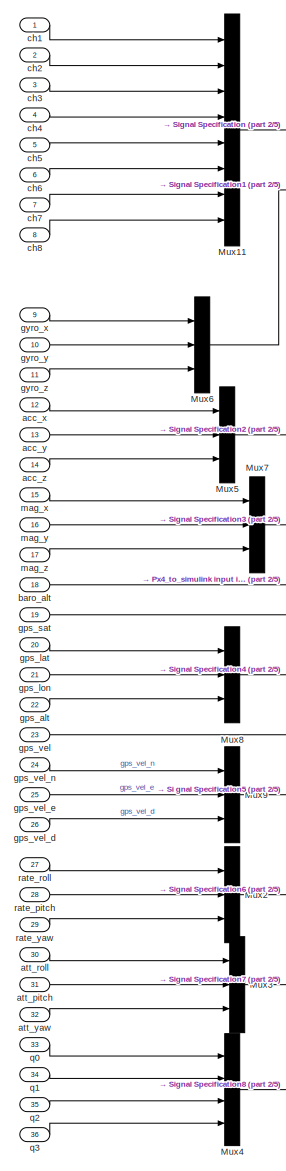
[diagram: root canvas - part 1/5, left side, full height]
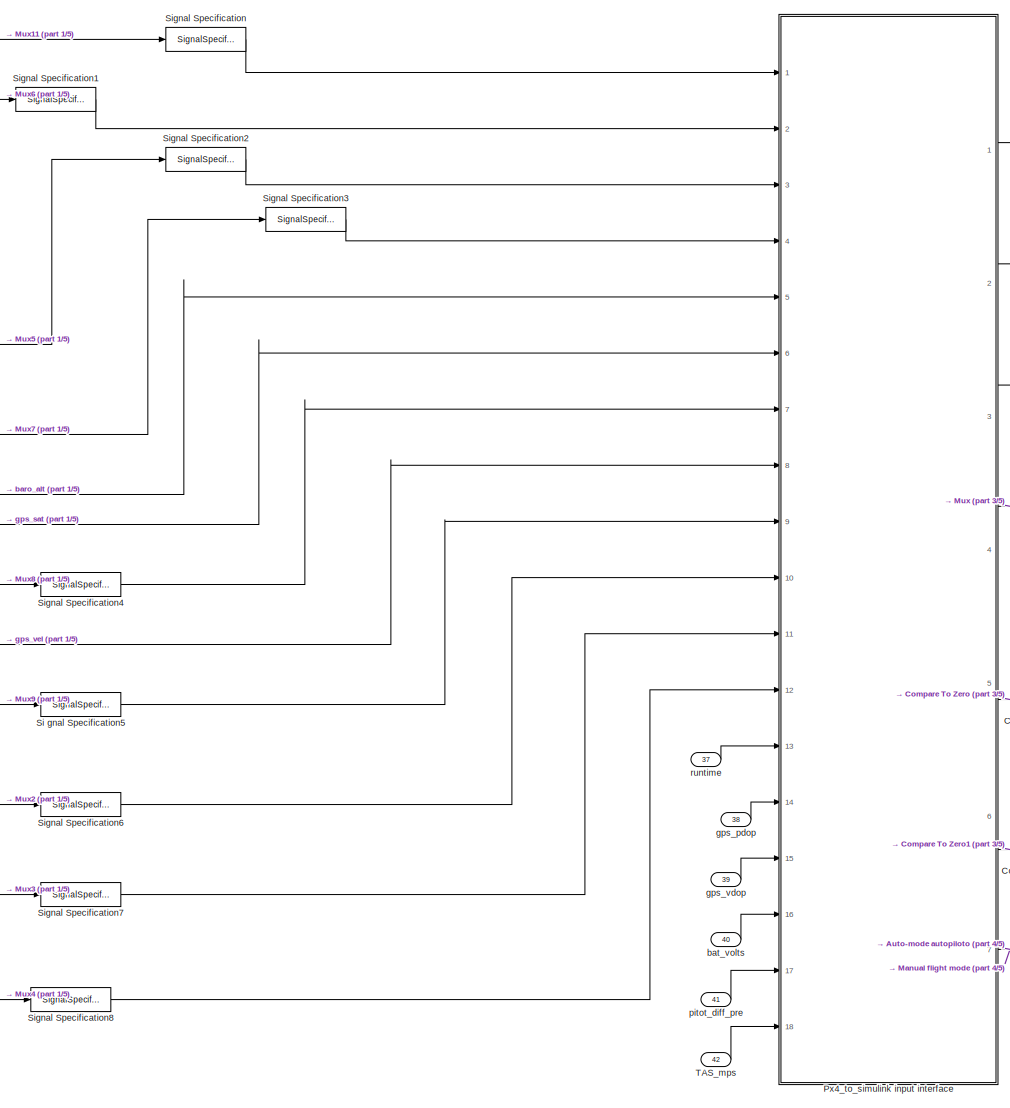
[diagram: root canvas - part 2/5, left side, full height]
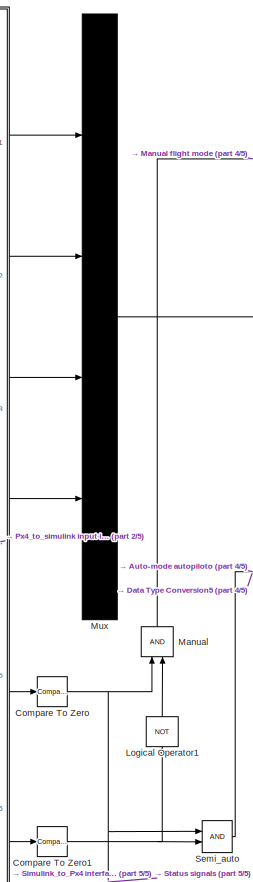
[diagram: root canvas - part 3/5, central region]
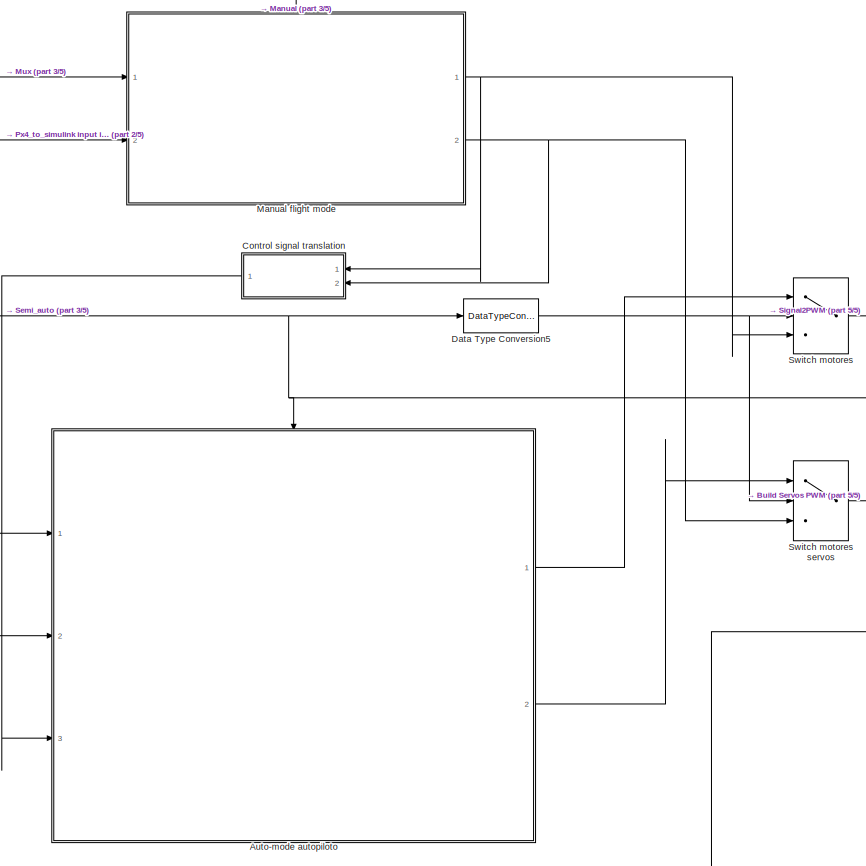
[diagram: root canvas - part 4/5, central region]
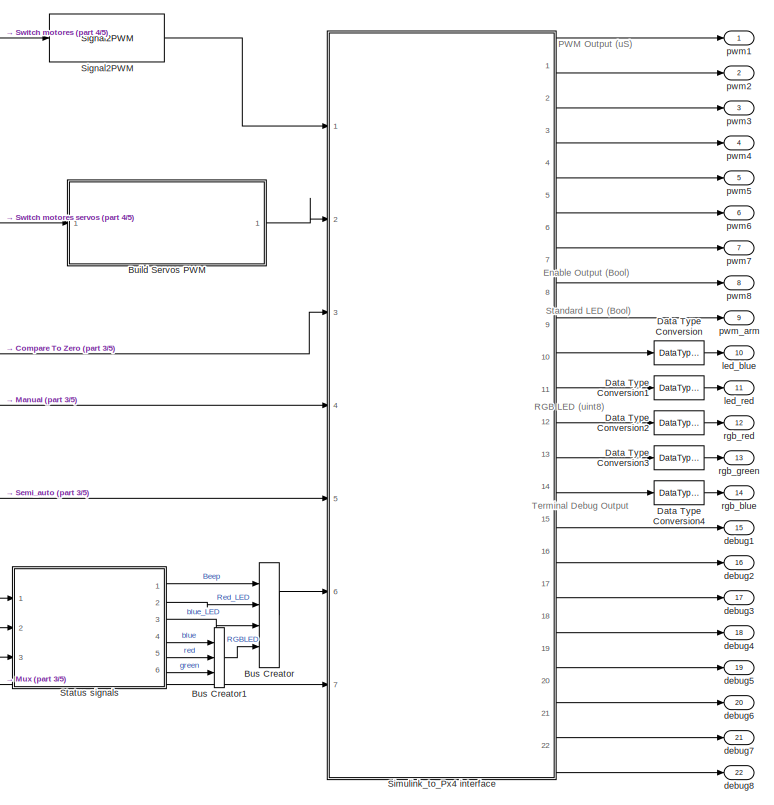
[diagram: root canvas - part 5/5, bottom right region]
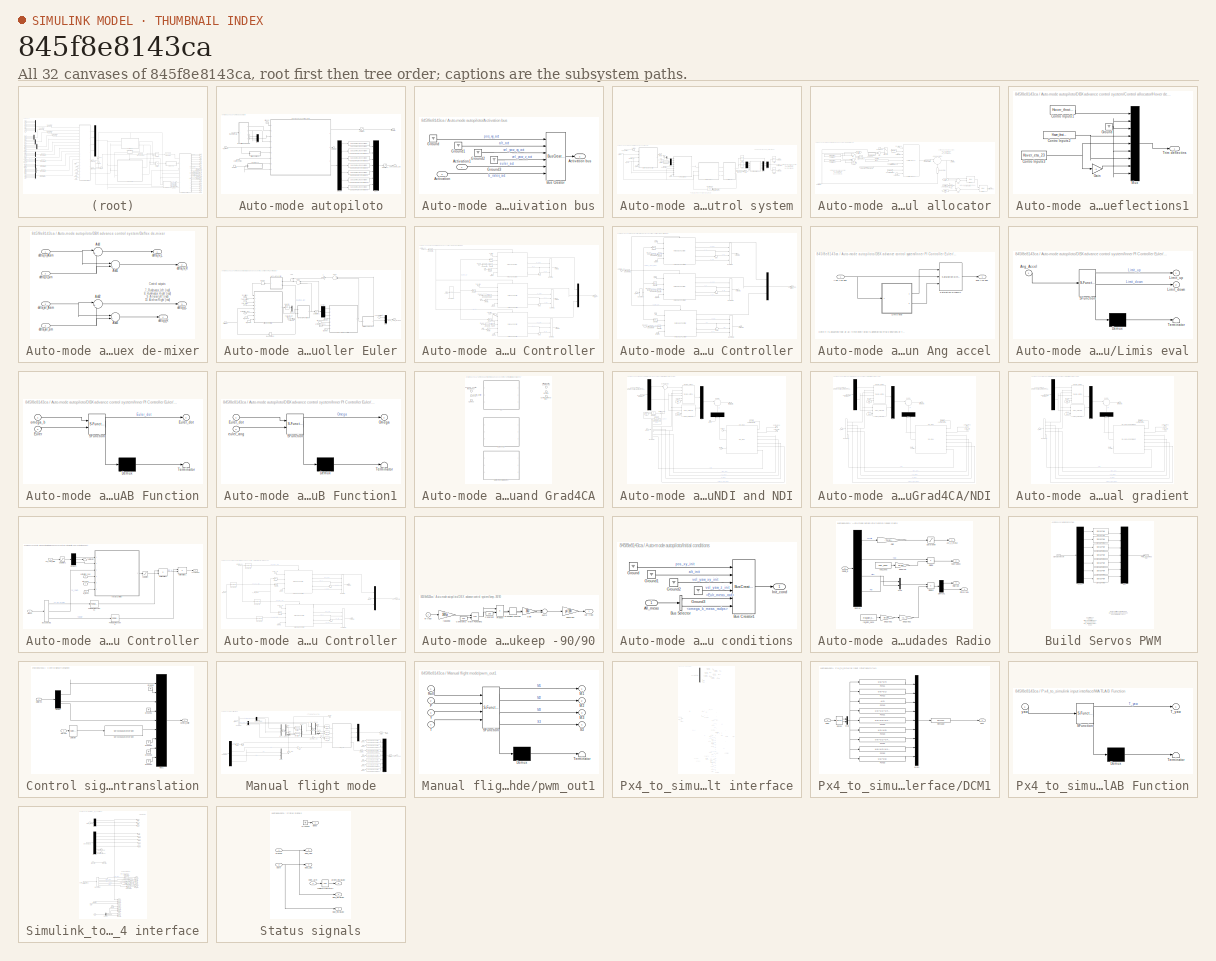
[diagram: thumbnail index - all 32 canvases of the model, root first then tree order]
MODEL slx_845f8e8143ca
KIND model
CONFIG AbsTol = auto
CONFIG FixedStep = T_ctrl
CONFIG MaxStep = auto
CONFIG MinStep = auto
CONFIG RelTol = 1e-3
CONFIG SampleTimeConstraint = Unconstrained
CONFIG Solver = FixedStepDiscrete
CONFIG SolverMode = SingleTasking
CONFIG SolverName = FixedStepDiscrete
CONFIG StartTime = 0.0
CONFIG StopTime = 20
BLOCK [SubSystem] Auto-mode autopiloto
  Ports = [3, 2, 1]
  RequestExecContextInheritance = off
  TreatAsAtomicUnit = on
BLOCK [SubSystem] Auto-mode autopiloto/Activation bus
  Ports = [2, 1]
  RequestExecContextInheritance = off
  TreatAsAtomicUnit = on
BLOCK [Inport] Auto-mode autopiloto/Activation bus/Activation
  IconDisplay = Port number
  Port = 2
BLOCK [Outport] Auto-mode autopiloto/Activation bus/Activation bus
  IconDisplay = Port number
BLOCK [Inport] Auto-mode autopiloto/Activation bus/Activation1
  IconDisplay = Port number
BLOCK [BusCreator] Auto-mode autopiloto/Activation bus/Bus Creator
  DisplayOption = bar
  Inputs = 6
  Ports = [6, 1]
BLOCK [Ground] Auto-mode autopiloto/Activation bus/Ground
BLOCK [Ground] Auto-mode autopiloto/Activation bus/Ground1
BLOCK [Ground] Auto-mode autopiloto/Activation bus/Ground2
BLOCK [Ground] Auto-mode autopiloto/Activation bus/Ground3
BLOCK [Inport] Auto-mode autopiloto/All_meas
  IconDisplay = Port number
  Port = 2
BLOCK [Inport] Auto-mode autopiloto/Current_deflex
  IconDisplay = Port number
  Port = 3
BLOCK [SubSystem] Auto-mode autopiloto/DBX advance control system
  Ports = [9, 3]
  RequestExecContextInheritance = off
BLOCK [Inport] Auto-mode autopiloto/DBX advance control system/Acc_z(mps2)
  IconDisplay = Port number
  Port = 2
BLOCK [Inport] Auto-mode autopiloto/DBX advance control system/All_meas
  IconDisplay = Port number
  Port = 5
BLOCK [Inport] Auto-mode autopiloto/DBX advance control system/Att_ref(rad)
  IconDisplay = Port number
  Port = 3
BLOCK [SubSystem] Auto-mode autopiloto/DBX advance control system/Control allocator
  MinAlgLoopOccurrences = on
  Ports = [3, 2]
  RTWFcnName = abc
  RTWFcnNameOpts = User specified
  RTWFileName = asas
  RTWFileNameOpts = User specified
  RequestExecContextInheritance = off
  VariantControl = Control Allocator: NO RECONFIG
BLOCK [Sum] Auto-mode autopiloto/DBX advance control system/Control allocator/Add previous delfections
  IconShape = round
  InputSameDT = off
  Inputs = |++
  OutDataTypeStr = Inherit: Inherit via internal rule
  Ports = [2, 1]
  SaturateOnIntegerOverflow = off
BLOCK [Sum] Auto-mode autopiloto/DBX advance control system/Control allocator/Add2
  InputSameDT = off
  OutDataTypeStr = Inherit: Inherit via internal rule
  Ports = [2, 1]
  SaturateOnIntegerOverflow = off
BLOCK [Sum] Auto-mode autopiloto/DBX advance control system/Control allocator/Add3
  InputSameDT = off
  Inputs = +-
  OutDataTypeStr = Inherit: Inherit via internal rule
  Ports = [2, 1]
  SaturateOnIntegerOverflow = off
BLOCK [Inport] Auto-mode autopiloto/DBX advance control system/Control allocator/B matrix Online
  IconDisplay = Port number
  Port = 2
BLOCK [Reference] Auto-mode autopiloto/DBX advance control system/Control allocator/Control allocator 4 coder  REF=DBX_Control_lib/Control allocator 4 coder
  Ports = [9, 1]
  SourceBlock = DBX_Control_lib/Control allocator 4 coder
  SourceType = Control allocator WLS
  T = T_ctrl
  gamma = 1
  imax = 20
BLOCK [Inport] Auto-mode autopiloto/DBX advance control system/Control allocator/Control defl prev
  IconDisplay = Port number
  Port = 3
BLOCK [Constant] Auto-mode autopiloto/DBX advance control system/Control allocator/Control positions deviation Weight W1
  Value = diag(1./[1,1,1,1,1,1,1,1,1] )
BLOCK [Outport] Auto-mode autopiloto/DBX advance control system/Control allocator/Control_Commands
  IconDisplay = Port number
BLOCK [Outport] Auto-mode autopiloto/DBX advance control system/Control allocator/Control_def for eval
  IconDisplay = Port number
  Port = 2
BLOCK [Constant] Auto-mode autopiloto/DBX advance control system/Control allocator/Enalbe//Disable
BLOCK [Constant] Auto-mode autopiloto/DBX advance control system/Control allocator/Enalbe//Disable1
  Commented = on
BLOCK [Constant] Auto-mode autopiloto/DBX advance control system/Control allocator/Error Weight Wv1
  Value = blkdiag(0,0,1, 10,10,10)
BLOCK [Inport] Auto-mode autopiloto/DBX advance control system/Control allocator/Forc_Mom_des
  IconDisplay = Port number
BLOCK [From] Auto-mode autopiloto/DBX advance control system/Control allocator/From
  GotoTag = Inf_limit
BLOCK [From] Auto-mode autopiloto/DBX advance control system/Control allocator/From1
  GotoTag = Sup_limit
BLOCK [Gain] Auto-mode autopiloto/DBX advance control system/Control allocator/Gain1
  Gain = ones(9,1)
  OutDataTypeStr = Inherit: Inherit via internal rule
  ParamDataTypeStr = Inherit: Inherit via internal rule
  SaturateOnIntegerOverflow = off
BLOCK [Goto] Auto-mode autopiloto/DBX advance control system/Control allocator/Goto
  GotoTag = Sup_limit
BLOCK [Goto] Auto-mode autopiloto/DBX advance control system/Control allocator/Goto1
  GotoTag = Inf_limit
BLOCK [SubSystem] Auto-mode autopiloto/DBX advance control system/Control allocator/Hover deflections1
  Commented = on
  Ports = [0, 1]
  RequestExecContextInheritance = off
  TreatAsAtomicUnit = on
BLOCK [Constant] Auto-mode autopiloto/DBX advance control system/Control allocator/Hover deflections1/Contro Inputs1
  Value = Hover_throtle_1
BLOCK [Constant] Auto-mode autopiloto/DBX advance control system/Control allocator/Hover deflections1/Contro Inputs2
  Value = Hover_throtle_23
BLOCK [Constant] Auto-mode autopiloto/DBX advance control system/Control allocator/Hover deflections1/Contro Inputs3
  Value = Hover_eta_23
BLOCK [Gain] Auto-mode autopiloto/DBX advance control system/Control allocator/Hover deflections1/Gain
  Gain = -1
  OutDataTypeStr = Inherit: Inherit via internal rule
  ParamDataTypeStr = Inherit: Inherit via internal rule
  SaturateOnIntegerOverflow = off
BLOCK [Ground] Auto-mode autopiloto/DBX advance control system/Control allocator/Hover deflections1/Ground
BLOCK [Mux] Auto-mode autopiloto/DBX advance control system/Control allocator/Hover deflections1/Mux
  DisplayOption = bar
  Inputs = 9
  Ports = [9, 1]
BLOCK [Outport] Auto-mode autopiloto/DBX advance control system/Control allocator/Hover deflections1/Trim deflectins
  IconDisplay = Port number
BLOCK [Sum] Auto-mode autopiloto/DBX advance control system/Control allocator/Inf lim
  InputSameDT = off
  Inputs = -+
  OutDataTypeStr = Inherit: Inherit via internal rule
  Ports = [2, 1]
  SaturateOnIntegerOverflow = off
BLOCK [Sum] Auto-mode autopiloto/DBX advance control system/Control allocator/Inf lim2
  Commented = on
  InputSameDT = off
  Inputs = -+
  OutDataTypeStr = Inherit: Inherit via internal rule
  Ports = [2, 1]
  SaturateOnIntegerOverflow = off
BLOCK [Concatenate] Auto-mode autopiloto/DBX advance control system/Control allocator/Matrix Concatenate
  ConcatenateDimension = 2
  Mode = Multidimensional array
  Ports = [2, 1]
BLOCK [MinMax] Auto-mode autopiloto/DBX advance control system/Control allocator/MinMax
  Function = max
  InputSameDT = off
  Inputs = 2
  Ports = [2, 1]
  SaturateOnIntegerOverflow = off
BLOCK [MinMax] Auto-mode autopiloto/DBX advance control system/Control allocator/MinMax1
  InputSameDT = off
  Inputs = 2
  Ports = [2, 1]
  SaturateOnIntegerOverflow = off
BLOCK [MultiPortSwitch] Auto-mode autopiloto/DBX advance control system/Control allocator/Multiport Switch
  Commented = on
  InputSameDT = off
  Inputs = 2
  Ports = [3, 1]
  SaturateOnIntegerOverflow = off
BLOCK [Constant] Auto-mode autopiloto/DBX advance control system/Control allocator/Position limits sup
  Value = [1,deg2rad(15),1,deg2rad(15),1,deg2rad(20),deg2rad(25),deg2rad(25),deg2rad(25)]'
BLOCK [Constant] Auto-mode autopiloto/DBX advance control system/Control allocator/Position limitsv inf
  Value = [0,-deg2rad(90),0,-deg2rad(90),0,-deg2rad(20),-deg2rad(25),-deg2rad(25),-deg2rad(25)]'
BLOCK [Constant] Auto-mode autopiloto/DBX advance control system/Control allocator/Rates limits
  Value = [ [-17,-1,-17,-1,-17,-1,-1,-1,-1]', [17,1,17,1,17,1,1,1,1]']*5
BLOCK [SignalSpecification] Auto-mode autopiloto/DBX advance control system/Control allocator/Signal Specification
  Dimensions = [9,1]
BLOCK [SignalSpecification] Auto-mode autopiloto/DBX advance control system/Control allocator/Signal Specification1
  Dimensions = [9,1]
BLOCK [Sum] Auto-mode autopiloto/DBX advance control system/Control allocator/Sup lim
  InputSameDT = off
  Inputs = -+
  OutDataTypeStr = Inherit: Inherit via internal rule
  Ports = [2, 1]
  SaturateOnIntegerOverflow = off
BLOCK [Constant] Auto-mode autopiloto/DBX advance control system/Control allocator/manual Initial saturations
  Value = zeros(9,1)
BLOCK [Constant] Auto-mode autopiloto/DBX advance control system/Control allocator/u des
  Value = zeros(9,1)
BLOCK [Constant] Auto-mode autopiloto/DBX advance control system/Control allocator/used epsilon (deg)
  Value = epsilon
BLOCK [Outport] Auto-mode autopiloto/DBX advance control system/Control_signals
  IconDisplay = Port number
  Port = 2
BLOCK [SubSystem] Auto-mode autopiloto/DBX advance control system/Deflex de-mixer
  Ports = [4, 4]
  RequestExecContextInheritance = off
  TreatAsAtomicUnit = on
BLOCK [Sum] Auto-mode autopiloto/DBX advance control system/Deflex de-mixer/Add
  IconShape = round
  InputSameDT = off
  Inputs = |++
  OutDataTypeStr = Inherit: Inherit via internal rule
  Ports = [2, 1]
  SaturateOnIntegerOverflow = off
BLOCK [Sum] Auto-mode autopiloto/DBX advance control system/Deflex de-mixer/Add1
  IconShape = round
  InputSameDT = off
  Inputs = |-+
  OutDataTypeStr = Inherit: Inherit via internal rule
  Ports = [2, 1]
  SaturateOnIntegerOverflow = off
BLOCK [Sum] Auto-mode autopiloto/DBX advance control system/Deflex de-mixer/Add2
  IconShape = round
  InputSameDT = off
  Inputs = |++
  OutDataTypeStr = Inherit: Inherit via internal rule
  Ports = [2, 1]
  SaturateOnIntegerOverflow = off
BLOCK [Sum] Auto-mode autopiloto/DBX advance control system/Deflex de-mixer/Add3
  IconShape = round
  InputSameDT = off
  Inputs = |-+
  OutDataTypeStr = Inherit: Inherit via internal rule
  Ports = [2, 1]
  SaturateOnIntegerOverflow = off
BLOCK [Outport] Auto-mode autopiloto/DBX advance control system/Deflex de-mixer/delta_a_L
  IconDisplay = Port number
  Port = 3
BLOCK [Outport] Auto-mode autopiloto/DBX advance control system/Deflex de-mixer/delta_a_R
  IconDisplay = Port number
  Port = 4
BLOCK [Inport] Auto-mode autopiloto/DBX advance control system/Deflex de-mixer/delta_ail_Asim
  IconDisplay = Port number
  Port = 3
BLOCK [Inport] Auto-mode autopiloto/DBX advance control system/Deflex de-mixer/delta_ail_sim
  IconDisplay = Port number
  Port = 4
BLOCK [Inport] Auto-mode autopiloto/DBX advance control system/Deflex de-mixer/delta_rv_Asim
  IconDisplay = Port number
BLOCK [Outport] Auto-mode autopiloto/DBX advance control system/Deflex de-mixer/delta_rv_L
  IconDisplay = Port number
BLOCK [Outport] Auto-mode autopiloto/DBX advance control system/Deflex de-mixer/delta_rv_R
  IconDisplay = Port number
  Port = 2
BLOCK [Inport] Auto-mode autopiloto/DBX advance control system/Deflex de-mixer/delta_rv_sim
  IconDisplay = Port number
  Port = 2
BLOCK [Demux] Auto-mode autopiloto/DBX advance control system/Demux
  DisplayOption = bar
  Outputs = 3
  Ports = [1, 3]
BLOCK [Demux] Auto-mode autopiloto/DBX advance control system/Demux1
  DisplayOption = bar
  Outputs = 3
  Ports = [1, 3]
BLOCK [Gain] Auto-mode autopiloto/DBX advance control system/Gain
  Gain = pi/180
  OutDataTypeStr = Inherit: Inherit via internal rule
  ParamDataTypeStr = Inherit: Inherit via internal rule
  SaturateOnIntegerOverflow = off
BLOCK [Ground] Auto-mode autopiloto/DBX advance control system/Ground
BLOCK [Inport] Auto-mode autopiloto/DBX advance control system/Init_cond
  IconDisplay = Port number
  Port = 6
BLOCK [Inport] Auto-mode autopiloto/DBX advance control system/Init_deflect
  IconDisplay = Port number
  Port = 7
  PortDimensions = [9,1]
BLOCK [SubSystem] Auto-mode autopiloto/DBX advance control system/Inner PI Controller Euler
  Ports = [9, 1]
  RequestExecContextInheritance = off
  VariantControl = PI_quat
BLOCK [Inport] Auto-mode autopiloto/DBX advance control system/Inner PI Controller Euler/Accels ref (m//s^2)
  IconDisplay = Port number
BLOCK [Outport] Auto-mode autopiloto/DBX advance control system/Inner PI Controller Euler/Accs_Ang_acc des
  IconDisplay = Port number
BLOCK [Sum] Auto-mode autopiloto/DBX advance control system/Inner PI Controller Euler/Add
  InputSameDT = off
  OutDataTypeStr = Inherit: Inherit via internal rule
  Ports = [2, 1]
  SaturateOnIntegerOverflow = off
BLOCK [Sum] Auto-mode autopiloto/DBX advance control system/Inner PI Controller Euler/Add1
  InputSameDT = off
  Inputs = +-
  OutDataTypeStr = Inherit: Inherit via internal rule
  Ports = [2, 1]
  SaturateOnIntegerOverflow = off
BLOCK [Sum] Auto-mode autopiloto/DBX advance control system/Inner PI Controller Euler/Add2
  InputSameDT = off
  Inputs = +-
  OutDataTypeStr = Inherit: Inherit via internal rule
  Ports = [2, 1]
  SaturateOnIntegerOverflow = off
BLOCK [Inport] Auto-mode autopiloto/DBX advance control system/Inner PI Controller Euler/All meas
  IconDisplay = Port number
  Port = 6
BLOCK [InportShadow] Auto-mode autopiloto/DBX advance control system/Inner PI Controller Euler/All meas1
  IconDisplay = Port number
  Port = 6
BLOCK [SubSystem] Auto-mode autopiloto/DBX advance control system/Inner PI Controller Euler/Attitude Controller
  Ports = [8, 1]
  RequestExecContextInheritance = off
BLOCK [Inport] Auto-mode autopiloto/DBX advance control system/Inner PI Controller Euler/Attitude Controller/AWU
  IconDisplay = Port number
BLOCK [InportShadow] Auto-mode autopiloto/DBX advance control system/Inner PI Controller Euler/Attitude Controller/AWU1
  IconDisplay = Port number
BLOCK [InportShadow] Auto-mode autopiloto/DBX advance control system/Inner PI Controller Euler/Attitude Controller/AWU2
  IconDisplay = Port number
BLOCK [Sum] Auto-mode autopiloto/DBX advance control system/Inner PI Controller Euler/Attitude Controller/Add
  InputSameDT = off
  OutDataTypeStr = Inherit: Inherit via internal rule
  Ports = [2, 1]
  SaturateOnIntegerOverflow = off
BLOCK [Inport] Auto-mode autopiloto/DBX advance control system/Inner PI Controller Euler/Attitude Controller/All_meas
  IconDisplay = Port number
  Port = 5
BLOCK [BusCreator] Auto-mode autopiloto/DBX advance control system/Inner PI Controller Euler/Attitude Controller/Bus Creator
  DisplayOption = bar
  Inputs = 3
  Ports = [3, 1]
BLOCK [BusCreator] Auto-mode autopiloto/DBX advance control system/Inner PI Controller Euler/Attitude Controller/Bus Creator1
  DisplayOption = bar
  Inputs = 3
  Ports = [3, 1]
BLOCK [BusCreator] Auto-mode autopiloto/DBX advance control system/Inner PI Controller Euler/Attitude Controller/Bus Creator2
  DisplayOption = bar
  Inputs = 3
  Ports = [3, 1]
BLOCK [BusSelector] Auto-mode autopiloto/DBX advance control system/Inner PI Controller Euler/Attitude Controller/Bus Selector
  OutputSignals = Meas.Eulr_meas_rad
  Ports = [1, 1]
BLOCK [BusSelector] Auto-mode autopiloto/DBX advance control system/Inner PI Controller Euler/Attitude Controller/Bus Selector1
  OutputSignals = euler_act
  Ports = [1, 1]
BLOCK [BusSelector] Auto-mode autopiloto/DBX advance control system/Inner PI Controller Euler/Attitude Controller/Bus Selector2
  OutputSignals = alt_init
  Ports = [1, 1]
BLOCK [BusSelector] Auto-mode autopiloto/DBX advance control system/Inner PI Controller Euler/Attitude Controller/Bus Selector3
  OutputSignals = alt_init
  Ports = [1, 1]
BLOCK [BusSelector] Auto-mode autopiloto/DBX advance control system/Inner PI Controller Euler/Attitude Controller/Bus Selector4
  OutputSignals = alt_init
  Ports = [1, 1]
BLOCK [Inport] Auto-mode autopiloto/DBX advance control system/Inner PI Controller Euler/Attitude Controller/Int_reset
  IconDisplay = Port number
  Port = 8
BLOCK [InportShadow] Auto-mode autopiloto/DBX advance control system/Inner PI Controller Euler/Attitude Controller/Int_reset1
  IconDisplay = Port number
  Port = 8
BLOCK [InportShadow] Auto-mode autopiloto/DBX advance control system/Inner PI Controller Euler/Attitude Controller/Int_reset2
  IconDisplay = Port number
  Port = 8
BLOCK [Mux] Auto-mode autopiloto/DBX advance control system/Inner PI Controller Euler/Attitude Controller/Mux
  DisplayOption = bar
  Inputs = 3
  Ports = [3, 1]
BLOCK [Inport] Auto-mode autopiloto/DBX advance control system/Inner PI Controller Euler/Attitude Controller/Phi_ref (rad)
  IconDisplay = Port number
  Port = 2
BLOCK [Reference] Auto-mode autopiloto/DBX advance control system/Inner PI Controller Euler/Attitude Controller/Ref Model and PI Controller  REF=DBX_Control_lib/Ref Model and PI Controller
  Con_way = pro
  FallingSlewLimit = -deg2rad(20)
  K_a = 1
  K_b = psi_K_b
  K_f = 0
  Ports = [5, 4, 1]
  RisingSlewLimit = deg2rad(20)
  SourceBlock = DBX_Control_lib/Ref Model and PI Controller
  SourceType = Reference Model and Controller
  Z1 = -30
  delta = 0
  f_c = 1
  f_i = psi_f_i
  omega_n = 4
  tau = psi_tau
  xi = 0.5
BLOCK [Reference] Auto-mode autopiloto/DBX advance control system/Inner PI Controller Euler/Attitude Controller/Ref Model and PI Controller1  REF=DBX_Control_lib/Ref Model and PI Controller
  Con_way = pro
  FallingSlewLimit = -deg2rad(20)
  K_a = 1
  K_b = theta_K_b
  K_f = 0
  Ports = [5, 4, 1]
  RisingSlewLimit = deg2rad(20)
  SourceBlock = DBX_Control_lib/Ref Model and PI Controller
  SourceType = Reference Model and Controller
  Z1 = -30
  delta = 0
  f_c = 1
  f_i = theta_f_i
  omega_n = 4
  tau = theta_tau
  xi = 0.5
BLOCK [Reference] Auto-mode autopiloto/DBX advance control system/Inner PI Controller Euler/Attitude Controller/Ref Model and PI Controller2  REF=DBX_Control_lib/Ref Model and PI Controller
  Con_way = pro
  FallingSlewLimit = -deg2rad(20)
  K_a = 1
  K_b = phi_K_b
  K_f = 0
  Ports = [5, 4, 1]
  RisingSlewLimit = deg2rad(20)
  SourceBlock = DBX_Control_lib/Ref Model and PI Controller
  SourceType = Reference Model and Controller
  Z1 = -30
  delta = 0
  f_c = 1
  f_i = phi_f_i
  omega_n = 4
  tau = phi_tau
  xi = 0.5
BLOCK [Selector] Auto-mode autopiloto/DBX advance control system/Inner PI Controller Euler/Attitude Controller/Selector
  InputPortWidth = 3
  Ports = [1, 1]
BLOCK [Selector] Auto-mode autopiloto/DBX advance control system/Inner PI Controller Euler/Attitude Controller/Selector1
  InputPortWidth = 3
  Ports = [1, 1]
BLOCK [Selector] Auto-mode autopiloto/DBX advance control system/Inner PI Controller Euler/Attitude Controller/Selector2
  Indices = 3
  InputPortWidth = 3
  Ports = [1, 1]
BLOCK [Selector] Auto-mode autopiloto/DBX advance control system/Inner PI Controller Euler/Attitude Controller/Selector3
  Indices = 2
  InputPortWidth = 3
  Ports = [1, 1]
BLOCK [Selector] Auto-mode autopiloto/DBX advance control system/Inner PI Controller Euler/Attitude Controller/Selector4
  Indices = 3
  InputPortWidth = 3
  Ports = [1, 1]
BLOCK [Selector] Auto-mode autopiloto/DBX advance control system/Inner PI Controller Euler/Attitude Controller/Selector5
  InputPortWidth = 3
  Ports = [1, 1]
BLOCK [Selector] Auto-mode autopiloto/DBX advance control system/Inner PI Controller Euler/Attitude Controller/Selector6
  Indices = 2
  InputPortWidth = 3
  Ports = [1, 1]
BLOCK [Selector] Auto-mode autopiloto/DBX advance control system/Inner PI Controller Euler/Attitude Controller/Selector7
  Indices = 3
  InputPortWidth = 3
  Ports = [1, 1]
BLOCK [Selector] Auto-mode autopiloto/DBX advance control system/Inner PI Controller Euler/Attitude Controller/Selector8
  Indices = 2
  InputPortWidth = 3
  Ports = [1, 1]
BLOCK [Sum] Auto-mode autopiloto/DBX advance control system/Inner PI Controller Euler/Attitude Controller/Sum
  IconShape = round
  InputSameDT = off
  Inputs = +-|
  OutDataTypeStr = Inherit: Inherit via internal rule
  Ports = [2, 1]
  SaturateOnIntegerOverflow = off
BLOCK [Sum] Auto-mode autopiloto/DBX advance control system/Inner PI Controller Euler/Attitude Controller/Sum1
  IconShape = round
  InputSameDT = off
  Inputs = +-|
  OutDataTypeStr = Inherit: Inherit via internal rule
  Ports = [2, 1]
  SaturateOnIntegerOverflow = off
BLOCK [Sum] Auto-mode autopiloto/DBX advance control system/Inner PI Controller Euler/Attitude Controller/Sum2
  IconShape = round
  InputSameDT = off
  Inputs = +-|
  OutDataTypeStr = Inherit: Inherit via internal rule
  Ports = [2, 1]
  SaturateOnIntegerOverflow = off
BLOCK [Terminator] Auto-mode autopiloto/DBX advance control system/Inner PI Controller Euler/Attitude Controller/Terminator1
BLOCK [Terminator] Auto-mode autopiloto/DBX advance control system/Inner PI Controller Euler/Attitude Controller/Terminator2
BLOCK [Terminator] Auto-mode autopiloto/DBX advance control system/Inner PI Controller Euler/Attitude Controller/Terminator3
BLOCK [Inport] Auto-mode autopiloto/DBX advance control system/Inner PI Controller Euler/Attitude Controller/Theta_ref (rad)
  IconDisplay = Port number
  Port = 3
BLOCK [Inport] Auto-mode autopiloto/DBX advance control system/Inner PI Controller Euler/Attitude Controller/Yaw_ref (rad)
  IconDisplay = Port number
  Port = 4
BLOCK [Inport] Auto-mode autopiloto/DBX advance control system/Inner PI Controller Euler/Attitude Controller/activation_bus
  IconDisplay = Port number
  Port = 6
BLOCK [Outport] Auto-mode autopiloto/DBX advance control system/Inner PI Controller Euler/Attitude Controller/euler_dot des (rad//s)
  IconDisplay = Port number
BLOCK [Inport] Auto-mode autopiloto/DBX advance control system/Inner PI Controller Euler/Attitude Controller/init_cond
  IconDisplay = Port number
  Port = 7
BLOCK [InportShadow] Auto-mode autopiloto/DBX advance control system/Inner PI Controller Euler/Attitude Controller/init_cond1
  IconDisplay = Port number
  Port = 7
BLOCK [InportShadow] Auto-mode autopiloto/DBX advance control system/Inner PI Controller Euler/Attitude Controller/init_cond2
  IconDisplay = Port number
  Port = 7
BLOCK [SubSystem] Auto-mode autopiloto/DBX advance control system/Inner PI Controller Euler/Body Rates Controller
  Ports = [7, 1]
  RequestExecContextInheritance = off
BLOCK [Inport] Auto-mode autopiloto/DBX advance control system/Inner PI Controller Euler/Body Rates Controller/All_meas
  IconDisplay = Port number
  Port = 4
BLOCK [Outport] Auto-mode autopiloto/DBX advance control system/Inner PI Controller Euler/Body Rates Controller/Angular acc des (rad//s^2)
  IconDisplay = Port number
BLOCK [BusCreator] Auto-mode autopiloto/DBX advance control system/Inner PI Controller Euler/Body Rates Controller/Bus Creator
  DisplayOption = bar
  Ports = [4, 1]
BLOCK [BusCreator] Auto-mode autopiloto/DBX advance control system/Inner PI Controller Euler/Body Rates Controller/Bus Creator1
  DisplayOption = bar
  Ports = [4, 1]
BLOCK [BusCreator] Auto-mode autopiloto/DBX advance control system/Inner PI Controller Euler/Body Rates Controller/Bus Creator2
  DisplayOption = bar
  Ports = [4, 1]
BLOCK [BusSelector] Auto-mode autopiloto/DBX advance control system/Inner PI Controller Euler/Body Rates Controller/Bus Selector
  OutputSignals = Meas.omega_b_meas_radps
  Ports = [1, 1]
BLOCK [BusSelector] Auto-mode autopiloto/DBX advance control system/Inner PI Controller Euler/Body Rates Controller/Bus Selector1
  OutputSignals = b_rates_act
  Ports = [1, 1]
BLOCK [BusSelector] Auto-mode autopiloto/DBX advance control system/Inner PI Controller Euler/Body Rates Controller/Bus Selector2
  OutputSignals = omega_b_meas_radps
  Ports = [1, 1]
BLOCK [BusSelector] Auto-mode autopiloto/DBX advance control system/Inner PI Controller Euler/Body Rates Controller/Bus Selector3
  OutputSignals = omega_b_meas_radps
  Ports = [1, 1]
BLOCK [BusSelector] Auto-mode autopiloto/DBX advance control system/Inner PI Controller Euler/Body Rates Controller/Bus Selector4
  OutputSignals = omega_b_meas_radps
  Ports = [1, 1]
BLOCK [Inport] Auto-mode autopiloto/DBX advance control system/Inner PI Controller Euler/Body Rates Controller/Int_reset
  IconDisplay = Port number
  Port = 7
BLOCK [InportShadow] Auto-mode autopiloto/DBX advance control system/Inner PI Controller Euler/Body Rates Controller/Int_reset1
  IconDisplay = Port number
  Port = 7
BLOCK [InportShadow] Auto-mode autopiloto/DBX advance control system/Inner PI Controller Euler/Body Rates Controller/Int_reset2
  IconDisplay = Port number
  Port = 7
BLOCK [Mux] Auto-mode autopiloto/DBX advance control system/Inner PI Controller Euler/Body Rates Controller/Mux
  DisplayOption = bar
  Inputs = 3
  Ports = [3, 1]
BLOCK [Reference] Auto-mode autopiloto/DBX advance control system/Inner PI Controller Euler/Body Rates Controller/Ref Model and P Controller p  REF=DBX_Control_lib/Ref Model and P Controller
  FallingSlewLimit = -4
  K_b = p_K_b
  K_f = 0.5
  Ports = [4, 5, 1]
  RisingSlewLimit = 4
  SourceBlock = DBX_Control_lib/Ref Model and P Controller
  SourceType = Reference Model and Controller
  tau = p_tau
BLOCK [Reference] Auto-mode autopiloto/DBX advance control system/Inner PI Controller Euler/Body Rates Controller/Ref Model and P Controller q  REF=DBX_Control_lib/Ref Model and P Controller
  FallingSlewLimit = -4
  K_b = q_K_b
  K_f = 0.5
  Ports = [4, 5, 1]
  RisingSlewLimit = 4
  SourceBlock = DBX_Control_lib/Ref Model and P Controller
  SourceType = Reference Model and Controller
  tau = q_tau
BLOCK [Reference] Auto-mode autopiloto/DBX advance control system/Inner PI Controller Euler/Body Rates Controller/Ref Model and P Controller r  REF=DBX_Control_lib/Ref Model and P Controller
  FallingSlewLimit = -4
  K_b = r_K_b
  K_f = 0.1
  Ports = [4, 5, 1]
  RisingSlewLimit = 4
  SourceBlock = DBX_Control_lib/Ref Model and P Controller
  SourceType = Reference Model and Controller
  tau = r_tau
BLOCK [Selector] Auto-mode autopiloto/DBX advance control system/Inner PI Controller Euler/Body Rates Controller/Selector
  InputPortWidth = 3
  Ports = [1, 1]
BLOCK [Selector] Auto-mode autopiloto/DBX advance control system/Inner PI Controller Euler/Body Rates Controller/Selector1
  Indices = 2
  InputPortWidth = 3
  Ports = [1, 1]
BLOCK [Selector] Auto-mode autopiloto/DBX advance control system/Inner PI Controller Euler/Body Rates Controller/Selector2
  Indices = 3
  InputPortWidth = 3
  Ports = [1, 1]
BLOCK [Selector] Auto-mode autopiloto/DBX advance control system/Inner PI Controller Euler/Body Rates Controller/Selector3
  InputPortWidth = 3
  Ports = [1, 1]
BLOCK [Selector] Auto-mode autopiloto/DBX advance control system/Inner PI Controller Euler/Body Rates Controller/Selector4
  Indices = 2
  InputPortWidth = 3
  Ports = [1, 1]
BLOCK [Selector] Auto-mode autopiloto/DBX advance control system/Inner PI Controller Euler/Body Rates Controller/Selector5
  Indices = [3]
  InputPortWidth = 3
  Ports = [1, 1]
BLOCK [Sum] Auto-mode autopiloto/DBX advance control system/Inner PI Controller Euler/Body Rates Controller/Sum
  IconShape = round
  InputSameDT = off
  Inputs = +-|
  OutDataTypeStr = Inherit: Inherit via internal rule
  Ports = [2, 1]
  SaturateOnIntegerOverflow = off
BLOCK [Sum] Auto-mode autopiloto/DBX advance control system/Inner PI Controller Euler/Body Rates Controller/Sum1
  IconShape = round
  InputSameDT = off
  Inputs = +-|
  OutDataTypeStr = Inherit: Inherit via internal rule
  Ports = [2, 1]
  SaturateOnIntegerOverflow = off
BLOCK [Sum] Auto-mode autopiloto/DBX advance control system/Inner PI Controller Euler/Body Rates Controller/Sum2
  IconShape = round
  InputSameDT = off
  Inputs = +-|
  OutDataTypeStr = Inherit: Inherit via internal rule
  Ports = [2, 1]
  SaturateOnIntegerOverflow = off
BLOCK [Terminator] Auto-mode autopiloto/DBX advance control system/Inner PI Controller Euler/Body Rates Controller/Terminator1
BLOCK [Terminator] Auto-mode autopiloto/DBX advance control system/Inner PI Controller Euler/Body Rates Controller/Terminator2
BLOCK [Terminator] Auto-mode autopiloto/DBX advance control system/Inner PI Controller Euler/Body Rates Controller/Terminator3
BLOCK [Inport] Auto-mode autopiloto/DBX advance control system/Inner PI Controller Euler/Body Rates Controller/activation_bus
  IconDisplay = Port number
  Port = 6
BLOCK [Inport] Auto-mode autopiloto/DBX advance control system/Inner PI Controller Euler/Body Rates Controller/init_cond
  IconDisplay = Port number
  Port = 5
BLOCK [InportShadow] Auto-mode autopiloto/DBX advance control system/Inner PI Controller Euler/Body Rates Controller/init_cond1
  IconDisplay = Port number
  Port = 5
BLOCK [InportShadow] Auto-mode autopiloto/DBX advance control system/Inner PI Controller Euler/Body Rates Controller/init_cond2
  IconDisplay = Port number
  Port = 5
BLOCK [Inport] Auto-mode autopiloto/DBX advance control system/Inner PI Controller Euler/Body Rates Controller/p_ref
  IconDisplay = Port number
BLOCK [Inport] Auto-mode autopiloto/DBX advance control system/Inner PI Controller Euler/Body Rates Controller/q_ref
  IconDisplay = Port number
  Port = 2
BLOCK [Inport] Auto-mode autopiloto/DBX advance control system/Inner PI Controller Euler/Body Rates Controller/r_ref
  IconDisplay = Port number
  Port = 3
BLOCK [BusSelector] Auto-mode autopiloto/DBX advance control system/Inner PI Controller Euler/Bus Selector
  OutputSignals = Meas.Eulr_meas_rad
  Ports = [1, 1]
BLOCK [Demux] Auto-mode autopiloto/DBX advance control system/Inner PI Controller Euler/Demux
  DisplayOption = bar
  Outputs = 3
  Ports = [1, 3]
BLOCK [Inport] Auto-mode autopiloto/DBX advance control system/Inner PI Controller Euler/Int_reset
  IconDisplay = Port number
  Port = 9
BLOCK [InportShadow] Auto-mode autopiloto/DBX advance control system/Inner PI Controller Euler/Int_reset1
  IconDisplay = Port number
  Port = 9
BLOCK [SubSystem] Auto-mode autopiloto/DBX advance control system/Inner PI Controller Euler/Limits in Ang accel
  Ports = [1, 1]
  RequestExecContextInheritance = off
  TreatAsAtomicUnit = on
BLOCK [Inport] Auto-mode autopiloto/DBX advance control system/Inner PI Controller Euler/Limits in Ang accel/Ang Ace des
  IconDisplay = Port number
BLOCK [SubSystem] Auto-mode autopiloto/DBX advance control system/Inner PI Controller Euler/Limits in Ang accel/Limis eval
  ErrorFcn = Stateflow.Translate.translate
  PermitHierarchicalResolution = ExplicitOnly
  Ports = [1, 2]
  RequestExecContextInheritance = off
  SFBlockType = MATLAB Function
  TreatAsAtomicUnit = on
BLOCK [Demux] Auto-mode autopiloto/DBX advance control system/Inner PI Controller Euler/Limits in Ang accel/Limis eval/ Demux 
  Outputs = 1
  Ports = [1, 1]
BLOCK [S-Function] Auto-mode autopiloto/DBX advance control system/Inner PI Controller Euler/Limits in Ang accel/Limis eval/ SFunction 
  EnableBusSupport = on
  FunctionName = sf_sfun
  Parameters = A_M,I_BAC,L_M,g,m
  PortCounts = [1 3]
  Ports = [1, 3]
  Tag = Stateflow S-Function dbx_control 20
BLOCK [Terminator] Auto-mode autopiloto/DBX advance control system/Inner PI Controller Euler/Limits in Ang accel/Limis eval/ Terminator 
BLOCK [Inport] Auto-mode autopiloto/DBX advance control system/Inner PI Controller Euler/Limits in Ang accel/Limis eval/Ang_Accel
  IconDisplay = Port number
BLOCK [Outport] Auto-mode autopiloto/DBX advance control system/Inner PI Controller Euler/Limits in Ang accel/Limis eval/Limit_down
  IconDisplay = Port number
  Port = 2
BLOCK [Outport] Auto-mode autopiloto/DBX advance control system/Inner PI Controller Euler/Limits in Ang accel/Limis eval/Limit_up
  IconDisplay = Port number
BLOCK [Reference] Auto-mode autopiloto/DBX advance control system/Inner PI Controller Euler/Limits in Ang accel/Saturation Dynamic  REF=simulink/Discontinuities/Saturation
Dynamic
  DoSatur = off
  LockScale = off
  OutDataType = fixdt(1, 16)
  OutDataTypeStr = Inherit: Same as second input
  OutMax = []
  OutMin = []
  OutScaling = 2^-10
  OutputDataTypeScalingMode = Same as second input
  Ports = [3, 1]
  RndMeth = Floor
  SourceBlock = simulink/Discontinuities/Saturation\nDynamic
  SourceType = Saturation Dynamic
BLOCK [Outport] Auto-mode autopiloto/DBX advance control system/Inner PI Controller Euler/Limits in Ang accel/ang Ace des
  IconDisplay = Port number
BLOCK [SubSystem] Auto-mode autopiloto/DBX advance control system/Inner PI Controller Euler/MATLAB Function
  ErrorFcn = Stateflow.Translate.translate
  PermitHierarchicalResolution = ExplicitOnly
  Ports = [2, 1]
  RequestExecContextInheritance = off
  SFBlockType = MATLAB Function
  TreatAsAtomicUnit = on
BLOCK [Demux] Auto-mode autopiloto/DBX advance control system/Inner PI Controller Euler/MATLAB Function/ Demux 
  Outputs = 1
  Ports = [1, 1]
BLOCK [S-Function] Auto-mode autopiloto/DBX advance control system/Inner PI Controller Euler/MATLAB Function/ SFunction 
  EnableBusSupport = on
  FunctionName = sf_sfun
  PortCounts = [2 2]
  Ports = [2, 2]
  Tag = Stateflow S-Function dbx_control 9
BLOCK [Terminator] Auto-mode autopiloto/DBX advance control system/Inner PI Controller Euler/MATLAB Function/ Terminator 
BLOCK [Inport] Auto-mode autopiloto/DBX advance control system/Inner PI Controller Euler/MATLAB Function/Euler
  IconDisplay = Port number
  Port = 2
BLOCK [Outport] Auto-mode autopiloto/DBX advance control system/Inner PI Controller Euler/MATLAB Function/Euler_dot
  IconDisplay = Port number
BLOCK [Inport] Auto-mode autopiloto/DBX advance control system/Inner PI Controller Euler/MATLAB Function/omega_b
  IconDisplay = Port number
BLOCK [SubSystem] Auto-mode autopiloto/DBX advance control system/Inner PI Controller Euler/MATLAB Function1
  ErrorFcn = Stateflow.Translate.translate
  PermitHierarchicalResolution = ExplicitOnly
  Ports = [2, 1]
  RequestExecContextInheritance = off
  SFBlockType = MATLAB Function
  TreatAsAtomicUnit = on
BLOCK [Demux] Auto-mode autopiloto/DBX advance control system/Inner PI Controller Euler/MATLAB Function1/ Demux 
  Outputs = 1
  Ports = [1, 1]
BLOCK [S-Function] Auto-mode autopiloto/DBX advance control system/Inner PI Controller Euler/MATLAB Function1/ SFunction 
  EnableBusSupport = on
  FunctionName = sf_sfun
  PortCounts = [2 2]
  Ports = [2, 2]
  Tag = Stateflow S-Function dbx_control 18
BLOCK [Terminator] Auto-mode autopiloto/DBX advance control system/Inner PI Controller Euler/MATLAB Function1/ Terminator 
BLOCK [Inport] Auto-mode autopiloto/DBX advance control system/Inner PI Controller Euler/MATLAB Function1/Euler_dot
  IconDisplay = Port number
BLOCK [Outport] Auto-mode autopiloto/DBX advance control system/Inner PI Controller Euler/MATLAB Function1/Omega
  IconDisplay = Port number
BLOCK [Inport] Auto-mode autopiloto/DBX advance control system/Inner PI Controller Euler/MATLAB Function1/euler_ang
  IconDisplay = Port number
  Port = 2
BLOCK [Memory] Auto-mode autopiloto/DBX advance control system/Inner PI Controller Euler/Memory
BLOCK [Mux] Auto-mode autopiloto/DBX advance control system/Inner PI Controller Euler/Mux
  DisplayOption = bar
  Inputs = 2
  Ports = [2, 1]
BLOCK [Mux] Auto-mode autopiloto/DBX advance control system/Inner PI Controller Euler/Mux1
  Commented = on
  DisplayOption = bar
  Inputs = [2,1]
  Ports = [2, 1]
BLOCK [Inport] Auto-mode autopiloto/DBX advance control system/Inner PI Controller Euler/Phi_ref (rad)
  IconDisplay = Port number
  Port = 2
BLOCK [Saturate] Auto-mode autopiloto/DBX advance control system/Inner PI Controller Euler/Saturation1
  InputPortMap = u0
  LowerLimit = -deg2rad(50)*[1,10,0.5]'
  Ports = [1, 1]
  UpperLimit = deg2rad(50)*[1,10,0.5]'
BLOCK [Selector] Auto-mode autopiloto/DBX advance control system/Inner PI Controller Euler/Selector
  Commented = on
  Indices = [1 2]
  InputPortWidth = 3
  Ports = [1, 1]
BLOCK [Gain] Auto-mode autopiloto/DBX advance control system/Inner PI Controller Euler/T
  Gain = T_ctrl
  OutDataTypeStr = Inherit: Inherit via internal rule
  ParamDataTypeStr = Inherit: Inherit via internal rule
  SaturateOnIntegerOverflow = off
BLOCK [Terminator] Auto-mode autopiloto/DBX advance control system/Inner PI Controller Euler/Terminator
BLOCK [Inport] Auto-mode autopiloto/DBX advance control system/Inner PI Controller Euler/Theta_ref (rad)
  IconDisplay = Port number
  Port = 3
BLOCK [Inport] Auto-mode autopiloto/DBX advance control system/Inner PI Controller Euler/Yaw_rate_ref (radps)
  IconDisplay = Port number
  Port = 5
BLOCK [Inport] Auto-mode autopiloto/DBX advance control system/Inner PI Controller Euler/Yaw_ref (rad)
  IconDisplay = Port number
  Port = 4
BLOCK [Inport] Auto-mode autopiloto/DBX advance control system/Inner PI Controller Euler/activation_bus
  IconDisplay = Port number
  Port = 7
BLOCK [InportShadow] Auto-mode autopiloto/DBX advance control system/Inner PI Controller Euler/activation_bus1
  IconDisplay = Port number
  Port = 7
BLOCK [Inport] Auto-mode autopiloto/DBX advance control system/Inner PI Controller Euler/init_cond
  IconDisplay = Port number
  Port = 8
BLOCK [InportShadow] Auto-mode autopiloto/DBX advance control system/Inner PI Controller Euler/init_cond1
  IconDisplay = Port number
  Port = 8
BLOCK [Inport] Auto-mode autopiloto/DBX advance control system/Int_reset
  IconDisplay = Port number
  Port = 9
BLOCK [InportShadow] Auto-mode autopiloto/DBX advance control system/Int_reset1
  IconDisplay = Port number
  Port = 9
BLOCK [InportShadow] Auto-mode autopiloto/DBX advance control system/Int_reset2
  IconDisplay = Port number
  Port = 9
BLOCK [Outport] Auto-mode autopiloto/DBX advance control system/Mot_throtles
  IconDisplay = Port number
BLOCK [Mux] Auto-mode autopiloto/DBX advance control system/Mux
  DisplayOption = bar
  Inputs = [2,1]
  Ports = [2, 1]
BLOCK [Mux] Auto-mode autopiloto/DBX advance control system/Mux1
  DisplayOption = bar
  Ports = [4, 1]
BLOCK [Mux] Auto-mode autopiloto/DBX advance control system/Mux2
  DisplayOption = bar
  Inputs = [6,4]
  Ports = [2, 1]
BLOCK [SubSystem] Auto-mode autopiloto/DBX advance control system/NDI//INDI and Grad4CA
  OverrideUsingVariant = NDI_incremental_grad
  Ports = [3, 3]
  RequestExecContextInheritance = off
  Variant = on
  VariantControl = NDI: NO RECONFIG
BLOCK [Inport] Auto-mode autopiloto/DBX advance control system/NDI//INDI and Grad4CA/All_meas
  IconDisplay = Port number
  Port = 3
BLOCK [Outport] Auto-mode autopiloto/DBX advance control system/NDI//INDI and Grad4CA/B online
  IconDisplay = Port number
  Port = 2
BLOCK [Outport] Auto-mode autopiloto/DBX advance control system/NDI//INDI and Grad4CA/Control_defl eval (rad)
  IconDisplay = Port number
  Port = 3
BLOCK [Inport] Auto-mode autopiloto/DBX advance control system/NDI//INDI and Grad4CA/Control_defl for eval
  IconDisplay = Port number
  Port = 2
BLOCK [SubSystem] Auto-mode autopiloto/DBX advance control system/NDI//INDI and Grad4CA/INDI and NDI
  Ports = [3, 3]
  RTWFcnName = abc
  RTWFcnNameOpts = User specified
  RTWFileName = asas
  RTWFileNameOpts = User specified
  RequestExecContextInheritance = off
  VariantControl = NDI_INDI
BLOCK [Inport] Auto-mode autopiloto/DBX advance control system/NDI//INDI and Grad4CA/INDI and NDI/All_meas
  IconDisplay = Port number
  Port = 3
BLOCK [Outport] Auto-mode autopiloto/DBX advance control system/NDI//INDI and Grad4CA/INDI and NDI/B online
  IconDisplay = Port number
  Port = 2
BLOCK [BusSelector] Auto-mode autopiloto/DBX advance control system/NDI//INDI and Grad4CA/INDI and NDI/Bus Selector
  OutputSignals = Params.DCM,Meas.a_meas,Meas.omega_b_meas_radps,Meas.q_meas,Meas.V_b_meas,Meas.press_alt_m,Meas.Volt
  Ports = [1, 7]
BLOCK [Constant] Auto-mode autopiloto/DBX advance control system/NDI//INDI and Grad4CA/INDI and NDI/CG
  Value = CG
BLOCK [Outport] Auto-mode autopiloto/DBX advance control system/NDI//INDI and Grad4CA/INDI and NDI/Control_defl eval (rad)
  IconDisplay = Port number
  Port = 3
BLOCK [Inport] Auto-mode autopiloto/DBX advance control system/NDI//INDI and Grad4CA/INDI and NDI/Control_defl for eval
  IconDisplay = Port number
  Port = 2
BLOCK [Reference] Auto-mode autopiloto/DBX advance control system/NDI//INDI and Grad4CA/INDI and NDI/DBX_NDI&CA  REF=DBX_Control/DBX_NDI&CA
  FunctionWithSeparateData = off
  GeneratePreprocessorConditionals = off
  Ports = [7, 3]
  ShowPortLabels = FromPortIcon
  SourceBlock = DBX_Control/DBX_NDI&CA
  SystemSampleTime = -1
BLOCK [Demux] Auto-mode autopiloto/DBX advance control system/NDI//INDI and Grad4CA/INDI and NDI/Demux
  DisplayOption = bar
  Outputs = [3,3]
  Ports = [1, 2]
BLOCK [Ground] Auto-mode autopiloto/DBX advance control system/NDI//INDI and Grad4CA/INDI and NDI/Ground
BLOCK [Constant] Auto-mode autopiloto/DBX advance control system/NDI//INDI and Grad4CA/INDI and NDI/I_BAC
  Value = I_BAC
BLOCK [Sum] Auto-mode autopiloto/DBX advance control system/NDI//INDI and Grad4CA/INDI and NDI/Inversion
  IconShape = round
  InputSameDT = off
  Inputs = |+-
  OutDataTypeStr = Inherit: Inherit via internal rule
  Ports = [2, 1]
  SaturateOnIntegerOverflow = off
BLOCK [Sum] Auto-mode autopiloto/DBX advance control system/NDI//INDI and Grad4CA/INDI and NDI/Inversion fuerzas
  IconShape = round
  InputSameDT = off
  Inputs = |+-
  OutDataTypeStr = Inherit: Inherit via internal rule
  Ports = [2, 1]
  SaturateOnIntegerOverflow = off
BLOCK [Product] Auto-mode autopiloto/DBX advance control system/NDI//INDI and Grad4CA/INDI and NDI/Matrix Multiply1
  InputSameDT = off
  Multiplication = Matrix(*)
  OutDataTypeStr = Inherit: Inherit via internal rule
  Ports = [2, 1]
  RndMeth = Floor
  SaturateOnIntegerOverflow = off
BLOCK [Mux] Auto-mode autopiloto/DBX advance control system/NDI//INDI and Grad4CA/INDI and NDI/Mux
  DisplayOption = bar
  Inputs = [3,3]
  Ports = [2, 1]
BLOCK [Mux] Auto-mode autopiloto/DBX advance control system/NDI//INDI and Grad4CA/INDI and NDI/Mux2
  DisplayOption = bar
  Inputs = [3,3]
  Ports = [2, 1]
BLOCK [PermuteDimensions] Auto-mode autopiloto/DBX advance control system/NDI//INDI and Grad4CA/INDI and NDI/Permute Dimensions
BLOCK [Sum] Auto-mode autopiloto/DBX advance control system/NDI//INDI and Grad4CA/INDI and NDI/Quitar gravedad
  IconShape = round
  InputSameDT = off
  Inputs = |++
  OutDataTypeStr = Inherit: Inherit via internal rule
  Ports = [2, 1]
  SaturateOnIntegerOverflow = off
BLOCK [Reference] Auto-mode autopiloto/DBX advance control system/NDI//INDI and Grad4CA/INDI and NDI/Rot eqs_ Get moments  REF=DBX_Control/Rot eqs_ Get moments
  Ports = [3, 1]
  SourceBlock = DBX_Control/Rot eqs_ Get moments
  SourceType = SubSystem
BLOCK [Terminator] Auto-mode autopiloto/DBX advance control system/NDI//INDI and Grad4CA/INDI and NDI/Terminator
BLOCK [Reference] Auto-mode autopiloto/DBX advance control system/NDI//INDI and Grad4CA/INDI and NDI/Transl Eqs_ Get forces  REF=DBX_Control/Transl Eqs_ Get forces
  Ports = [6, 1]
  SourceBlock = DBX_Control/Transl Eqs_ Get forces
  SourceType = SubSystem
BLOCK [Outport] Auto-mode autopiloto/DBX advance control system/NDI//INDI and Grad4CA/INDI and NDI/Virtual Control Commands
  IconDisplay = Port number
BLOCK [Constant] Auto-mode autopiloto/DBX advance control system/NDI//INDI and Grad4CA/INDI and NDI/epsilon (rad or unitary)
  Value = epsilon
BLOCK [Constant] Auto-mode autopiloto/DBX advance control system/NDI//INDI and Grad4CA/INDI and NDI/g
  Value = [0;0;g]
BLOCK [Constant] Auto-mode autopiloto/DBX advance control system/NDI//INDI and Grad4CA/INDI and NDI/m
  Value = m
BLOCK [Inport] Auto-mode autopiloto/DBX advance control system/NDI//INDI and Grad4CA/INDI and NDI/pseudo_control (m//s^2;rad//s^2)
  IconDisplay = Port number
BLOCK [SubSystem] Auto-mode autopiloto/DBX advance control system/NDI//INDI and Grad4CA/NDI
  Ports = [3, 3]
  RTWFcnName = abc
  RTWFcnNameOpts = User specified
  RTWFileName = asas
  RTWFileNameOpts = User specified
  RequestExecContextInheritance = off
  VariantControl = NDI
BLOCK [SubSystem] Auto-mode autopiloto/DBX advance control system/NDI//INDI and Grad4CA/NDI incremental gradient
  Ports = [3, 3]
  RTWFcnName = abc
  RTWFcnNameOpts = User specified
  RTWFileName = asas
  RTWFileNameOpts = User specified
  RequestExecContextInheritance = off
  VariantControl = NDI_incremental_grad
BLOCK [Inport] Auto-mode autopiloto/DBX advance control system/NDI//INDI and Grad4CA/NDI incremental gradient/All_meas
  IconDisplay = Port number
  Port = 3
BLOCK [Outport] Auto-mode autopiloto/DBX advance control system/NDI//INDI and Grad4CA/NDI incremental gradient/B online
  IconDisplay = Port number
  Port = 2
BLOCK [BusSelector] Auto-mode autopiloto/DBX advance control system/NDI//INDI and Grad4CA/NDI incremental gradient/Bus Selector
  OutputSignals = Meas.omega_b_meas_radps,Meas.q_meas,Meas.V_b_meas,Meas.press_alt_m,Meas.Volt
  Ports = [1, 5]
BLOCK [Constant] Auto-mode autopiloto/DBX advance control system/NDI//INDI and Grad4CA/NDI incremental gradient/CG
  Value = CG
BLOCK [Outport] Auto-mode autopiloto/DBX advance control system/NDI//INDI and Grad4CA/NDI incremental gradient/Control_defl eval (rad)
  IconDisplay = Port number
  Port = 3
BLOCK [Inport] Auto-mode autopiloto/DBX advance control system/NDI//INDI and Grad4CA/NDI incremental gradient/Control_defl for eval
  IconDisplay = Port number
  Port = 2
BLOCK [Reference] Auto-mode autopiloto/DBX advance control system/NDI//INDI and Grad4CA/NDI incremental gradient/DBX_NDI&CA Incremental Gradient  REF=DBX_Control_lib/DBX_NDI&CA Incremental Gradient
  FunctionWithSeparateData = off
  GeneratePreprocessorConditionals = off
  Ports = [7, 3]
  ShowPortLabels = FromPortIcon
  SourceBlock = DBX_Control_lib/DBX_NDI&CA Incremental Gradient
  SystemSampleTime = -1
BLOCK [Demux] Auto-mode autopiloto/DBX advance control system/NDI//INDI and Grad4CA/NDI incremental gradient/Demux
  DisplayOption = bar
  Outputs = [3,3]
  Ports = [1, 2]
BLOCK [Constant] Auto-mode autopiloto/DBX advance control system/NDI//INDI and Grad4CA/NDI incremental gradient/I_BAC
  Value = I_BAC
BLOCK [Sum] Auto-mode autopiloto/DBX advance control system/NDI//INDI and Grad4CA/NDI incremental gradient/Inversion
  IconShape = round
  InputSameDT = off
  Inputs = |+-
  OutDataTypeStr = Inherit: Inherit via internal rule
  Ports = [2, 1]
  SaturateOnIntegerOverflow = off
BLOCK [Mux] Auto-mode autopiloto/DBX advance control system/NDI//INDI and Grad4CA/NDI incremental gradient/Mux
  DisplayOption = bar
  Inputs = [3,3]
  Ports = [2, 1]
BLOCK [Mux] Auto-mode autopiloto/DBX advance control system/NDI//INDI and Grad4CA/NDI incremental gradient/Mux2
  DisplayOption = bar
  Inputs = [3,3]
  Ports = [2, 1]
BLOCK [Reference] Auto-mode autopiloto/DBX advance control system/NDI//INDI and Grad4CA/NDI incremental gradient/Rot eqs_ Get moments  REF=DBX_Control_lib/Rot eqs_ Get moments
  Ports = [3, 1]
  SourceBlock = DBX_Control_lib/Rot eqs_ Get moments
  SourceType = SubSystem
BLOCK [Reference] Auto-mode autopiloto/DBX advance control system/NDI//INDI and Grad4CA/NDI incremental gradient/Transl Eqs_ Get forces  REF=DBX_Control_lib/Transl Eqs_ Get forces
  Ports = [6, 1]
  SourceBlock = DBX_Control_lib/Transl Eqs_ Get forces
  SourceType = SubSystem
BLOCK [Outport] Auto-mode autopiloto/DBX advance control system/NDI//INDI and Grad4CA/NDI incremental gradient/Virtual Control Commands
  IconDisplay = Port number
BLOCK [Constant] Auto-mode autopiloto/DBX advance control system/NDI//INDI and Grad4CA/NDI incremental gradient/epsilon (rad or unitary)
  Value = epsilon
BLOCK [Constant] Auto-mode autopiloto/DBX advance control system/NDI//INDI and Grad4CA/NDI incremental gradient/m
  Value = m
BLOCK [Inport] Auto-mode autopiloto/DBX advance control system/NDI//INDI and Grad4CA/NDI incremental gradient/pseudo_control (m//s^2;rad//s^2)
  IconDisplay = Port number
BLOCK [Inport] Auto-mode autopiloto/DBX advance control system/NDI//INDI and Grad4CA/NDI/All_meas
  IconDisplay = Port number
  Port = 3
BLOCK [Outport] Auto-mode autopiloto/DBX advance control system/NDI//INDI and Grad4CA/NDI/B online
  IconDisplay = Port number
  Port = 2
BLOCK [BusSelector] Auto-mode autopiloto/DBX advance control system/NDI//INDI and Grad4CA/NDI/Bus Selector
  OutputSignals = Meas.omega_b_meas_radps,Meas.q_meas,Meas.V_b_meas,Meas.press_alt_m,Meas.Volt
  Ports = [1, 5]
BLOCK [Constant] Auto-mode autopiloto/DBX advance control system/NDI//INDI and Grad4CA/NDI/CG
  Value = CG
BLOCK [Outport] Auto-mode autopiloto/DBX advance control system/NDI//INDI and Grad4CA/NDI/Control_defl eval (rad)
  IconDisplay = Port number
  Port = 3
BLOCK [Inport] Auto-mode autopiloto/DBX advance control system/NDI//INDI and Grad4CA/NDI/Control_defl for eval
  IconDisplay = Port number
  Port = 2
BLOCK [Reference] Auto-mode autopiloto/DBX advance control system/NDI//INDI and Grad4CA/NDI/DBX_NDI&CA  REF=DBX_Control_lib/DBX_NDI&CA
  FunctionWithSeparateData = off
  GeneratePreprocessorConditionals = off
  Ports = [7, 3]
  ShowPortLabels = FromPortIcon
  SourceBlock = DBX_Control_lib/DBX_NDI&CA
  SystemSampleTime = -1
BLOCK [Demux] Auto-mode autopiloto/DBX advance control system/NDI//INDI and Grad4CA/NDI/Demux
  DisplayOption = bar
  Outputs = [3,3]
  Ports = [1, 2]
BLOCK [Constant] Auto-mode autopiloto/DBX advance control system/NDI//INDI and Grad4CA/NDI/I_BAC
  Value = I_BAC
BLOCK [Sum] Auto-mode autopiloto/DBX advance control system/NDI//INDI and Grad4CA/NDI/Inversion
  IconShape = round
  InputSameDT = off
  Inputs = |+-
  OutDataTypeStr = Inherit: Inherit via internal rule
  Ports = [2, 1]
  SaturateOnIntegerOverflow = off
BLOCK [Mux] Auto-mode autopiloto/DBX advance control system/NDI//INDI and Grad4CA/NDI/Mux
  DisplayOption = bar
  Inputs = [3,3]
  Ports = [2, 1]
BLOCK [Mux] Auto-mode autopiloto/DBX advance control system/NDI//INDI and Grad4CA/NDI/Mux2
  DisplayOption = bar
  Inputs = [3,3]
  Ports = [2, 1]
BLOCK [Reference] Auto-mode autopiloto/DBX advance control system/NDI//INDI and Grad4CA/NDI/Rot eqs_ Get moments  REF=DBX_Control_lib/Rot eqs_ Get moments
  Ports = [3, 1]
  SourceBlock = DBX_Control_lib/Rot eqs_ Get moments
  SourceType = SubSystem
BLOCK [Reference] Auto-mode autopiloto/DBX advance control system/NDI//INDI and Grad4CA/NDI/Transl Eqs_ Get forces  REF=DBX_Control_lib/Transl Eqs_ Get forces
  Ports = [6, 1]
  SourceBlock = DBX_Control_lib/Transl Eqs_ Get forces
  SourceType = SubSystem
BLOCK [Outport] Auto-mode autopiloto/DBX advance control system/NDI//INDI and Grad4CA/NDI/Virtual Control Commands
  IconDisplay = Port number
BLOCK [Constant] Auto-mode autopiloto/DBX advance control system/NDI//INDI and Grad4CA/NDI/epsilon (rad or unitary)
  Value = epsilon
BLOCK [Constant] Auto-mode autopiloto/DBX advance control system/NDI//INDI and Grad4CA/NDI/m
  Value = m
BLOCK [Inport] Auto-mode autopiloto/DBX advance control system/NDI//INDI and Grad4CA/NDI/pseudo_control (m//s^2;rad//s^2)
  IconDisplay = Port number
BLOCK [Outport] Auto-mode autopiloto/DBX advance control system/NDI//INDI and Grad4CA/Virtual Control Commands
  IconDisplay = Port number
BLOCK [Inport] Auto-mode autopiloto/DBX advance control system/NDI//INDI and Grad4CA/pseudo_control (m//s^2;rad//s^2)
  IconDisplay = Port number
BLOCK [SubSystem] Auto-mode autopiloto/DBX advance control system/Outter Overactuated P Controller
  Commented = on
  Ports = [5, 1]
  RequestExecContextInheritance = off
  VariantControl = Overactuated P Controller
BLOCK [Outport] Auto-mode autopiloto/DBX advance control system/Outter Overactuated P Controller/Accels des
  IconDisplay = Port number
BLOCK [Inport] Auto-mode autopiloto/DBX advance control system/Outter Overactuated P Controller/All meas
  IconDisplay = Port number
  Port = 2
BLOCK [BusSelector] Auto-mode autopiloto/DBX advance control system/Outter Overactuated P Controller/Bus Selector1
  OutputSignals = Params.T_Fe_Fyaw,Meas.V_yaw,Params.DCM
  Ports = [1, 3]
BLOCK [Demux] Auto-mode autopiloto/DBX advance control system/Outter Overactuated P Controller/Demux2
  DisplayOption = bar
  Outputs = 3
  Ports = [1, 3]
BLOCK [Inport] Auto-mode autopiloto/DBX advance control system/Outter Overactuated P Controller/Int_reset
  IconDisplay = Port number
  Port = 5
BLOCK [Product] Auto-mode autopiloto/DBX advance control system/Outter Overactuated P Controller/Matrix Multiply1
  InputSameDT = off
  Multiplication = Matrix(*)
  OutDataTypeStr = Inherit: Inherit via internal rule
  Ports = [2, 1]
  RndMeth = Floor
  SaturateOnIntegerOverflow = off
BLOCK [Product] Auto-mode autopiloto/DBX advance control system/Outter Overactuated P Controller/Matrix Multiply3
  InputSameDT = off
  Multiplication = Matrix(*)
  OutDataTypeStr = Inherit: Inherit via internal rule
  Ports = [2, 1]
  RndMeth = Floor
  SaturateOnIntegerOverflow = off
BLOCK [PermuteDimensions] Auto-mode autopiloto/DBX advance control system/Outter Overactuated P Controller/Permute Dimensions
BLOCK [PermuteDimensions] Auto-mode autopiloto/DBX advance control system/Outter Overactuated P Controller/Permute Dimensions1
BLOCK [Saturate] Auto-mode autopiloto/DBX advance control system/Outter Overactuated P Controller/Saturation
  InputPortMap = u0
  LowerLimit = -[A_l_max_x,10,A_z_max-g]
  Ports = [1, 1]
  UpperLimit = [A_l_max_x,10,g]
BLOCK [Saturate] Auto-mode autopiloto/DBX advance control system/Outter Overactuated P Controller/Saturation1
  InputPortMap = u0
  LowerLimit = -[10,10,2*v_i0]'
  Ports = [1, 1]
  UpperLimit = [10,10,v_i0]'
BLOCK [Terminator] Auto-mode autopiloto/DBX advance control system/Outter Overactuated P Controller/Terminator
BLOCK [Inport] Auto-mode autopiloto/DBX advance control system/Outter Overactuated P Controller/Vel_yaw_ref(m)
  IconDisplay = Port number
BLOCK [SubSystem] Auto-mode autopiloto/DBX advance control system/Outter Overactuated P Controller/Velocity Controller
  Ports = [6, 1]
  RequestExecContextInheritance = off
BLOCK [Outport] Auto-mode autopiloto/DBX advance control system/Outter Overactuated P Controller/Velocity Controller/Acc_yaw des (m//s)
  IconDisplay = Port number
BLOCK [BusCreator] Auto-mode autopiloto/DBX advance control system/Outter Overactuated P Controller/Velocity Controller/Bus Creator
  DisplayOption = bar
  Ports = [4, 1]
BLOCK [BusCreator] Auto-mode autopiloto/DBX advance control system/Outter Overactuated P Controller/Velocity Controller/Bus Creator2
  DisplayOption = bar
  Ports = [4, 1]
BLOCK [BusSelector] Auto-mode autopiloto/DBX advance control system/Outter Overactuated P Controller/Velocity Controller/Bus Selector1
  OutputSignals = vel_yaw_z_act
  Ports = [1, 1]
BLOCK [BusSelector] Auto-mode autopiloto/DBX advance control system/Outter Overactuated P Controller/Velocity Controller/Bus Selector2
  OutputSignals = vel_yaw_xy_act
  Ports = [1, 1]
BLOCK [BusSelector] Auto-mode autopiloto/DBX advance control system/Outter Overactuated P Controller/Velocity Controller/Bus Selector3
  OutputSignals = vel_yaw_xy_init
  Ports = [1, 1]
BLOCK [BusSelector] Auto-mode autopiloto/DBX advance control system/Outter Overactuated P Controller/Velocity Controller/Bus Selector4
  OutputSignals = vel_yaw_z_init
  Ports = [1, 1]
BLOCK [Ground] Auto-mode autopiloto/DBX advance control system/Outter Overactuated P Controller/Velocity Controller/Ground
BLOCK [Inport] Auto-mode autopiloto/DBX advance control system/Outter Overactuated P Controller/Velocity Controller/Init_cond
  IconDisplay = Port number
  Port = 5
BLOCK [Inport] Auto-mode autopiloto/DBX advance control system/Outter Overactuated P Controller/Velocity Controller/Int_reset
  IconDisplay = Port number
  Port = 6
BLOCK [InportShadow] Auto-mode autopiloto/DBX advance control system/Outter Overactuated P Controller/Velocity Controller/Int_reset1
  IconDisplay = Port number
  Port = 6
BLOCK [Mux] Auto-mode autopiloto/DBX advance control system/Outter Overactuated P Controller/Velocity Controller/Mux
  DisplayOption = bar
  Inputs = 3
  Ports = [3, 1]
BLOCK [Reference] Auto-mode autopiloto/DBX advance control system/Outter Overactuated P Controller/Velocity Controller/Ref Model and P Controller p  REF=DBX_Control_lib/Ref Model and P Controller
  FallingSlewLimit = -1
  K_b = 1
  K_f = 0.5
  Ports = [4, 5, 1]
  RisingSlewLimit = 1
  SourceBlock = DBX_Control_lib/Ref Model and P Controller
  SourceType = Reference Model and Controller
  tau = 2
BLOCK [Reference] Auto-mode autopiloto/DBX advance control system/Outter Overactuated P Controller/Velocity Controller/Ref Model and P Controller r  REF=DBX_Control_lib/Ref Model and P Controller
  FallingSlewLimit = -1
  K_b = 8
  K_f = 0.4
  Ports = [4, 5, 1]
  RisingSlewLimit = 1
  SourceBlock = DBX_Control_lib/Ref Model and P Controller
  SourceType = Reference Model and Controller
  tau = 1
BLOCK [Selector] Auto-mode autopiloto/DBX advance control system/Outter Overactuated P Controller/Velocity Controller/Selector
  InputPortWidth = 3
  Ports = [1, 1]
BLOCK [Selector] Auto-mode autopiloto/DBX advance control system/Outter Overactuated P Controller/Velocity Controller/Selector2
  Indices = 3
  InputPortWidth = 3
  Ports = [1, 1]
BLOCK [Selector] Auto-mode autopiloto/DBX advance control system/Outter Overactuated P Controller/Velocity Controller/Selector3
  InputPortWidth = 2
  Ports = [1, 1]
BLOCK [Sum] Auto-mode autopiloto/DBX advance control system/Outter Overactuated P Controller/Velocity Controller/Sum
  IconShape = round
  InputSameDT = off
  Inputs = +-|
  OutDataTypeStr = Inherit: Inherit via internal rule
  Ports = [2, 1]
  SaturateOnIntegerOverflow = off
BLOCK [Sum] Auto-mode autopiloto/DBX advance control system/Outter Overactuated P Controller/Velocity Controller/Sum2
  IconShape = round
  InputSameDT = off
  Inputs = +-|
  OutDataTypeStr = Inherit: Inherit via internal rule
  Ports = [2, 1]
  SaturateOnIntegerOverflow = off
BLOCK [Terminator] Auto-mode autopiloto/DBX advance control system/Outter Overactuated P Controller/Velocity Controller/Terminator2
BLOCK [Terminator] Auto-mode autopiloto/DBX advance control system/Outter Overactuated P Controller/Velocity Controller/Terminator3
BLOCK [Inport] Auto-mode autopiloto/DBX advance control system/Outter Overactuated P Controller/Velocity Controller/V_yaw_meas
  IconDisplay = Port number
  Port = 3
BLOCK [Inport] Auto-mode autopiloto/DBX advance control system/Outter Overactuated P Controller/Velocity Controller/Vyaw_x_ref
  IconDisplay = Port number
BLOCK [Inport] Auto-mode autopiloto/DBX advance control system/Outter Overactuated P Controller/Velocity Controller/Vyaw_z_ref
  IconDisplay = Port number
  Port = 2
BLOCK [Inport] Auto-mode autopiloto/DBX advance control system/Outter Overactuated P Controller/Velocity Controller/activation_bus
  IconDisplay = Port number
  Port = 4
BLOCK [Inport] Auto-mode autopiloto/DBX advance control system/Outter Overactuated P Controller/activation_bus
  IconDisplay = Port number
  Port = 3
BLOCK [Inport] Auto-mode autopiloto/DBX advance control system/Outter Overactuated P Controller/init_cond
  IconDisplay = Port number
  Port = 4
BLOCK [Delay] Auto-mode autopiloto/DBX advance control system/Resettable Delay
  DelayLength = 1
  ExternalReset = Either
  InitialConditionSource = Input port
  InputPortMap = u0,r5,p4
  InputProcessing = Inherited
  Ports = [3, 1]
  SampleTime = T_ctrl
BLOCK [Saturate] Auto-mode autopiloto/DBX advance control system/Saturation1
  InputPortMap = u0
  LowerLimit = -[10,10,2*v_i0]'
  Ports = [1, 1]
  UpperLimit = [10,10,v_i0]'
BLOCK [Selector] Auto-mode autopiloto/DBX advance control system/Selector
  Commented = on
  Indices = 1:2
  InputPortWidth = 3
  Ports = [1, 1]
BLOCK [Selector] Auto-mode autopiloto/DBX advance control system/Throttles
  Indices = [1,3,5]
  InputPortWidth = 10
  Ports = [1, 1]
BLOCK [Selector] Auto-mode autopiloto/DBX advance control system/Throttles1
  Indices = [7:9]
  InputPortWidth = 9
  Ports = [1, 1]
BLOCK [Selector] Auto-mode autopiloto/DBX advance control system/Throttles2
  Indices = [1:6]
  InputPortWidth = 9
  Ports = [1, 1]
BLOCK [Selector] Auto-mode autopiloto/DBX advance control system/Throttles3
  Indices = [2,4,6,7,8,9,10]
  InputPortWidth = 10
  Ports = [1, 1]
BLOCK [Inport] Auto-mode autopiloto/DBX advance control system/Vel_ref_yaw(mps)
  IconDisplay = Port number
BLOCK [Inport] Auto-mode autopiloto/DBX advance control system/Yaw_rate_ref(rad)
  IconDisplay = Port number
  Port = 4
BLOCK [Inport] Auto-mode autopiloto/DBX advance control system/activation_bus
  IconDisplay = Port number
  Port = 8
BLOCK [Constant] Auto-mode autopiloto/DBX advance control system/flaps_ang
  Value = Flaps_ang_deg
BLOCK [SubSystem] Auto-mode autopiloto/DBX advance control system/keep -90//90
  Ports = [1, 1]
  RequestExecContextInheritance = off
BLOCK [Constant] Auto-mode autopiloto/DBX advance control system/keep -90//90/Constant
  Value = 180
BLOCK [Constant] Auto-mode autopiloto/DBX advance control system/keep -90//90/Constant2
  Value = 360
BLOCK [Gain] Auto-mode autopiloto/DBX advance control system/keep -90//90/Gain
  Gain = 360
  OutDataTypeStr = Inherit: Inherit via internal rule
  ParamDataTypeStr = Inherit: Inherit via internal rule
  SaturateOnIntegerOverflow = off
BLOCK [Math] Auto-mode autopiloto/DBX advance control system/keep -90//90/Math Function2
  Operator = rem
  Ports = [2, 1]
BLOCK [Product] Auto-mode autopiloto/DBX advance control system/keep -90//90/Product
  InputSameDT = off
  Inputs = */
  OutDataTypeStr = Inherit: Inherit via internal rule
  Ports = [2, 1]
  SaturateOnIntegerOverflow = off
BLOCK [Rounding] Auto-mode autopiloto/DBX advance control system/keep -90//90/Rounding Function
  Operator = fix
BLOCK [Sum] Auto-mode autopiloto/DBX advance control system/keep -90//90/Sum2
  IconShape = round
  InputSameDT = off
  Inputs = |-+
  OutDataTypeStr = Inherit: Inherit via internal rule
  Ports = [2, 1]
  SaturateOnIntegerOverflow = off
BLOCK [Gain] Auto-mode autopiloto/DBX advance control system/keep -90//90/deg2rad1
  Gain = pi/180
BLOCK [Inport] Auto-mode autopiloto/DBX advance control system/keep -90//90/in (rad)
  IconDisplay = Port number
BLOCK [Outport] Auto-mode autopiloto/DBX advance control system/keep -90//90/out (rad)
  IconDisplay = Port number
BLOCK [Gain] Auto-mode autopiloto/DBX advance control system/keep -90//90/rad2deg
  Gain = 180/pi
BLOCK [Outport] Auto-mode autopiloto/DBX advance control system/surf_angles
  IconDisplay = Port number
  Port = 3
BLOCK [Demux] Auto-mode autopiloto/Demux
  DisplayOption = bar
  Outputs = 7
  Ports = [1, 7]
BLOCK [EnablePort] Auto-mode autopiloto/Enable
  Ports = [0, 1]
  ShowOutputPort = on
BLOCK [Ground] Auto-mode autopiloto/Ground 
BLOCK [SubSystem] Auto-mode autopiloto/Initial conditions
  Ports = [1, 1]
  RequestExecContextInheritance = off
  TreatAsAtomicUnit = on
BLOCK [Inport] Auto-mode autopiloto/Initial conditions/All_meas
  IconDisplay = Port number
BLOCK [BusCreator] Auto-mode autopiloto/Initial conditions/Bus Creator1
  DisplayOption = bar
  Inputs = 6
  Ports = [6, 1]
BLOCK [BusSelector] Auto-mode autopiloto/Initial conditions/Bus Selector
  OutputSignals = Meas.Eulr_meas_rad,Meas.omega_b_meas_radps
  Ports = [1, 2]
BLOCK [Ground] Auto-mode autopiloto/Initial conditions/Ground
BLOCK [Ground] Auto-mode autopiloto/Initial conditions/Ground1
BLOCK [Ground] Auto-mode autopiloto/Initial conditions/Ground2
BLOCK [Ground] Auto-mode autopiloto/Initial conditions/Ground3
BLOCK [Outport] Auto-mode autopiloto/Initial conditions/Init_cond
  IconDisplay = Port number
BLOCK [Outport] Auto-mode autopiloto/Motores
  IconDisplay = Port number
BLOCK [Mux] Auto-mode autopiloto/Mux
  DisplayOption = bar
  Inputs = 3
  Ports = [3, 1]
BLOCK [Mux] Auto-mode autopiloto/Mux1
  DisplayOption = bar
  Inputs = 7
  Ports = [7, 1]
BLOCK [Inport] Auto-mode autopiloto/Radio signals
  IconDisplay = Port number
BLOCK [Saturate] Auto-mode autopiloto/Saturation
  InputPortMap = u0
  LowerLimit = 0
  Ports = [1, 1]
  UpperLimit = 1
BLOCK [Saturate] Auto-mode autopiloto/Saturation1
  InputPortMap = u0
  LowerLimit = -deg2rad(90)
  Ports = [1, 1]
  UpperLimit = deg2rad(90)
BLOCK [SubSystem] Auto-mode autopiloto/Sensibilidades Radio
  Ports = [1, 4]
  RequestExecContextInheritance = off
  TreatAsAtomicUnit = on
BLOCK [Outport] Auto-mode autopiloto/Sensibilidades Radio/Acc_z_mps2
  IconDisplay = Port number
BLOCK [Demux] Auto-mode autopiloto/Sensibilidades Radio/Demux
  DisplayOption = bar
  Ports = [1, 4]
BLOCK [Demux] Auto-mode autopiloto/Sensibilidades Radio/Demux1
  DisplayOption = bar
  Outputs = 2
  Ports = [1, 2]
BLOCK [Product] Auto-mode autopiloto/Sensibilidades Radio/Divide
  InputSameDT = off
  Inputs = **
  OutDataTypeStr = Inherit: Inherit via internal rule
  Ports = [2, 1]
  RndMeth = Floor
  SaturateOnIntegerOverflow = off
BLOCK [Product] Auto-mode autopiloto/Sensibilidades Radio/Divide1
  InputSameDT = off
  Inputs = **
  OutDataTypeStr = Inherit: Inherit via internal rule
  Ports = [2, 1]
  RndMeth = Floor
  SaturateOnIntegerOverflow = off
BLOCK [Gain] Auto-mode autopiloto/Sensibilidades Radio/Gain
  Gain = -Throtle_sens
  OutDataTypeStr = Inherit: Inherit via internal rule
  ParamDataTypeStr = Inherit: Inherit via internal rule
  SaturateOnIntegerOverflow = off
BLOCK [Mux] Auto-mode autopiloto/Sensibilidades Radio/Mux
  DisplayOption = bar
  Inputs = 2
  Ports = [2, 1]
BLOCK [Outport] Auto-mode autopiloto/Sensibilidades Radio/Pitch(rad)
  IconDisplay = Port number
  Port = 3
BLOCK [Inport] Auto-mode autopiloto/Sensibilidades Radio/Radio_in
  IconDisplay = Port number
BLOCK [Outport] Auto-mode autopiloto/Sensibilidades Radio/Roll(rad)
  IconDisplay = Port number
  Port = 4
BLOCK [Saturate] Auto-mode autopiloto/Sensibilidades Radio/Saturation
  InputPortMap = u0
  LowerLimit = -5
  Ports = [1, 1]
  UpperLimit = 9
BLOCK [Outport] Auto-mode autopiloto/Sensibilidades Radio/Yaw(radps)
  IconDisplay = Port number
  Port = 2
BLOCK [Constant] Auto-mode autopiloto/Sensibilidades Radio/Yaw_sens
  Value = Yaw_sens
BLOCK [Gain] Auto-mode autopiloto/Sensibilidades Radio/deg2rad
  Gain = pi/180
  OutDataTypeStr = Inherit: Inherit via internal rule
  ParamDataTypeStr = Inherit: Inherit via internal rule
  SaturateOnIntegerOverflow = off
BLOCK [Gain] Auto-mode autopiloto/Sensibilidades Radio/deg2rad1
  Gain = pi/180
  OutDataTypeStr = Inherit: Inherit via internal rule
  ParamDataTypeStr = Inherit: Inherit via internal rule
  SaturateOnIntegerOverflow = off
BLOCK [Gain] Auto-mode autopiloto/Sensibilidades Radio/deg2rad2
  Gain = [1,-1]
  OutDataTypeStr = Inherit: Inherit via internal rule
  ParamDataTypeStr = Inherit: Inherit via internal rule
  SaturateOnIntegerOverflow = off
BLOCK [Constant] Auto-mode autopiloto/Sensibilidades Radio/roll_pich_sens
  Value = Roll_pich_sens
BLOCK [Reference] Auto-mode autopiloto/Sup2Servo Lin conversion  REF=DBX_model/Sup2Servo Lin conversion
  Bias = Servo_calib.Servo1.Sup_rad_0
  Gain = Servo_calib.Servo1.Pendiente_Sup_Servo
  Ports = [1, 1]
  SourceBlock = DBX_model/Sup2Servo Lin conversion
BLOCK [Reference] Auto-mode autopiloto/Sup2Servo Lin conversion1  REF=DBX_model/Sup2Servo Lin conversion
  Bias = Servo_calib.Servo2.Sup_rad_0
  Gain = Servo_calib.Servo2.Pendiente_Sup_Servo
  Ports = [1, 1]
  SourceBlock = DBX_model/Sup2Servo Lin conversion
BLOCK [Reference] Auto-mode autopiloto/Sup2Servo Lin conversion2  REF=DBX_model/Sup2Servo Lin conversion
  Bias = Servo_calib.Servo3.Sup_rad_0
  Gain = Servo_calib.Servo3.Pendiente_Sup_Servo
  Ports = [1, 1]
  SourceBlock = DBX_model/Sup2Servo Lin conversion
BLOCK [Reference] Auto-mode autopiloto/Sup2Servo Lin conversion3  REF=DBX_model/Sup2Servo Lin conversion
  Bias = Servo_calib.Servo4.Sup_rad_0
  Gain = Servo_calib.Servo4.Pendiente_Sup_Servo
  Ports = [1, 1]
  SourceBlock = DBX_model/Sup2Servo Lin conversion
BLOCK [Reference] Auto-mode autopiloto/Sup2Servo Lin conversion4  REF=DBX_model/Sup2Servo Lin conversion
  Bias = Servo_calib.Servo5.Sup_rad_0
  Gain = Servo_calib.Servo5.Pendiente_Sup_Servo
  Ports = [1, 1]
  SourceBlock = DBX_model/Sup2Servo Lin conversion
BLOCK [Reference] Auto-mode autopiloto/Sup2Servo Lin conversion5  REF=DBX_model/Sup2Servo Lin conversion
  Bias = Servo_calib.Servo6.Sup_rad_0
  Gain = Servo_calib.Servo6.Pendiente_Sup_Servo
  Ports = [1, 1]
  SourceBlock = DBX_model/Sup2Servo Lin conversion
BLOCK [Reference] Auto-mode autopiloto/Sup2Servo Lin conversion6  REF=DBX_model/Sup2Servo Lin conversion
  Bias = Servo_calib.Servo7.Sup_rad_0
  Gain = Servo_calib.Servo7.Pendiente_Sup_Servo
  Ports = [1, 1]
  SourceBlock = DBX_model/Sup2Servo Lin conversion
BLOCK [Terminator] Auto-mode autopiloto/Terminator
BLOCK [Outport] Auto-mode autopiloto/servos_ang_rad
  IconDisplay = Port number
  Port = 2
BLOCK [SubSystem] Build Servos PWM
  Ports = [1, 1]
  RequestExecContextInheritance = off
  TreatAsAtomicUnit = on
BLOCK [Demux] Build Servos PWM/Demux
  DisplayOption = bar
  Outputs = 7
  Ports = [1, 7]
BLOCK [Mux] Build Servos PWM/Mux
  DisplayOption = bar
  Inputs = 7
  Ports = [7, 1]
BLOCK [Outport] Build Servos PWM/PWM_us servos out
  IconDisplay = Port number
BLOCK [Reference] Build Servos PWM/Signal2PWM  REF=DBX_model/Signal2PWM
  Ports = [1, 1]
  SourceBlock = DBX_model/Signal2PWM
  a = 2100
  b = deg2rad(90)
  c = 900
  d = -deg2rad(90)
BLOCK [Reference] Build Servos PWM/Signal2PWM1  REF=DBX_model/Signal2PWM
  Ports = [1, 1]
  SourceBlock = DBX_model/Signal2PWM
  a = 2100
  b = deg2rad(90)
  c = 900
  d = -deg2rad(90)
BLOCK [Reference] Build Servos PWM/Signal2PWM2  REF=DBX_model/Signal2PWM
  Ports = [1, 1]
  SourceBlock = DBX_model/Signal2PWM
  a = 2100
  b = deg2rad(90)
  c = 900
  d = -deg2rad(90)
BLOCK [Reference] Build Servos PWM/Signal2PWM3  REF=DBX_model/Signal2PWM
  Ports = [1, 1]
  SourceBlock = DBX_model/Signal2PWM
  a = 2100
  b = deg2rad(90)
  c = 900
  d = -deg2rad(90)
BLOCK [Reference] Build Servos PWM/Signal2PWM4  REF=DBX_model/Signal2PWM
  Ports = [1, 1]
  SourceBlock = DBX_model/Signal2PWM
  a = 2100
  b = deg2rad(90)
  c = 900
  d = -deg2rad(90)
BLOCK [Reference] Build Servos PWM/Signal2PWM5  REF=DBX_model/Signal2PWM
  Ports = [1, 1]
  SourceBlock = DBX_model/Signal2PWM
  a = 2100
  b = deg2rad(90)
  c = 900
  d = -deg2rad(90)
BLOCK [Reference] Build Servos PWM/Signal2PWM6  REF=DBX_model/Signal2PWM
  Ports = [1, 1]
  SourceBlock = DBX_model/Signal2PWM
  a = 2100
  b = deg2rad(90)
  c = 900
  d = -deg2rad(90)
BLOCK [Inport] Build Servos PWM/signals servos in
  IconDisplay = Port number
BLOCK [BusCreator] Bus Creator
  DisplayOption = bar
  Ports = [4, 1]
BLOCK [BusCreator] Bus Creator1
  DisplayOption = bar
  Inputs = 3
  Ports = [3, 1]
BLOCK [Reference] Compare To Zero  REF=simulink/Logic and Bit
Operations/Compare
To Zero
  OutDataTypeStr = boolean
  Ports = [1, 1]
  SourceBlock = simulink/Logic and Bit\nOperations/Compare\nTo Zero
  SourceType = Compare To Zero
  ZeroCross = on
  relop = >=
BLOCK [Reference] Compare To Zero1  REF=simulink/Logic and Bit
Operations/Compare
To Zero
  OutDataTypeStr = boolean
  Ports = [1, 1]
  SourceBlock = simulink/Logic and Bit\nOperations/Compare\nTo Zero
  SourceType = Compare To Zero
  ZeroCross = on
  relop = >=
BLOCK [SubSystem] Control signal translation
  Ports = [2, 1]
  RequestExecContextInheritance = off
  TreatAsAtomicUnit = on
BLOCK [Outport] Control signal translation/Control_defle
  IconDisplay = Port number
BLOCK [Demux] Control signal translation/Demux
  DisplayOption = bar
  Outputs = 3
  Ports = [1, 3]
BLOCK [Ground] Control signal translation/Ground
BLOCK [Ground] Control signal translation/Ground1
BLOCK [Ground] Control signal translation/Ground2
BLOCK [Ground] Control signal translation/Ground3
BLOCK [Ground] Control signal translation/Ground4
BLOCK [Inport] Control signal translation/Motores
  IconDisplay = Port number
BLOCK [Mux] Control signal translation/Mux1
  DisplayOption = bar
  Inputs = 9
  Ports = [9, 1]
BLOCK [Selector] Control signal translation/Selector
  Indices = 3
  InputPortWidth = 7
  Ports = [1, 1]
BLOCK [Reference] Control signal translation/Servo2Sup Lin conversion  REF=DBX_model/Servo2Sup Lin conversion
  Bias = Servo_calib.Servo3.Sup_rad_0
  Gain = Servo_calib.Servo3.Pendiente_Sup_Servo
  Ports = [1, 1]
  SourceBlock = DBX_model/Servo2Sup Lin conversion
BLOCK [Inport] Control signal translation/Servos
  IconDisplay = Port number
  Port = 2
BLOCK [DataTypeConversion] Data Type Conversion
  OutDataTypeStr = boolean
  RndMeth = Floor
  SaturateOnIntegerOverflow = off
BLOCK [DataTypeConversion] Data Type Conversion1
  OutDataTypeStr = boolean
  RndMeth = Floor
  SaturateOnIntegerOverflow = off
BLOCK [DataTypeConversion] Data Type Conversion2
  OutDataTypeStr = uint8
  RndMeth = Floor
  SaturateOnIntegerOverflow = off
BLOCK [DataTypeConversion] Data Type Conversion3
  OutDataTypeStr = uint8
  RndMeth = Floor
  SaturateOnIntegerOverflow = off
BLOCK [DataTypeConversion] Data Type Conversion4
  OutDataTypeStr = uint8
  RndMeth = Floor
  SaturateOnIntegerOverflow = off
BLOCK [DataTypeConversion] Data Type Conversion5
  OutDataTypeStr = double
  RndMeth = Floor
  SaturateOnIntegerOverflow = off
BLOCK [Logic] Logical Operator1
  AllPortsSameDT = off
  IconShape = distinctive
  Operator = NOT
  OutDataTypeStr = boolean
  Ports = [1, 1]
BLOCK [Logic] Manual
  AllPortsSameDT = off
  IconShape = distinctive
  OutDataTypeStr = boolean
  Ports = [2, 1]
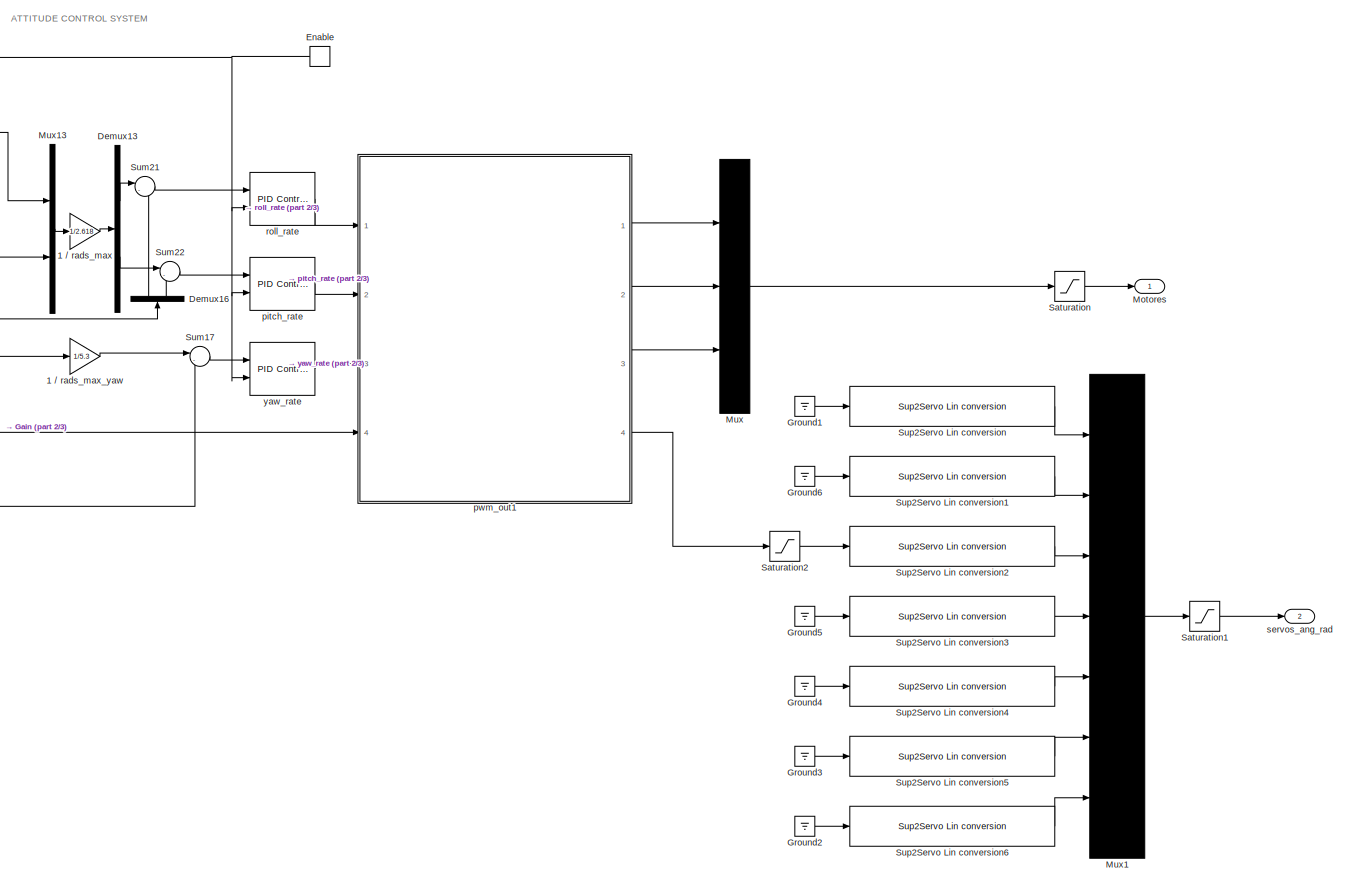
[diagram: Manual flight mode - part 1/3, right side, full height]
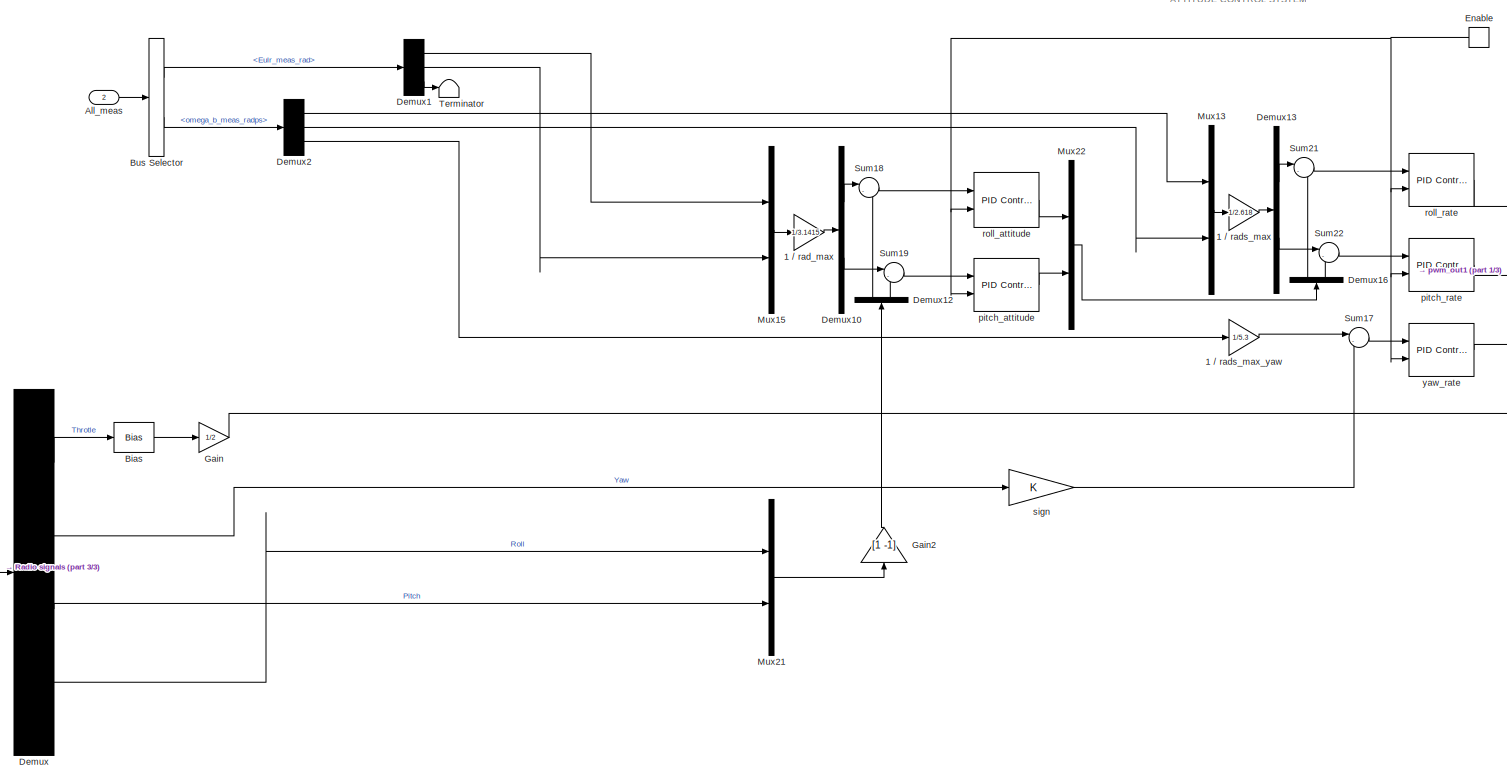
[diagram: Manual flight mode - part 2/3, left side, full height]
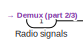
[diagram: Manual flight mode - part 3/3, bottom left region]
BLOCK [SubSystem] Manual flight mode
  Ports = [2, 2, 1]
  RequestExecContextInheritance = off
  TreatAsAtomicUnit = on
BLOCK [Gain] Manual flight mode/1 // rad_max
  Gain = 1/3.1415
  OutDataTypeStr = Inherit: Inherit via internal rule
  ParamDataTypeStr = Inherit: Inherit via internal rule
  SaturateOnIntegerOverflow = off
BLOCK [Gain] Manual flight mode/1 // rads_max
  Gain = 1/2.618
  OutDataTypeStr = Inherit: Inherit via internal rule
  ParamDataTypeStr = Inherit: Inherit via internal rule
  SaturateOnIntegerOverflow = off
BLOCK [Gain] Manual flight mode/1 // rads_max_yaw
  Gain = 1/5.3
  OutDataTypeStr = Inherit: Inherit via internal rule
  ParamDataTypeStr = Inherit: Inherit via internal rule
  SaturateOnIntegerOverflow = off
BLOCK [Inport] Manual flight mode/All_meas
  IconDisplay = Port number
  Port = 2
BLOCK [Bias] Manual flight mode/Bias
  Bias = +1
  SaturateOnIntegerOverflow = off
BLOCK [BusSelector] Manual flight mode/Bus Selector
  OutputSignals = Meas.Eulr_meas_rad,Meas.omega_b_meas_radps
  Ports = [1, 2]
BLOCK [Demux] Manual flight mode/Demux
  DisplayOption = bar
  Ports = [1, 4]
BLOCK [Demux] Manual flight mode/Demux1
  DisplayOption = bar
  Outputs = 3
  Ports = [1, 3]
BLOCK [Demux] Manual flight mode/Demux10
  DisplayOption = bar
  Outputs = 2
  Ports = [1, 2]
BLOCK [Demux] Manual flight mode/Demux12
  DisplayOption = bar
  Outputs = 2
  Ports = [1, 2]
BLOCK [Demux] Manual flight mode/Demux13
  DisplayOption = bar
  Outputs = 2
  Ports = [1, 2]
BLOCK [Demux] Manual flight mode/Demux16
  DisplayOption = bar
  Outputs = 2
  Ports = [1, 2]
BLOCK [Demux] Manual flight mode/Demux2
  DisplayOption = bar
  Outputs = 3
  Ports = [1, 3]
BLOCK [EnablePort] Manual flight mode/Enable
  Ports = [0, 1]
  ShowOutputPort = on
BLOCK [Gain] Manual flight mode/Gain
  Gain = 1/2
  OutDataTypeStr = Inherit: Inherit via internal rule
  ParamDataTypeStr = Inherit: Inherit via internal rule
  SaturateOnIntegerOverflow = off
BLOCK [Gain] Manual flight mode/Gain2
  Gain = [1 -1]
  OutDataTypeStr = Inherit: Inherit via internal rule
  ParamDataTypeStr = Inherit: Inherit via internal rule
  SaturateOnIntegerOverflow = off
BLOCK [Ground] Manual flight mode/Ground1
BLOCK [Ground] Manual flight mode/Ground2
BLOCK [Ground] Manual flight mode/Ground3
BLOCK [Ground] Manual flight mode/Ground4
BLOCK [Ground] Manual flight mode/Ground5
BLOCK [Ground] Manual flight mode/Ground6
BLOCK [Outport] Manual flight mode/Motores
  IconDisplay = Port number
BLOCK [Mux] Manual flight mode/Mux
  DisplayOption = bar
  Inputs = 3
  Ports = [3, 1]
BLOCK [Mux] Manual flight mode/Mux1
  DisplayOption = bar
  Inputs = 7
  Ports = [7, 1]
BLOCK [Mux] Manual flight mode/Mux13
  DisplayOption = bar
  Inputs = 2
  Ports = [2, 1]
BLOCK [Mux] Manual flight mode/Mux15
  DisplayOption = bar
  Inputs = 2
  Ports = [2, 1]
BLOCK [Mux] Manual flight mode/Mux21
  DisplayOption = bar
  Inputs = 2
  Ports = [2, 1]
BLOCK [Mux] Manual flight mode/Mux22
  DisplayOption = bar
  Inputs = 2
  Ports = [2, 1]
BLOCK [Inport] Manual flight mode/Radio signals
  IconDisplay = Port number
BLOCK [Saturate] Manual flight mode/Saturation
  InputPortMap = u0
  LowerLimit = 0
  Ports = [1, 1]
  UpperLimit = 1
BLOCK [Saturate] Manual flight mode/Saturation1
  InputPortMap = u0
  LowerLimit = -deg2rad(90)
  Ports = [1, 1]
  UpperLimit = deg2rad(90)
BLOCK [Saturate] Manual flight mode/Saturation2
  InputPortMap = u0
  LowerLimit = -deg2rad(20)
  Ports = [1, 1]
  UpperLimit = deg2rad(20)
BLOCK [Sum] Manual flight mode/Sum17
  IconShape = round
  InputSameDT = off
  Inputs = |-+
  OutDataTypeStr = Inherit: Inherit via internal rule
  Ports = [2, 1]
  SaturateOnIntegerOverflow = off
BLOCK [Sum] Manual flight mode/Sum18
  IconShape = round
  InputSameDT = off
  Inputs = |-+
  OutDataTypeStr = Inherit: Inherit via internal rule
  Ports = [2, 1]
  SaturateOnIntegerOverflow = off
BLOCK [Sum] Manual flight mode/Sum19
  IconShape = round
  InputSameDT = off
  Inputs = |-+
  OutDataTypeStr = Inherit: Inherit via internal rule
  Ports = [2, 1]
  SaturateOnIntegerOverflow = off
BLOCK [Sum] Manual flight mode/Sum21
  IconShape = round
  InputSameDT = off
  Inputs = |-+
  OutDataTypeStr = Inherit: Inherit via internal rule
  Ports = [2, 1]
  SaturateOnIntegerOverflow = off
BLOCK [Sum] Manual flight mode/Sum22
  IconShape = round
  InputSameDT = off
  Inputs = |-+
  OutDataTypeStr = Inherit: Inherit via internal rule
  Ports = [2, 1]
  SaturateOnIntegerOverflow = off
BLOCK [Reference] Manual flight mode/Sup2Servo Lin conversion  REF=DBX_model/Sup2Servo Lin conversion
  Bias = Servo_calib.Servo1.Sup_rad_0
  Gain = Servo_calib.Servo1.Pendiente_Sup_Servo
  Ports = [1, 1]
  SourceBlock = DBX_model/Sup2Servo Lin conversion
BLOCK [Reference] Manual flight mode/Sup2Servo Lin conversion1  REF=DBX_model/Sup2Servo Lin conversion
  Bias = Servo_calib.Servo2.Sup_rad_0
  Gain = Servo_calib.Servo2.Pendiente_Sup_Servo
  Ports = [1, 1]
  SourceBlock = DBX_model/Sup2Servo Lin conversion
BLOCK [Reference] Manual flight mode/Sup2Servo Lin conversion2  REF=DBX_model/Sup2Servo Lin conversion
  Bias = Servo_calib.Servo3.Sup_rad_0
  Gain = Servo_calib.Servo3.Pendiente_Sup_Servo
  Ports = [1, 1]
  SourceBlock = DBX_model/Sup2Servo Lin conversion
BLOCK [Reference] Manual flight mode/Sup2Servo Lin conversion3  REF=DBX_model/Sup2Servo Lin conversion
  Bias = Servo_calib.Servo4.Sup_rad_0
  Gain = Servo_calib.Servo4.Pendiente_Sup_Servo
  Ports = [1, 1]
  SourceBlock = DBX_model/Sup2Servo Lin conversion
BLOCK [Reference] Manual flight mode/Sup2Servo Lin conversion4  REF=DBX_model/Sup2Servo Lin conversion
  Bias = Servo_calib.Servo5.Sup_rad_0
  Gain = Servo_calib.Servo5.Pendiente_Sup_Servo
  Ports = [1, 1]
  SourceBlock = DBX_model/Sup2Servo Lin conversion
BLOCK [Reference] Manual flight mode/Sup2Servo Lin conversion5  REF=DBX_model/Sup2Servo Lin conversion
  Bias = Servo_calib.Servo6.Sup_rad_0
  Gain = Servo_calib.Servo6.Pendiente_Sup_Servo
  Ports = [1, 1]
  SourceBlock = DBX_model/Sup2Servo Lin conversion
BLOCK [Reference] Manual flight mode/Sup2Servo Lin conversion6  REF=DBX_model/Sup2Servo Lin conversion
  Bias = Servo_calib.Servo7.Sup_rad_0
  Gain = Servo_calib.Servo7.Pendiente_Sup_Servo
  Ports = [1, 1]
  SourceBlock = DBX_model/Sup2Servo Lin conversion
BLOCK [Terminator] Manual flight mode/Terminator
BLOCK [Reference] Manual flight mode/pitch_attitude  REF=simulink/Continuous/PID Controller
  AntiWindupMode = none
  Controller = PI
  ControllerParametersSource = internal
  D = 0
  DGainOutDataTypeStr = Inherit: Inherit via internal rule
  DOutDataTypeStr = Inherit: Inherit via internal rule
  DOutMax = []
  DOutMin = []
  DParamDataTypeStr = Inherit: Inherit via internal rule
  DParamMax = []
  DParamMin = []
  DProdOutDataTypeStr = Inherit: Inherit via internal rule
  DifferentiatorICPrevScaledInput = 0
  DifferentiatorOutDataTypeStr = Inherit: Inherit via internal rule
  DifferentiatorOutMax = []
  DifferentiatorOutMin = []
  ExternalReset = either
  FilterContinuousStateAttributes = ''
  FilterMethod = Forward Euler
  FilterOutDataTypeStr = Inherit: Inherit via internal rule
  FilterOutMax = []
  FilterOutMin = []
  FilterRTWStateStorageClass = Auto
  FilterStateMustResolveToSignalObject = off
  Form = Parallel
  I = 0.1
  IGainOutDataTypeStr = Inherit: Inherit via internal rule
  IOutDataTypeStr = Inherit: Inherit via internal rule
  IOutMax = []
  IOutMin = []
  IParamDataTypeStr = Inherit: Inherit via internal rule
  IParamMax = []
  IParamMin = []
  IProdOutDataTypeStr = Inherit: Inherit via internal rule
  IgnoreLimit = off
  InitialConditionForFilter = 0
  InitialConditionForIntegrator = 0
  InitialConditionSource = internal
  IntegratorContinuousStateAttributes = ''
  IntegratorMethod = Forward Euler
  IntegratorOutDataTypeStr = Inherit: Inherit via internal rule
  IntegratorOutMax = []
  IntegratorOutMin = []
  IntegratorRTWStateStorageClass = Auto
  IntegratorStateMustResolveToSignalObject = off
  Kb = 1
  KbOutDataTypeStr = Inherit: Inherit via internal rule
  KbOutMax = []
  KbOutMin = []
  KbParamDataTypeStr = Inherit: Inherit via internal rule
  KbParamMax = []
  KbParamMin = []
  Kt = 1
  KtOutDataTypeStr = Inherit: Inherit via internal rule
  KtOutMax = []
  KtOutMin = []
  KtParamDataTypeStr = Inherit: Inherit via internal rule
  KtParamMax = []
  KtParamMin = []
  LimitOutput = on
  LinearizeAsGain = on
  LockScale = off
  LowerSaturationLimit = -1
  N = 100
  NGainOutDataTypeStr = Inherit: Inherit via internal rule
  NOutDataTypeStr = Inherit: Inherit via internal rule
  NOutMax = []
  NOutMin = []
  NParamDataTypeStr = Inherit: Inherit via internal rule
  NParamMax = []
  NParamMin = []
  NProdOutDataTypeStr = Inherit: Inherit via internal rule
  P = 0.8
  PGainOutDataTypeStr = Inherit: Inherit via internal rule
  POutDataTypeStr = Inherit: Inherit via internal rule
  POutMax = []
  POutMin = []
  PParamDataTypeStr = Inherit: Inherit via internal rule
  PParamMax = []
  PParamMin = []
  PProdOutDataTypeStr = Inherit: Inherit via internal rule
  Ports = [2, 1]
  RndMeth = Floor
  SampleTime = -1
  SaturateOnIntegerOverflow = off
  SaturationOutDataTypeStr = Inherit: Same as input
  SaturationOutMax = []
  SaturationOutMin = []
  SourceBlock = simulink/Continuous/PID Controller
  SourceType = PID 1dof
  SumAccumDataTypeStr = Inherit: Inherit via internal rule
  SumDAccumDataTypeStr = Inherit: Inherit via internal rule
  SumDOutDataTypeStr = Inherit: Inherit via internal rule
  SumDOutMax = []
  SumDOutMin = []
  SumI1AccumDataTypeStr = Inherit: Inherit via internal rule
  SumI1OutDataTypeStr = Inherit: Inherit via internal rule
  SumI1OutMax = []
  SumI1OutMin = []
  SumI2AccumDataTypeStr = Inherit: Inherit via internal rule
  SumI2OutDataTypeStr = Inherit: Inherit via internal rule
  SumI2OutMax = []
  SumI2OutMin = []
  SumI3AccumDataTypeStr = Inherit: Inherit via internal rule
  SumI3OutDataTypeStr = Inherit: Inherit via internal rule
  SumI3OutMax = []
  SumI3OutMin = []
  SumOutDataTypeStr = Inherit: Inherit via internal rule
  SumOutMax = []
  SumOutMin = []
  TimeDomain = Discrete-time
  TrackingMode = off
  UpperSaturationLimit = 1
  UseFilter = on
  ZeroCross = on
BLOCK [Reference] Manual flight mode/pitch_rate  REF=simulink/Continuous/PID Controller
  AntiWindupMode = none
  Controller = PID
  ControllerParametersSource = internal
  D = 0
  DGainOutDataTypeStr = Inherit: Inherit via internal rule
  DOutDataTypeStr = Inherit: Inherit via internal rule
  DOutMax = []
  DOutMin = []
  DParamDataTypeStr = Inherit: Inherit via internal rule
  DParamMax = []
  DParamMin = []
  DProdOutDataTypeStr = Inherit: Inherit via internal rule
  DifferentiatorICPrevScaledInput = 0
  DifferentiatorOutDataTypeStr = Inherit: Inherit via internal rule
  DifferentiatorOutMax = []
  DifferentiatorOutMin = []
  ExternalReset = either
  FilterContinuousStateAttributes = ''
  FilterMethod = Forward Euler
  FilterOutDataTypeStr = Inherit: Inherit via internal rule
  FilterOutMax = []
  FilterOutMin = []
  FilterRTWStateStorageClass = Auto
  FilterStateMustResolveToSignalObject = off
  Form = Parallel
  I = 0
  IGainOutDataTypeStr = Inherit: Inherit via internal rule
  IOutDataTypeStr = Inherit: Inherit via internal rule
  IOutMax = []
  IOutMin = []
  IParamDataTypeStr = Inherit: Inherit via internal rule
  IParamMax = []
  IParamMin = []
  IProdOutDataTypeStr = Inherit: Inherit via internal rule
  IgnoreLimit = off
  InitialConditionForFilter = 0
  InitialConditionForIntegrator = 0
  InitialConditionSource = internal
  IntegratorContinuousStateAttributes = ''
  IntegratorMethod = Forward Euler
  IntegratorOutDataTypeStr = Inherit: Inherit via internal rule
  IntegratorOutMax = []
  IntegratorOutMin = []
  IntegratorRTWStateStorageClass = Auto
  IntegratorStateMustResolveToSignalObject = off
  Kb = 1
  KbOutDataTypeStr = Inherit: Inherit via internal rule
  KbOutMax = []
  KbOutMin = []
  KbParamDataTypeStr = Inherit: Inherit via internal rule
  KbParamMax = []
  KbParamMin = []
  Kt = 1
  KtOutDataTypeStr = Inherit: Inherit via internal rule
  KtOutMax = []
  KtOutMin = []
  KtParamDataTypeStr = Inherit: Inherit via internal rule
  KtParamMax = []
  KtParamMin = []
  LimitOutput = on
  LinearizeAsGain = on
  LockScale = off
  LowerSaturationLimit = -1
  N = 100
  NGainOutDataTypeStr = Inherit: Inherit via internal rule
  NOutDataTypeStr = Inherit: Inherit via internal rule
  NOutMax = []
  NOutMin = []
  NParamDataTypeStr = Inherit: Inherit via internal rule
  NParamMax = []
  NParamMin = []
  NProdOutDataTypeStr = Inherit: Inherit via internal rule
  P = 0.2
  PGainOutDataTypeStr = Inherit: Inherit via internal rule
  POutDataTypeStr = Inherit: Inherit via internal rule
  POutMax = []
  POutMin = []
  PParamDataTypeStr = Inherit: Inherit via internal rule
  PParamMax = []
  PParamMin = []
  PProdOutDataTypeStr = Inherit: Inherit via internal rule
  Ports = [2, 1]
  RndMeth = Floor
  SampleTime = -1
  SaturateOnIntegerOverflow = off
  SaturationOutDataTypeStr = Inherit: Same as input
  SaturationOutMax = []
  SaturationOutMin = []
  SourceBlock = simulink/Continuous/PID Controller
  SourceType = PID 1dof
  SumAccumDataTypeStr = Inherit: Inherit via internal rule
  SumDAccumDataTypeStr = Inherit: Inherit via internal rule
  SumDOutDataTypeStr = Inherit: Inherit via internal rule
  SumDOutMax = []
  SumDOutMin = []
  SumI1AccumDataTypeStr = Inherit: Inherit via internal rule
  SumI1OutDataTypeStr = Inherit: Inherit via internal rule
  SumI1OutMax = []
  SumI1OutMin = []
  SumI2AccumDataTypeStr = Inherit: Inherit via internal rule
  SumI2OutDataTypeStr = Inherit: Inherit via internal rule
  SumI2OutMax = []
  SumI2OutMin = []
  SumI3AccumDataTypeStr = Inherit: Inherit via internal rule
  SumI3OutDataTypeStr = Inherit: Inherit via internal rule
  SumI3OutMax = []
  SumI3OutMin = []
  SumOutDataTypeStr = Inherit: Inherit via internal rule
  SumOutMax = []
  SumOutMin = []
  TimeDomain = Discrete-time
  TrackingMode = off
  UpperSaturationLimit = 1
  UseFilter = on
  ZeroCross = on
BLOCK [SubSystem] Manual flight mode/pwm_out1
  ErrorFcn = Stateflow.Translate.translate
  PermitHierarchicalResolution = ExplicitOnly
  Ports = [4, 4]
  RequestExecContextInheritance = off
  SFBlockType = MATLAB Function
  SystemSampleTime = T_ctrl
  TreatAsAtomicUnit = on
BLOCK [Demux] Manual flight mode/pwm_out1/ Demux 
  Outputs = 1
  Ports = [1, 1]
BLOCK [S-Function] Manual flight mode/pwm_out1/ SFunction 
  EnableBusSupport = on
  FunctionName = sf_sfun
  Parameters = R
  PortCounts = [4 5]
  Ports = [4, 5]
  Tag = Stateflow S-Function dbx_control 3
BLOCK [Terminator] Manual flight mode/pwm_out1/ Terminator 
BLOCK [Outport] Manual flight mode/pwm_out1/M1
  IconDisplay = Port number
BLOCK [Outport] Manual flight mode/pwm_out1/M2
  IconDisplay = Port number
  Port = 2
BLOCK [Outport] Manual flight mode/pwm_out1/M3
  IconDisplay = Port number
  Port = 3
BLOCK [Inport] Manual flight mode/pwm_out1/P
  IconDisplay = Port number
  Port = 2
BLOCK [Inport] Manual flight mode/pwm_out1/Roll
  IconDisplay = Port number
BLOCK [Outport] Manual flight mode/pwm_out1/S3
  IconDisplay = Port number
  Port = 4
BLOCK [Inport] Manual flight mode/pwm_out1/T
  IconDisplay = Port number
  Port = 4
BLOCK [Inport] Manual flight mode/pwm_out1/Y
  IconDisplay = Port number
  Port = 3
BLOCK [Reference] Manual flight mode/roll_attitude  REF=simulink/Continuous/PID Controller
  AntiWindupMode = none
  Controller = PI
  ControllerParametersSource = internal
  D = 0
  DGainOutDataTypeStr = Inherit: Inherit via internal rule
  DOutDataTypeStr = Inherit: Inherit via internal rule
  DOutMax = []
  DOutMin = []
  DParamDataTypeStr = Inherit: Inherit via internal rule
  DParamMax = []
  DParamMin = []
  DProdOutDataTypeStr = Inherit: Inherit via internal rule
  DifferentiatorICPrevScaledInput = 0
  DifferentiatorOutDataTypeStr = Inherit: Inherit via internal rule
  DifferentiatorOutMax = []
  DifferentiatorOutMin = []
  ExternalReset = either
  FilterContinuousStateAttributes = ''
  FilterMethod = Forward Euler
  FilterOutDataTypeStr = Inherit: Inherit via internal rule
  FilterOutMax = []
  FilterOutMin = []
  FilterRTWStateStorageClass = Auto
  FilterStateMustResolveToSignalObject = off
  Form = Parallel
  I = 0.1
  IGainOutDataTypeStr = Inherit: Inherit via internal rule
  IOutDataTypeStr = Inherit: Inherit via internal rule
  IOutMax = []
  IOutMin = []
  IParamDataTypeStr = Inherit: Inherit via internal rule
  IParamMax = []
  IParamMin = []
  IProdOutDataTypeStr = Inherit: Inherit via internal rule
  IgnoreLimit = off
  InitialConditionForFilter = 0
  InitialConditionForIntegrator = 0
  InitialConditionSource = internal
  IntegratorContinuousStateAttributes = ''
  IntegratorMethod = Forward Euler
  IntegratorOutDataTypeStr = Inherit: Inherit via internal rule
  IntegratorOutMax = []
  IntegratorOutMin = []
  IntegratorRTWStateStorageClass = Auto
  IntegratorStateMustResolveToSignalObject = off
  Kb = 1
  KbOutDataTypeStr = Inherit: Inherit via internal rule
  KbOutMax = []
  KbOutMin = []
  KbParamDataTypeStr = Inherit: Inherit via internal rule
  KbParamMax = []
  KbParamMin = []
  Kt = 1
  KtOutDataTypeStr = Inherit: Inherit via internal rule
  KtOutMax = []
  KtOutMin = []
  KtParamDataTypeStr = Inherit: Inherit via internal rule
  KtParamMax = []
  KtParamMin = []
  LimitOutput = on
  LinearizeAsGain = on
  LockScale = off
  LowerSaturationLimit = -1
  N = 100
  NGainOutDataTypeStr = Inherit: Inherit via internal rule
  NOutDataTypeStr = Inherit: Inherit via internal rule
  NOutMax = []
  NOutMin = []
  NParamDataTypeStr = Inherit: Inherit via internal rule
  NParamMax = []
  NParamMin = []
  NProdOutDataTypeStr = Inherit: Inherit via internal rule
  P = 0.8
  PGainOutDataTypeStr = Inherit: Inherit via internal rule
  POutDataTypeStr = Inherit: Inherit via internal rule
  POutMax = []
  POutMin = []
  PParamDataTypeStr = Inherit: Inherit via internal rule
  PParamMax = []
  PParamMin = []
  PProdOutDataTypeStr = Inherit: Inherit via internal rule
  Ports = [2, 1]
  RndMeth = Floor
  SampleTime = -1
  SaturateOnIntegerOverflow = off
  SaturationOutDataTypeStr = Inherit: Same as input
  SaturationOutMax = []
  SaturationOutMin = []
  SourceBlock = simulink/Continuous/PID Controller
  SourceType = PID 1dof
  SumAccumDataTypeStr = Inherit: Inherit via internal rule
  SumDAccumDataTypeStr = Inherit: Inherit via internal rule
  SumDOutDataTypeStr = Inherit: Inherit via internal rule
  SumDOutMax = []
  SumDOutMin = []
  SumI1AccumDataTypeStr = Inherit: Inherit via internal rule
  SumI1OutDataTypeStr = Inherit: Inherit via internal rule
  SumI1OutMax = []
  SumI1OutMin = []
  SumI2AccumDataTypeStr = Inherit: Inherit via internal rule
  SumI2OutDataTypeStr = Inherit: Inherit via internal rule
  SumI2OutMax = []
  SumI2OutMin = []
  SumI3AccumDataTypeStr = Inherit: Inherit via internal rule
  SumI3OutDataTypeStr = Inherit: Inherit via internal rule
  SumI3OutMax = []
  SumI3OutMin = []
  SumOutDataTypeStr = Inherit: Inherit via internal rule
  SumOutMax = []
  SumOutMin = []
  TimeDomain = Discrete-time
  TrackingMode = off
  UpperSaturationLimit = 1
  UseFilter = on
  ZeroCross = on
BLOCK [Reference] Manual flight mode/roll_rate  REF=simulink/Continuous/PID Controller
  AntiWindupMode = none
  Controller = PID
  ControllerParametersSource = internal
  D = 0
  DGainOutDataTypeStr = Inherit: Inherit via internal rule
  DOutDataTypeStr = Inherit: Inherit via internal rule
  DOutMax = []
  DOutMin = []
  DParamDataTypeStr = Inherit: Inherit via internal rule
  DParamMax = []
  DParamMin = []
  DProdOutDataTypeStr = Inherit: Inherit via internal rule
  DifferentiatorICPrevScaledInput = 0
  DifferentiatorOutDataTypeStr = Inherit: Inherit via internal rule
  DifferentiatorOutMax = []
  DifferentiatorOutMin = []
  ExternalReset = either
  FilterContinuousStateAttributes = ''
  FilterMethod = Forward Euler
  FilterOutDataTypeStr = Inherit: Inherit via internal rule
  FilterOutMax = []
  FilterOutMin = []
  FilterRTWStateStorageClass = Auto
  FilterStateMustResolveToSignalObject = off
  Form = Parallel
  I = 0
  IGainOutDataTypeStr = Inherit: Inherit via internal rule
  IOutDataTypeStr = Inherit: Inherit via internal rule
  IOutMax = []
  IOutMin = []
  IParamDataTypeStr = Inherit: Inherit via internal rule
  IParamMax = []
  IParamMin = []
  IProdOutDataTypeStr = Inherit: Inherit via internal rule
  IgnoreLimit = off
  InitialConditionForFilter = 0
  InitialConditionForIntegrator = 0
  InitialConditionSource = internal
  IntegratorContinuousStateAttributes = ''
  IntegratorMethod = Forward Euler
  IntegratorOutDataTypeStr = Inherit: Inherit via internal rule
  IntegratorOutMax = []
  IntegratorOutMin = []
  IntegratorRTWStateStorageClass = Auto
  IntegratorStateMustResolveToSignalObject = off
  Kb = 1
  KbOutDataTypeStr = Inherit: Inherit via internal rule
  KbOutMax = []
  KbOutMin = []
  KbParamDataTypeStr = Inherit: Inherit via internal rule
  KbParamMax = []
  KbParamMin = []
  Kt = 1
  KtOutDataTypeStr = Inherit: Inherit via internal rule
  KtOutMax = []
  KtOutMin = []
  KtParamDataTypeStr = Inherit: Inherit via internal rule
  KtParamMax = []
  KtParamMin = []
  LimitOutput = on
  LinearizeAsGain = on
  LockScale = off
  LowerSaturationLimit = -1
  N = 100
  NGainOutDataTypeStr = Inherit: Inherit via internal rule
  NOutDataTypeStr = Inherit: Inherit via internal rule
  NOutMax = []
  NOutMin = []
  NParamDataTypeStr = Inherit: Inherit via internal rule
  NParamMax = []
  NParamMin = []
  NProdOutDataTypeStr = Inherit: Inherit via internal rule
  P = 0.2
  PGainOutDataTypeStr = Inherit: Inherit via internal rule
  POutDataTypeStr = Inherit: Inherit via internal rule
  POutMax = []
  POutMin = []
  PParamDataTypeStr = Inherit: Inherit via internal rule
  PParamMax = []
  PParamMin = []
  PProdOutDataTypeStr = Inherit: Inherit via internal rule
  Ports = [2, 1]
  RndMeth = Floor
  SampleTime = -1
  SaturateOnIntegerOverflow = off
  SaturationOutDataTypeStr = Inherit: Same as input
  SaturationOutMax = []
  SaturationOutMin = []
  SourceBlock = simulink/Continuous/PID Controller
  SourceType = PID 1dof
  SumAccumDataTypeStr = Inherit: Inherit via internal rule
  SumDAccumDataTypeStr = Inherit: Inherit via internal rule
  SumDOutDataTypeStr = Inherit: Inherit via internal rule
  SumDOutMax = []
  SumDOutMin = []
  SumI1AccumDataTypeStr = Inherit: Inherit via internal rule
  SumI1OutDataTypeStr = Inherit: Inherit via internal rule
  SumI1OutMax = []
  SumI1OutMin = []
  SumI2AccumDataTypeStr = Inherit: Inherit via internal rule
  SumI2OutDataTypeStr = Inherit: Inherit via internal rule
  SumI2OutMax = []
  SumI2OutMin = []
  SumI3AccumDataTypeStr = Inherit: Inherit via internal rule
  SumI3OutDataTypeStr = Inherit: Inherit via internal rule
  SumI3OutMax = []
  SumI3OutMin = []
  SumOutDataTypeStr = Inherit: Inherit via internal rule
  SumOutMax = []
  SumOutMin = []
  TimeDomain = Discrete-time
  TrackingMode = off
  UpperSaturationLimit = 1
  UseFilter = on
  ZeroCross = on
BLOCK [Outport] Manual flight mode/servos_ang_rad
  IconDisplay = Port number
  Port = 2
BLOCK [Gain] Manual flight mode/sign
  OutDataTypeStr = Inherit: Inherit via internal rule
  ParamDataTypeStr = Inherit: Inherit via internal rule
  SaturateOnIntegerOverflow = off
BLOCK [Reference] Manual flight mode/yaw_rate  REF=simulink/Continuous/PID Controller
  AntiWindupMode = none
  Controller = PID
  ControllerParametersSource = internal
  D = 0
  DGainOutDataTypeStr = Inherit: Inherit via internal rule
  DOutDataTypeStr = Inherit: Inherit via internal rule
  DOutMax = []
  DOutMin = []
  DParamDataTypeStr = Inherit: Inherit via internal rule
  DParamMax = []
  DParamMin = []
  DProdOutDataTypeStr = Inherit: Inherit via internal rule
  DifferentiatorICPrevScaledInput = 0
  DifferentiatorOutDataTypeStr = Inherit: Inherit via internal rule
  DifferentiatorOutMax = []
  DifferentiatorOutMin = []
  ExternalReset = either
  FilterContinuousStateAttributes = ''
  FilterMethod = Forward Euler
  FilterOutDataTypeStr = Inherit: Inherit via internal rule
  FilterOutMax = []
  FilterOutMin = []
  FilterRTWStateStorageClass = Auto
  FilterStateMustResolveToSignalObject = off
  Form = Parallel
  I = 0.2
  IGainOutDataTypeStr = Inherit: Inherit via internal rule
  IOutDataTypeStr = Inherit: Inherit via internal rule
  IOutMax = []
  IOutMin = []
  IParamDataTypeStr = Inherit: Inherit via internal rule
  IParamMax = []
  IParamMin = []
  IProdOutDataTypeStr = Inherit: Inherit via internal rule
  IgnoreLimit = off
  InitialConditionForFilter = 0
  InitialConditionForIntegrator = 0
  InitialConditionSource = internal
  IntegratorContinuousStateAttributes = ''
  IntegratorMethod = Forward Euler
  IntegratorOutDataTypeStr = Inherit: Inherit via internal rule
  IntegratorOutMax = []
  IntegratorOutMin = []
  IntegratorRTWStateStorageClass = Auto
  IntegratorStateMustResolveToSignalObject = off
  Kb = 1
  KbOutDataTypeStr = Inherit: Inherit via internal rule
  KbOutMax = []
  KbOutMin = []
  KbParamDataTypeStr = Inherit: Inherit via internal rule
  KbParamMax = []
  KbParamMin = []
  Kt = 1
  KtOutDataTypeStr = Inherit: Inherit via internal rule
  KtOutMax = []
  KtOutMin = []
  KtParamDataTypeStr = Inherit: Inherit via internal rule
  KtParamMax = []
  KtParamMin = []
  LimitOutput = on
  LinearizeAsGain = on
  LockScale = off
  LowerSaturationLimit = -1
  N = 100
  NGainOutDataTypeStr = Inherit: Inherit via internal rule
  NOutDataTypeStr = Inherit: Inherit via internal rule
  NOutMax = []
  NOutMin = []
  NParamDataTypeStr = Inherit: Inherit via internal rule
  NParamMax = []
  NParamMin = []
  NProdOutDataTypeStr = Inherit: Inherit via internal rule
  P = 2
  PGainOutDataTypeStr = Inherit: Inherit via internal rule
  POutDataTypeStr = Inherit: Inherit via internal rule
  POutMax = []
  POutMin = []
  PParamDataTypeStr = Inherit: Inherit via internal rule
  PParamMax = []
  PParamMin = []
  PProdOutDataTypeStr = Inherit: Inherit via internal rule
  Ports = [2, 1]
  RndMeth = Floor
  SampleTime = -1
  SaturateOnIntegerOverflow = off
  SaturationOutDataTypeStr = Inherit: Same as input
  SaturationOutMax = []
  SaturationOutMin = []
  SourceBlock = simulink/Continuous/PID Controller
  SourceType = PID 1dof
  SumAccumDataTypeStr = Inherit: Inherit via internal rule
  SumDAccumDataTypeStr = Inherit: Inherit via internal rule
  SumDOutDataTypeStr = Inherit: Inherit via internal rule
  SumDOutMax = []
  SumDOutMin = []
  SumI1AccumDataTypeStr = Inherit: Inherit via internal rule
  SumI1OutDataTypeStr = Inherit: Inherit via internal rule
  SumI1OutMax = []
  SumI1OutMin = []
  SumI2AccumDataTypeStr = Inherit: Inherit via internal rule
  SumI2OutDataTypeStr = Inherit: Inherit via internal rule
  SumI2OutMax = []
  SumI2OutMin = []
  SumI3AccumDataTypeStr = Inherit: Inherit via internal rule
  SumI3OutDataTypeStr = Inherit: Inherit via internal rule
  SumI3OutMax = []
  SumI3OutMin = []
  SumOutDataTypeStr = Inherit: Inherit via internal rule
  SumOutMax = []
  SumOutMin = []
  TimeDomain = Discrete-time
  TrackingMode = off
  UpperSaturationLimit = 1
  UseFilter = on
  ZeroCross = on
BLOCK [Mux] Mux
  DisplayOption = bar
  Ports = [4, 1]
BLOCK [Mux] Mux11
  DisplayOption = bar
  Inputs = 8
  Ports = [8, 1]
BLOCK [Mux] Mux2
  DisplayOption = bar
  Inputs = 3
  Ports = [3, 1]
BLOCK [Mux] Mux3
  DisplayOption = bar
  Inputs = 3
  Ports = [3, 1]
BLOCK [Mux] Mux4
  DisplayOption = bar
  Ports = [4, 1]
BLOCK [Mux] Mux5
  DisplayOption = bar
  Inputs = 3
  Ports = [3, 1]
BLOCK [Mux] Mux6
  DisplayOption = bar
  Inputs = 3
  Ports = [3, 1]
BLOCK [Mux] Mux7
  DisplayOption = bar
  Inputs = 3
  Ports = [3, 1]
BLOCK [Mux] Mux8
  DisplayOption = bar
  Inputs = 3
  Ports = [3, 1]
BLOCK [Mux] Mux9
  DisplayOption = bar
  Inputs = 3
  Ports = [3, 1]
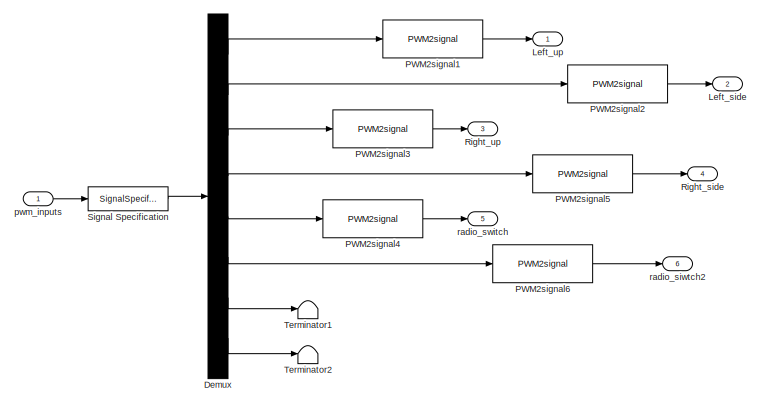
[diagram: Px4_to_simulink input interface - part 1/4, top center region]
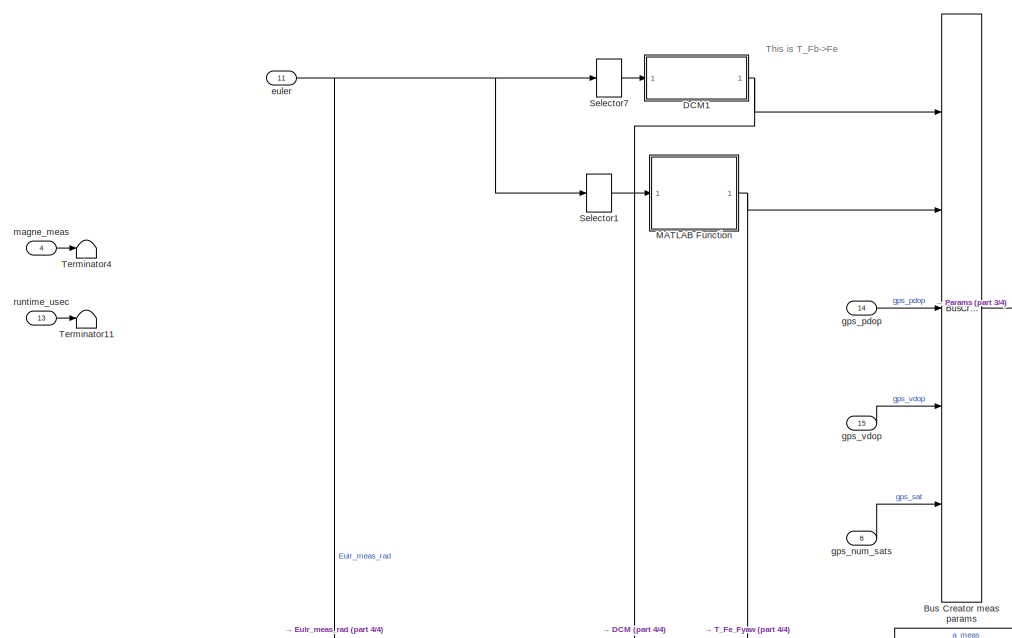
[diagram: Px4_to_simulink input interface - part 2/4, central region]
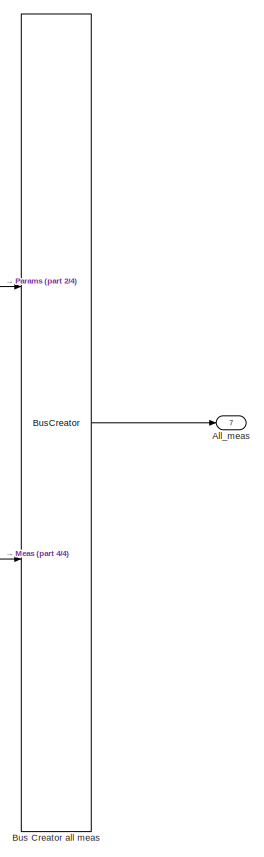
[diagram: Px4_to_simulink input interface - part 3/4, middle right region]
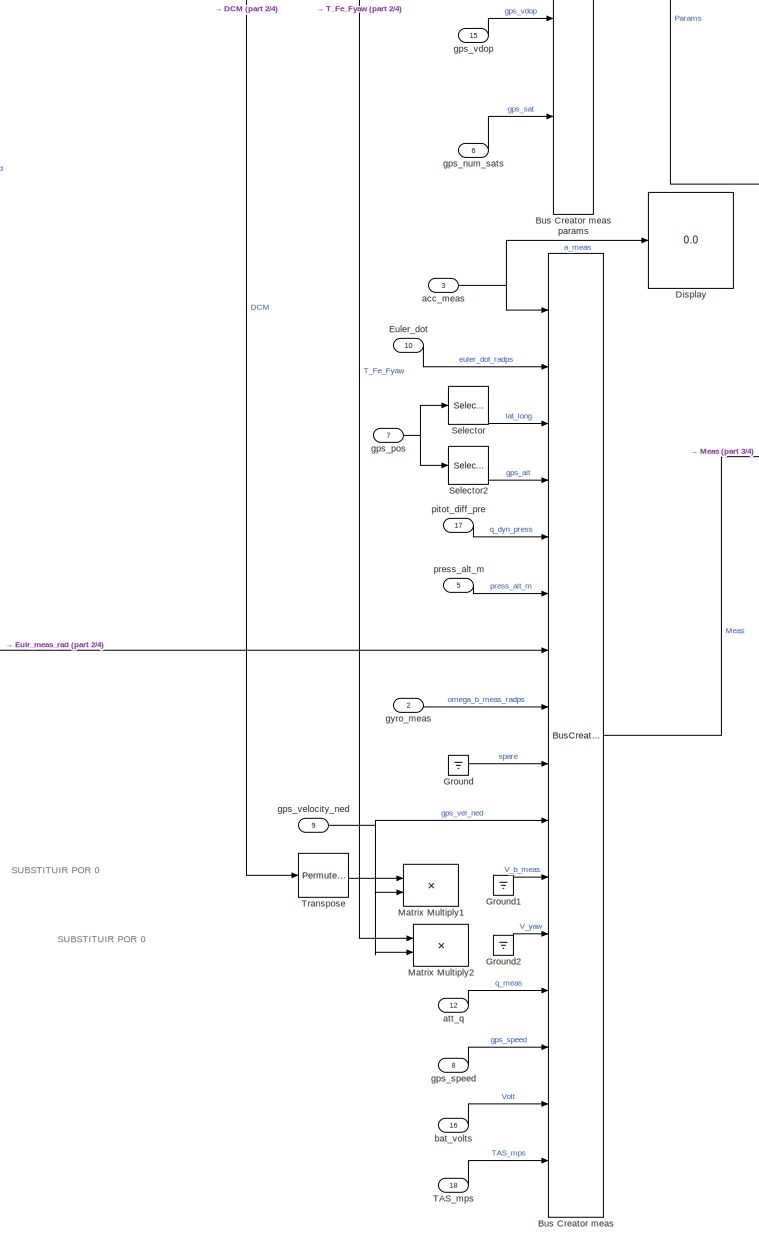
[diagram: Px4_to_simulink input interface - part 4/4, bottom center region]
BLOCK [SubSystem] Px4_to_simulink input interface
  Ports = [18, 7]
  RequestExecContextInheritance = off
BLOCK [Outport] Px4_to_simulink input interface/All_meas
  IconDisplay = Port number
  Port = 7
BLOCK [BusCreator] Px4_to_simulink input interface/Bus Creator all meas
  DisplayOption = bar
  Inputs = 2
  Ports = [2, 1]
BLOCK [BusCreator] Px4_to_simulink input interface/Bus Creator meas
  DisplayOption = bar
  Inputs = 16
  Ports = [16, 1]
BLOCK [BusCreator] Px4_to_simulink input interface/Bus Creator meas params
  DisplayOption = bar
  Inputs = 5
  Ports = [5, 1]
BLOCK [SubSystem] Px4_to_simulink input interface/DCM1
  Ports = [1, 1]
  RequestExecContextInheritance = off
  TreatAsAtomicUnit = on
BLOCK [Outport] Px4_to_simulink input interface/DCM1/DCM
  IconDisplay = Port number
  PortDimensions = [3,3]
BLOCK [Inport] Px4_to_simulink input interface/DCM1/Euler
  IconDisplay = Port number
  PortDimensions = 3
BLOCK [Fcn] Px4_to_simulink input interface/DCM1/Fcn11
  Expr = u(5)*u(4)
BLOCK [Fcn] Px4_to_simulink input interface/DCM1/Fcn12
  Expr = u(5)*u(1)
BLOCK [Fcn] Px4_to_simulink input interface/DCM1/Fcn13
  Expr = -u(2)
BLOCK [Fcn] Px4_to_simulink input interface/DCM1/Fcn21
  Expr = u(3)*u(2)*u(4) - u(6)*u(1)
BLOCK [Fcn] Px4_to_simulink input interface/DCM1/Fcn22
  Expr = u(3)*u(2)*u(1) + u(6)*u(4)
BLOCK [Fcn] Px4_to_simulink input interface/DCM1/Fcn23
  Expr = u(3)*u(5)
BLOCK [Fcn] Px4_to_simulink input interface/DCM1/Fcn31
  Expr = u(6)*u(2)*u(4) + u(3)*u(1)
BLOCK [Fcn] Px4_to_simulink input interface/DCM1/Fcn32
  Expr = u(6)*u(2)*u(1) - u(3)*u(4)
BLOCK [Fcn] Px4_to_simulink input interface/DCM1/Fcn33
  Expr = u(6)*u(5)
BLOCK [Mux] Px4_to_simulink input interface/DCM1/Mux
  DisplayOption = bar
  Inputs = 2
  Ports = [2, 1]
BLOCK [Mux] Px4_to_simulink input interface/DCM1/Mux1
  DisplayOption = bar
  Inputs = 9
  Ports = [9, 1]
BLOCK [Reshape] Px4_to_simulink input interface/DCM1/Reshape
  OutputDimensionality = Customize
  OutputDimensions = [3,3]
  Ports = [1, 1]
BLOCK [Trigonometry] Px4_to_simulink input interface/DCM1/sincos
  Operator = sincos
  Ports = [1, 2]
BLOCK [Demux] Px4_to_simulink input interface/Demux
  DisplayOption = bar
  Outputs = 8
  Ports = [1, 8]
BLOCK [Display] Px4_to_simulink input interface/Display
  Decimation = 1
  Ports = [1]
BLOCK [Inport] Px4_to_simulink input interface/Euler_dot
  IconDisplay = Port number
  Port = 10
  PortDimensions = 3
  SampleTime = T_ctrl
BLOCK [Ground] Px4_to_simulink input interface/Ground
BLOCK [Ground] Px4_to_simulink input interface/Ground1
BLOCK [Ground] Px4_to_simulink input interface/Ground2
BLOCK [Outport] Px4_to_simulink input interface/Left_side
  IconDisplay = Port number
  Port = 2
BLOCK [Outport] Px4_to_simulink input interface/Left_up
  IconDisplay = Port number
BLOCK [SubSystem] Px4_to_simulink input interface/MATLAB Function
  ErrorFcn = Stateflow.Translate.translate
  PermitHierarchicalResolution = ExplicitOnly
  Ports = [1, 1]
  RequestExecContextInheritance = off
  SFBlockType = MATLAB Function
  TreatAsAtomicUnit = on
BLOCK [Demux] Px4_to_simulink input interface/MATLAB Function/ Demux 
  Outputs = 1
  Ports = [1, 1]
BLOCK [S-Function] Px4_to_simulink input interface/MATLAB Function/ SFunction 
  EnableBusSupport = on
  FunctionName = sf_sfun
  PortCounts = [1 2]
  Ports = [1, 2]
  Tag = Stateflow S-Function dbx_control 17
BLOCK [Terminator] Px4_to_simulink input interface/MATLAB Function/ Terminator 
BLOCK [Outport] Px4_to_simulink input interface/MATLAB Function/T_yaw
  IconDisplay = Port number
BLOCK [Inport] Px4_to_simulink input interface/MATLAB Function/yaw
  IconDisplay = Port number
BLOCK [Product] Px4_to_simulink input interface/Matrix Multiply1
  InputSameDT = off
  Multiplication = Matrix(*)
  OutDataTypeStr = Inherit: Inherit via internal rule
  Ports = [2, 1]
  RndMeth = Floor
  SaturateOnIntegerOverflow = off
BLOCK [Product] Px4_to_simulink input interface/Matrix Multiply2
  InputSameDT = off
  Multiplication = Matrix(*)
  OutDataTypeStr = Inherit: Inherit via internal rule
  Ports = [2, 1]
  RndMeth = Floor
  SaturateOnIntegerOverflow = off
BLOCK [Reference] Px4_to_simulink input interface/PWM2signal1  REF=DBX_model/PWM2signal
  Ports = [1, 1]
  SourceBlock = DBX_model/PWM2signal
  a = 1000
  b = -1
  c = 2000
  d = 1
BLOCK [Reference] Px4_to_simulink input interface/PWM2signal2  REF=DBX_model/PWM2signal
  Ports = [1, 1]
  SourceBlock = DBX_model/PWM2signal
  a = 1000
  b = -1
  c = 2000
  d = 1
BLOCK [Reference] Px4_to_simulink input interface/PWM2signal3  REF=DBX_model/PWM2signal
  Ports = [1, 1]
  SourceBlock = DBX_model/PWM2signal
  a = 1000
  b = -1
  c = 2000
  d = 1
BLOCK [Reference] Px4_to_simulink input interface/PWM2signal4  REF=DBX_model/PWM2signal
  Ports = [1, 1]
  SourceBlock = DBX_model/PWM2signal
  a = 1000
  b = -1
  c = 2000
  d = 1
BLOCK [Reference] Px4_to_simulink input interface/PWM2signal5  REF=DBX_model/PWM2signal
  Ports = [1, 1]
  SourceBlock = DBX_model/PWM2signal
  a = 1000
  b = -1
  c = 2000
  d = 1
BLOCK [Reference] Px4_to_simulink input interface/PWM2signal6  REF=DBX_model/PWM2signal
  Ports = [1, 1]
  SourceBlock = DBX_model/PWM2signal
  a = 1000
  b = -1
  c = 2000
  d = 1
BLOCK [Outport] Px4_to_simulink input interface/Right_side
  IconDisplay = Port number
  Port = 4
BLOCK [Outport] Px4_to_simulink input interface/Right_up
  IconDisplay = Port number
  Port = 3
BLOCK [Selector] Px4_to_simulink input interface/Selector
  Indices = [1,2]
  InputPortWidth = 3
  Ports = [1, 1]
BLOCK [Selector] Px4_to_simulink input interface/Selector1
  Indices = 3
  InputPortWidth = 3
  Ports = [1, 1]
BLOCK [Selector] Px4_to_simulink input interface/Selector2
  Indices = 3
  InputPortWidth = 3
  Ports = [1, 1]
BLOCK [Selector] Px4_to_simulink input interface/Selector7
  Indices = [3 2 1]
  InputPortWidth = 3
  Ports = [1, 1]
BLOCK [SignalSpecification] Px4_to_simulink input interface/Signal Specification
  Dimensions = 8
BLOCK [Inport] Px4_to_simulink input interface/TAS_mps
  IconDisplay = Port number
  Port = 18
  SampleTime = T_ctrl
BLOCK [Terminator] Px4_to_simulink input interface/Terminator1
BLOCK [Terminator] Px4_to_simulink input interface/Terminator11
BLOCK [Terminator] Px4_to_simulink input interface/Terminator2
BLOCK [Terminator] Px4_to_simulink input interface/Terminator4
BLOCK [PermuteDimensions] Px4_to_simulink input interface/Transpose
BLOCK [Inport] Px4_to_simulink input interface/acc_meas
  IconDisplay = Port number
  Port = 3
  PortDimensions = 3
  SampleTime = T_ctrl
BLOCK [Inport] Px4_to_simulink input interface/att_q
  IconDisplay = Port number
  Port = 12
  PortDimensions = 4
  SampleTime = T_ctrl
BLOCK [Inport] Px4_to_simulink input interface/bat_volts
  IconDisplay = Port number
  Port = 16
  PortDimensions = 1
  SampleTime = T_ctrl
BLOCK [Inport] Px4_to_simulink input interface/euler
  IconDisplay = Port number
  Port = 11
  PortDimensions = 3
  SampleTime = T_ctrl
BLOCK [Inport] Px4_to_simulink input interface/gps_num_sats
  IconDisplay = Port number
  Port = 6
  PortDimensions = 1
  SampleTime = T_ctrl
BLOCK [Inport] Px4_to_simulink input interface/gps_pdop
  IconDisplay = Port number
  Port = 14
  PortDimensions = 1
  SampleTime = T_ctrl
BLOCK [Inport] Px4_to_simulink input interface/gps_pos
  IconDisplay = Port number
  Port = 7
  PortDimensions = 3
  SampleTime = T_ctrl
BLOCK [Inport] Px4_to_simulink input interface/gps_speed
  IconDisplay = Port number
  Port = 8
  PortDimensions = 1
  SampleTime = T_ctrl
BLOCK [Inport] Px4_to_simulink input interface/gps_vdop
  IconDisplay = Port number
  Port = 15
  PortDimensions = 1
  SampleTime = T_ctrl
BLOCK [Inport] Px4_to_simulink input interface/gps_velocity_ned
  IconDisplay = Port number
  Port = 9
  PortDimensions = 3
  SampleTime = T_ctrl
BLOCK [Inport] Px4_to_simulink input interface/gyro_meas
  IconDisplay = Port number
  Port = 2
  PortDimensions = 3
  SampleTime = T_ctrl
BLOCK [Inport] Px4_to_simulink input interface/magne_meas
  IconDisplay = Port number
  Port = 4
  PortDimensions = 3
  SampleTime = T_ctrl
BLOCK [Inport] Px4_to_simulink input interface/pitot_diff_pre
  IconDisplay = Port number
  Port = 17
  SampleTime = T_ctrl
BLOCK [Inport] Px4_to_simulink input interface/press_alt_m
  IconDisplay = Port number
  Port = 5
  PortDimensions = 1
  SampleTime = T_ctrl
BLOCK [Inport] Px4_to_simulink input interface/pwm_inputs
  IconDisplay = Port number
  PortDimensions = 8
  SampleTime = T_ctrl
BLOCK [Outport] Px4_to_simulink input interface/radio_siwtch2
  IconDisplay = Port number
  Port = 6
BLOCK [Outport] Px4_to_simulink input interface/radio_switch
  IconDisplay = Port number
  Port = 5
BLOCK [Inport] Px4_to_simulink input interface/runtime_usec
  IconDisplay = Port number
  Port = 13
  PortDimensions = 1
  SampleTime = T_ctrl
BLOCK [Logic] Semi_auto
  AllPortsSameDT = off
  IconShape = distinctive
  OutDataTypeStr = boolean
  Ports = [2, 1]
BLOCK [SignalSpecification] Si gnal Specification5
  Dimensions = [3,1]
  VarSizeSig = No
BLOCK [SignalSpecification] Signal Specification
  Dimensions = [8,1]
  VarSizeSig = No
BLOCK [SignalSpecification] Signal Specification1
  Dimensions = [3,1]
  VarSizeSig = No
BLOCK [SignalSpecification] Signal Specification2
  Dimensions = [3,1]
  VarSizeSig = No
BLOCK [SignalSpecification] Signal Specification3
  Dimensions = [3,1]
  VarSizeSig = No
BLOCK [SignalSpecification] Signal Specification4
  Dimensions = [3,1]
  VarSizeSig = No
BLOCK [SignalSpecification] Signal Specification6
  Dimensions = [3,1]
  VarSizeSig = No
BLOCK [SignalSpecification] Signal Specification7
  Dimensions = [3,1]
  VarSizeSig = No
BLOCK [SignalSpecification] Signal Specification8
  Dimensions = [4,1]
  VarSizeSig = No
BLOCK [Reference] Signal2PWM  REF=DBX_model/Signal2PWM
  Ports = [1, 1]
  SourceBlock = DBX_model/Signal2PWM
  a = 1900
  b = 1
  c = 1100
  d = 0
BLOCK [SubSystem] Simulink_to_Px4 interface
  Ports = [7, 22]
  RequestExecContextInheritance = off
BLOCK [BusSelector] Simulink_to_Px4 interface/Bus Selector
  OutputSignals = blue_LED,Red_LED,RGBLED.red,RGBLED.green,RGBLED.blue
  Ports = [1, 5]
BLOCK [DataTypeConversion] Simulink_to_Px4 interface/Data Type Conversion
  OutDataTypeStr = boolean
  RndMeth = Floor
  SaturateOnIntegerOverflow = off
BLOCK [DataTypeConversion] Simulink_to_Px4 interface/Data Type Conversion1
  OutDataTypeStr = boolean
  RndMeth = Floor
  SaturateOnIntegerOverflow = off
BLOCK [DataTypeConversion] Simulink_to_Px4 interface/Data Type Conversion2
  OutDataTypeStr = uint8
  RndMeth = Floor
  SaturateOnIntegerOverflow = off
BLOCK [DataTypeConversion] Simulink_to_Px4 interface/Data Type Conversion3
  OutDataTypeStr = uint8
  RndMeth = Floor
  SaturateOnIntegerOverflow = off
BLOCK [DataTypeConversion] Simulink_to_Px4 interface/Data Type Conversion4
  OutDataTypeStr = uint8
  RndMeth = Floor
  SaturateOnIntegerOverflow = off
BLOCK [Demux] Simulink_to_Px4 interface/Demux
  DisplayOption = bar
  Outputs = 3
  Ports = [1, 3]
BLOCK [Demux] Simulink_to_Px4 interface/Demux1
  DisplayOption = bar
  Outputs = 7
  Ports = [1, 7]
BLOCK [Demux] Simulink_to_Px4 interface/Demux2
  DisplayOption = bar
  Ports = [1, 4]
BLOCK [Ground] Simulink_to_Px4 interface/Ground
BLOCK [Terminator] Simulink_to_Px4 interface/No para esta vez
BLOCK [Terminator] Simulink_to_Px4 interface/No para esta vez1
BLOCK [Inport] Simulink_to_Px4 interface/auto
  IconDisplay = Port number
  Port = 5
BLOCK [Outport] Simulink_to_Px4 interface/debug1
  IconDisplay = Port number
  Port = 15
  PortDimensions = 1
  SampleTime = T_ctrl
BLOCK [Outport] Simulink_to_Px4 interface/debug2
  IconDisplay = Port number
  Port = 16
  PortDimensions = 1
  SampleTime = T_ctrl
BLOCK [Outport] Simulink_to_Px4 interface/debug3
  IconDisplay = Port number
  Port = 17
  PortDimensions = 1
  SampleTime = T_ctrl
BLOCK [Outport] Simulink_to_Px4 interface/debug4
  IconDisplay = Port number
  Port = 18
  PortDimensions = 1
  SampleTime = T_ctrl
BLOCK [Outport] Simulink_to_Px4 interface/debug5
  IconDisplay = Port number
  Port = 19
  PortDimensions = 1
  SampleTime = T_ctrl
BLOCK [Outport] Simulink_to_Px4 interface/debug6
  IconDisplay = Port number
  Port = 20
  PortDimensions = 1
  SampleTime = T_ctrl
BLOCK [Outport] Simulink_to_Px4 interface/debug7
  IconDisplay = Port number
  Port = 21
  PortDimensions = 1
  SampleTime = T_ctrl
BLOCK [Outport] Simulink_to_Px4 interface/debug8
  IconDisplay = Port number
  Port = 22
  PortDimensions = 1
  SampleTime = T_ctrl
BLOCK [Inport] Simulink_to_Px4 interface/extern_signal_flihgt_mode
  IconDisplay = Port number
  Port = 6
BLOCK [Outport] Simulink_to_Px4 interface/led_blue
  IconDisplay = Port number
  OutDataTypeStr = boolean
  Port = 10
  PortDimensions = 1
  SampleTime = T_ctrl
BLOCK [Outport] Simulink_to_Px4 interface/led_red
  IconDisplay = Port number
  OutDataTypeStr = boolean
  Port = 11
  PortDimensions = 1
  SampleTime = T_ctrl
BLOCK [Inport] Simulink_to_Px4 interface/manual
  IconDisplay = Port number
  Port = 4
BLOCK [Inport] Simulink_to_Px4 interface/motors_signals
  IconDisplay = Port number
BLOCK [Outport] Simulink_to_Px4 interface/pwm1
  IconDisplay = Port number
  PortDimensions = 1
  SampleTime = T_ctrl
BLOCK [Outport] Simulink_to_Px4 interface/pwm2
  IconDisplay = Port number
  Port = 2
  PortDimensions = 1
  SampleTime = T_ctrl
BLOCK [Outport] Simulink_to_Px4 interface/pwm3
  IconDisplay = Port number
  Port = 3
  PortDimensions = 1
  SampleTime = T_ctrl
BLOCK [Outport] Simulink_to_Px4 interface/pwm4
  IconDisplay = Port number
  Port = 4
  PortDimensions = 1
  SampleTime = T_ctrl
BLOCK [Outport] Simulink_to_Px4 interface/pwm5
  IconDisplay = Port number
  Port = 5
  PortDimensions = 1
  SampleTime = T_ctrl
BLOCK [Outport] Simulink_to_Px4 interface/pwm6
  IconDisplay = Port number
  Port = 6
  PortDimensions = 1
  SampleTime = T_ctrl
BLOCK [Outport] Simulink_to_Px4 interface/pwm7
  IconDisplay = Port number
  Port = 7
  PortDimensions = 1
  SampleTime = T_ctrl
BLOCK [Outport] Simulink_to_Px4 interface/pwm8
  IconDisplay = Port number
  Port = 8
  PortDimensions = 1
  SampleTime = T_ctrl
BLOCK [Inport] Simulink_to_Px4 interface/pwm_arm
  IconDisplay = Port number
  Port = 3
BLOCK [Outport] Simulink_to_Px4 interface/pwm_arm1
  IconDisplay = Port number
  Port = 9
  PortDimensions = 1
  SampleTime = T_ctrl
BLOCK [Inport] Simulink_to_Px4 interface/rc_in
  IconDisplay = Port number
  Port = 7
BLOCK [Outport] Simulink_to_Px4 interface/rgb_blue
  IconDisplay = Port number
  OutDataTypeStr = uint8
  Port = 14
  PortDimensions = 1
  SampleTime = T_ctrl
BLOCK [Outport] Simulink_to_Px4 interface/rgb_green
  IconDisplay = Port number
  OutDataTypeStr = uint8
  Port = 13
  PortDimensions = 1
  SampleTime = T_ctrl
BLOCK [Outport] Simulink_to_Px4 interface/rgb_red
  IconDisplay = Port number
  OutDataTypeStr = uint8
  Port = 12
  PortDimensions = 1
  SampleTime = T_ctrl
BLOCK [Inport] Simulink_to_Px4 interface/servos_signals
  IconDisplay = Port number
  Port = 2
BLOCK [SubSystem] Status signals
  Ports = [3, 6]
  RequestExecContextInheritance = off
  TreatAsAtomicUnit = on
BLOCK [Outport] Status signals/Beep
  IconDisplay = Port number
BLOCK [Ground] Status signals/Ground1
BLOCK [Logic] Status signals/Logical Operator1
  AllPortsSameDT = off
  IconShape = distinctive
  Operator = NOT
  OutDataTypeStr = boolean
  Ports = [1, 1]
BLOCK [Outport] Status signals/Red_LED
  IconDisplay = Port number
  Port = 2
BLOCK [Outport] Status signals/Red_RGBLED
  IconDisplay = Port number
  Port = 5
BLOCK [Inport] Status signals/auto
  IconDisplay = Port number
  Port = 2
BLOCK [Outport] Status signals/blue_LED
  IconDisplay = Port number
  Port = 3
BLOCK [Outport] Status signals/blue_RGBLED
  IconDisplay = Port number
  Port = 4
BLOCK [Outport] Status signals/green_RGBLED
  IconDisplay = Port number
  Port = 6
BLOCK [Inport] Status signals/manual
  IconDisplay = Port number
BLOCK [Inport] Status signals/pwm_arm
  IconDisplay = Port number
  Port = 3
BLOCK [Switch] Switch motores
  Criteria = u2 > Threshold
  InputSameDT = off
  SaturateOnIntegerOverflow = off
  Threshold = 0.5
BLOCK [Switch] Switch motores servos
  Criteria = u2 > Threshold
  InputSameDT = off
  SaturateOnIntegerOverflow = off
  Threshold = 0.5
BLOCK [Inport] TAS_mps
  IconDisplay = Port number
  Port = 42
  SampleTime = T_ctrl
BLOCK [Inport] acc_x
  IconDisplay = Port number
  Port = 12
  PortDimensions = [1,1]
  SampleTime = T_ctrl
  VarSizeSig = No
BLOCK [Inport] acc_y
  IconDisplay = Port number
  Port = 13
  PortDimensions = [1,1]
  SampleTime = T_ctrl
  VarSizeSig = No
BLOCK [Inport] acc_z
  IconDisplay = Port number
  Port = 14
  PortDimensions = [1,1]
  SampleTime = T_ctrl
  VarSizeSig = No
BLOCK [Inport] att_pitch
  IconDisplay = Port number
  Port = 31
  PortDimensions = [1,1]
  SampleTime = T_ctrl
  VarSizeSig = No
BLOCK [Inport] att_roll
  IconDisplay = Port number
  Port = 30
  PortDimensions = [1,1]
  SampleTime = T_ctrl
  VarSizeSig = No
BLOCK [Inport] att_yaw
  IconDisplay = Port number
  Port = 32
  PortDimensions = [1,1]
  SampleTime = T_ctrl
  VarSizeSig = No
BLOCK [Inport] baro_alt
  IconDisplay = Port number
  Port = 18
  PortDimensions = [1,1]
  SampleTime = T_ctrl
  VarSizeSig = No
BLOCK [Inport] bat_volts
  IconDisplay = Port number
  Port = 40
  PortDimensions = [1,1]
  SampleTime = T_ctrl
  VarSizeSig = No
BLOCK [Inport] ch1
  IconDisplay = Port number
  PortDimensions = [1,1]
  SampleTime = T_ctrl
  VarSizeSig = No
BLOCK [Inport] ch2
  IconDisplay = Port number
  Port = 2
  PortDimensions = [1,1]
  SampleTime = T_ctrl
  VarSizeSig = No
BLOCK [Inport] ch3
  IconDisplay = Port number
  Port = 3
  PortDimensions = [1,1]
  SampleTime = T_ctrl
  VarSizeSig = No
BLOCK [Inport] ch4
  IconDisplay = Port number
  Port = 4
  PortDimensions = [1,1]
  SampleTime = T_ctrl
  VarSizeSig = No
BLOCK [Inport] ch5
  IconDisplay = Port number
  Port = 5
  PortDimensions = [1,1]
  SampleTime = T_ctrl
  VarSizeSig = No
BLOCK [Inport] ch6
  IconDisplay = Port number
  Port = 6
  PortDimensions = [1,1]
  SampleTime = T_ctrl
  VarSizeSig = No
BLOCK [Inport] ch7
  IconDisplay = Port number
  Port = 7
  PortDimensions = [1,1]
  SampleTime = T_ctrl
  VarSizeSig = No
BLOCK [Inport] ch8
  IconDisplay = Port number
  Port = 8
  PortDimensions = [1,1]
  SampleTime = T_ctrl
  VarSizeSig = No
BLOCK [Outport] debug1
  IconDisplay = Port number
  Port = 15
  PortDimensions = [1,1]
  VarSizeSig = No
BLOCK [Outport] debug2
  IconDisplay = Port number
  Port = 16
  PortDimensions = [1,1]
  VarSizeSig = No
BLOCK [Outport] debug3
  IconDisplay = Port number
  Port = 17
  PortDimensions = [1,1]
  VarSizeSig = No
BLOCK [Outport] debug4
  IconDisplay = Port number
  Port = 18
  PortDimensions = [1,1]
  VarSizeSig = No
BLOCK [Outport] debug5
  IconDisplay = Port number
  Port = 19
  PortDimensions = [1,1]
  VarSizeSig = No
BLOCK [Outport] debug6
  IconDisplay = Port number
  Port = 20
  PortDimensions = [1,1]
  VarSizeSig = No
BLOCK [Outport] debug7
  IconDisplay = Port number
  Port = 21
  PortDimensions = [1,1]
  VarSizeSig = No
BLOCK [Outport] debug8
  IconDisplay = Port number
  Port = 22
  PortDimensions = [1,1]
  VarSizeSig = No
BLOCK [Inport] gps_alt
  IconDisplay = Port number
  Port = 22
  PortDimensions = [1,1]
  SampleTime = T_ctrl
  VarSizeSig = No
BLOCK [Inport] gps_lat
  IconDisplay = Port number
  Port = 20
  PortDimensions = [1,1]
  SampleTime = T_ctrl
  VarSizeSig = No
BLOCK [Inport] gps_lon
  IconDisplay = Port number
  Port = 21
  PortDimensions = [1,1]
  SampleTime = T_ctrl
  VarSizeSig = No
BLOCK [Inport] gps_pdop
  IconDisplay = Port number
  Port = 38
  PortDimensions = [1,1]
  SampleTime = T_ctrl
  VarSizeSig = No
BLOCK [Inport] gps_sat
  IconDisplay = Port number
  Port = 19
  PortDimensions = [1,1]
  SampleTime = T_ctrl
  VarSizeSig = No
BLOCK [Inport] gps_vdop
  IconDisplay = Port number
  Port = 39
  PortDimensions = [1,1]
  SampleTime = T_ctrl
  VarSizeSig = No
BLOCK [Inport] gps_vel
  IconDisplay = Port number
  Port = 23
  PortDimensions = [1,1]
  SampleTime = T_ctrl
BLOCK [Inport] gps_vel_d
  IconDisplay = Port number
  Port = 26
  PortDimensions = [1,1]
  SampleTime = T_ctrl
  VarSizeSig = No
BLOCK [Inport] gps_vel_e
  IconDisplay = Port number
  Port = 25
  PortDimensions = [1,1]
  SampleTime = T_ctrl
  VarSizeSig = No
BLOCK [Inport] gps_vel_n
  IconDisplay = Port number
  Port = 24
  PortDimensions = [1,1]
  SampleTime = T_ctrl
  VarSizeSig = No
BLOCK [Inport] gyro_x
  IconDisplay = Port number
  Port = 9
  PortDimensions = [1,1]
  SampleTime = T_ctrl
  VarSizeSig = No
BLOCK [Inport] gyro_y
  IconDisplay = Port number
  Port = 10
  PortDimensions = [1,1]
  SampleTime = T_ctrl
  VarSizeSig = No
BLOCK [Inport] gyro_z
  IconDisplay = Port number
  Port = 11
  PortDimensions = [1,1]
  SampleTime = T_ctrl
  VarSizeSig = No
BLOCK [Outport] led_blue
  IconDisplay = Port number
  OutDataTypeStr = boolean
  Port = 10
  PortDimensions = [1,1]
  VarSizeSig = No
BLOCK [Outport] led_red
  IconDisplay = Port number
  OutDataTypeStr = boolean
  Port = 11
  PortDimensions = [1,1]
  VarSizeSig = No
BLOCK [Inport] mag_x
  IconDisplay = Port number
  Port = 15
  PortDimensions = [1,1]
  SampleTime = T_ctrl
  VarSizeSig = No
BLOCK [Inport] mag_y
  IconDisplay = Port number
  Port = 16
  PortDimensions = [1,1]
  SampleTime = T_ctrl
  VarSizeSig = No
BLOCK [Inport] mag_z
  IconDisplay = Port number
  Port = 17
  PortDimensions = [1,1]
  SampleTime = T_ctrl
  VarSizeSig = No
BLOCK [Inport] pitot_diff_pre
  IconDisplay = Port number
  Port = 41
  SampleTime = T_ctrl
BLOCK [Outport] pwm1
  IconDisplay = Port number
  PortDimensions = [1,1]
  VarSizeSig = No
BLOCK [Outport] pwm2
  IconDisplay = Port number
  Port = 2
  PortDimensions = [1,1]
  VarSizeSig = No
BLOCK [Outport] pwm3
  IconDisplay = Port number
  Port = 3
  PortDimensions = [1,1]
  VarSizeSig = No
BLOCK [Outport] pwm4
  IconDisplay = Port number
  Port = 4
  PortDimensions = [1,1]
  VarSizeSig = No
BLOCK [Outport] pwm5
  IconDisplay = Port number
  Port = 5
  PortDimensions = [1,1]
  VarSizeSig = No
BLOCK [Outport] pwm6
  IconDisplay = Port number
  Port = 6
  PortDimensions = [1,1]
  VarSizeSig = No
BLOCK [Outport] pwm7
  IconDisplay = Port number
  Port = 7
  PortDimensions = [1,1]
  VarSizeSig = No
BLOCK [Outport] pwm8
  IconDisplay = Port number
  Port = 8
  PortDimensions = [1,1]
  VarSizeSig = No
BLOCK [Outport] pwm_arm
  IconDisplay = Port number
  Port = 9
  PortDimensions = [1,1]
  VarSizeSig = No
BLOCK [Inport] q0
  IconDisplay = Port number
  Port = 33
  PortDimensions = [1,1]
  SampleTime = T_ctrl
  VarSizeSig = No
BLOCK [Inport] q1
  IconDisplay = Port number
  Port = 34
  PortDimensions = [1,1]
  SampleTime = T_ctrl
  VarSizeSig = No
BLOCK [Inport] q2
  IconDisplay = Port number
  Port = 35
  PortDimensions = [1,1]
  SampleTime = T_ctrl
  VarSizeSig = No
BLOCK [Inport] q3
  IconDisplay = Port number
  Port = 36
  PortDimensions = [1,1]
  SampleTime = T_ctrl
  VarSizeSig = No
BLOCK [Inport] rate_pitch
  IconDisplay = Port number
  Port = 28
  PortDimensions = [1,1]
  SampleTime = T_ctrl
  VarSizeSig = No
BLOCK [Inport] rate_roll
  IconDisplay = Port number
  Port = 27
  PortDimensions = [1,1]
  SampleTime = T_ctrl
  VarSizeSig = No
BLOCK [Inport] rate_yaw
  IconDisplay = Port number
  Port = 29
  PortDimensions = [1,1]
  SampleTime = T_ctrl
  VarSizeSig = No
BLOCK [Outport] rgb_blue
  IconDisplay = Port number
  OutDataTypeStr = uint8
  Port = 14
  PortDimensions = [1,1]
  VarSizeSig = No
BLOCK [Outport] rgb_green
  IconDisplay = Port number
  OutDataTypeStr = uint8
  Port = 13
  PortDimensions = [1,1]
  VarSizeSig = No
BLOCK [Outport] rgb_red
  IconDisplay = Port number
  OutDataTypeStr = uint8
  Port = 12
  PortDimensions = [1,1]
  VarSizeSig = No
BLOCK [Inport] runtime
  IconDisplay = Port number
  Port = 37
  PortDimensions = [1,1]
  SampleTime = T_ctrl
  VarSizeSig = No
ANNOTATION (root): Enable Output (Bool)
ANNOTATION (root): PWM Output (uS)
ANNOTATION (root): RGB LED (uint8)
ANNOTATION (root): Standard LED (Bool)
ANNOTATION (root): Terminal Debug Output
ANNOTATION Auto-mode autopiloto/DBX advance control system: Control inputs (Angles of surfaces and arms): 1. tau_1 [0-1] (Thr ottle motor 1) 2. eta_1 (rad) (Pan arm 1) 3. tau_2 [0-1] (Throttle motor 2) 4. eta_2 (rad) (Pan arm 2) 5. tau_3 [0-1] (Throttle motor 3) 6. eta_3 (rad) (Pan arm 3) 7. Rudervator Left (rad) 8. Rudervator Right (rad) 9. Aileron Left (rad) 10. Aielron Right (rad)
ANNOTATION Auto-mode autopiloto/DBX advance control system: Poner aqui las deflexiones en el momento de la activacion
ANNOTATION Auto-mode autopiloto/DBX advance control system: Puede que el escalado con Ref_coltaje sobre aqui!
ANNOTATION Auto-mode autopiloto/DBX advance control system/Control allocator: Control inputs (Angles of surfaces and arms): 1. tau_1 [0-1] (Thr ottle motor 1) 2. eta_1 (rad) (Pan arm 1) 3. tau_2 [0-1] (Throttle motor 2) 4. eta_2 (rad) (Pan arm 2) 5. tau_3 [0-1] (Throttle motor 3) 6. eta_3 (rad) (Pan arm 3) 7. Rudervator Asim Defl (rad) 8. Rudervator Sim Defl (rad) 9. Aileron Asim Defl (rad)
ANNOTATION Auto-mode autopiloto/DBX advance control system/Control allocator: THIS IS WRONG!!
ANNOTATION Auto-mode autopiloto/DBX advance control system/Control allocator: Wrap the actual deflections with the EPSILON used for linearization
ANNOTATION Auto-mode autopiloto/DBX advance control system/Deflex de-mixer: Control outputs: 7. Rudervator Left (rad) 8. Rudervator Right (rad) 9. Aileron Left (rad) 10. Aielron Right (rad)
ANNOTATION Auto-mode autopiloto/DBX advance control system/Inner PI Controller Euler/Limits in Ang accel: Here it is assumed that at all time every prop is generating m*g/3 newtons of force . It is conservative?
ANNOTATION Auto-mode autopiloto/DBX advance control system/NDI//INDI and Grad4CA/INDI and NDI: Pseudo control inputs: 1. Desired angular accelerations (rad/s^2) 2. Desired accelerations (m/s^2) in body axes
ANNOTATION Auto-mode autopiloto/DBX advance control system/NDI//INDI and Grad4CA/NDI: Pseudo control inputs: 1. Desired angular accelerations (rad/s^2) 2. Desired accelerations (m/s^2) in body axes
ANNOTATION Auto-mode autopiloto/DBX advance control system/NDI//INDI and Grad4CA/NDI incremental gradient: Pseudo control inputs: 1. Desired angular accelerations (rad/s^2) 2. Desired accelerations (m/s^2) in body axes
ANNOTATION Build Servos PWM: Estos 4 ultimos significa que los ejes de los servos deben apuntar el la direccion +y
ANNOTATION Build Servos PWM: Control input Rango Direccion rot/Dir servos Rango del servo eta_1 (rad) (Pan arm 1) -90,90 -1 180 eta_2 (rad) (Pan arm 2 -90,90 -1 180 eta_3 (rad) (Pan arm 3) -90,90 1 180 Rudervator Left (rad) -90,90 1 180 Rudervator Right (rad) -90,90 1 180 Aileron Left (rad) -90,90 1 180 Aielron Right (rad) -90,90 1 180
ANNOTATION Manual flight mode: ATTITUDE CONTROL SYSTEM
ANNOTATION Px4_to_simulink input interface: SUBSTITUIR POR 0
ANNOTATION Px4_to_simulink input interface: This is T_Fb->Fe
ANNOTATION Simulink_to_Px4 interface: Enable Output (Bool)
ANNOTATION Simulink_to_Px4 interface: PWM Output (uS)
ANNOTATION Simulink_to_Px4 interface: RGB LED (uint8)
ANNOTATION Simulink_to_Px4 interface: Standard LED (Bool)
LINE Auto-mode autopiloto/Activation bus/Activation1:1 -> Auto-mode autopiloto/Activation bus/Bus Creator:5
LINE Auto-mode autopiloto/Activation bus/Activation:1 -> Auto-mode autopiloto/Activation bus/Bus Creator:6
LINE Auto-mode autopiloto/Activation bus/Bus Creator:1 -> Auto-mode autopiloto/Activation bus/Activation bus:1
LINE Auto-mode autopiloto/Activation bus/Ground1:1 -> Auto-mode autopiloto/Activation bus/Bus Creator:2
LINE Auto-mode autopiloto/Activation bus/Ground2:1 -> Auto-mode autopiloto/Activation bus/Bus Creator:3
LINE Auto-mode autopiloto/Activation bus/Ground3:1 -> Auto-mode autopiloto/Activation bus/Bus Creator:4
LINE Auto-mode autopiloto/Activation bus/Ground:1 -> Auto-mode autopiloto/Activation bus/Bus Creator:1
LINE Auto-mode autopiloto/Activation bus:1 -> Auto-mode autopiloto/DBX advance control system:8
NET Auto-mode autopiloto/All_meas:1 -> Auto-mode autopiloto/DBX advance control system:5, Auto-mode autopiloto/Initial conditions:1
LINE Auto-mode autopiloto/Current_deflex:1 -> Auto-mode autopiloto/DBX advance control system:7
LINE Auto-mode autopiloto/DBX advance control system/Acc_z(mps2):1 -> Auto-mode autopiloto/DBX advance control system/Mux:2
NET Auto-mode autopiloto/DBX advance control system/All_meas:1 -> Auto-mode autopiloto/DBX advance control system/Inner PI Controller Euler:6, Auto-mode autopiloto/DBX advance control system/NDI//INDI and Grad4CA:3, Auto-mode autopiloto/DBX advance control system/Outter Overactuated P Controller:2
LINE Auto-mode autopiloto/DBX advance control system/Att_ref(rad):1 -> Auto-mode autopiloto/DBX advance control system/keep -90//90:1
NET Auto-mode autopiloto/DBX advance control system/Control allocator/Add previous delfections:1 -> Auto-mode autopiloto/DBX advance control system/Control allocator/Control_Commands:1, Auto-mode autopiloto/DBX advance control system/Control allocator/MinMax1:1
LINE Auto-mode autopiloto/DBX advance control system/Control allocator/Add2:1 -> Auto-mode autopiloto/DBX advance control system/Control allocator/MinMax:2
LINE Auto-mode autopiloto/DBX advance control system/Control allocator/Add3:1 -> Auto-mode autopiloto/DBX advance control system/Control allocator/MinMax1:2
LINE Auto-mode autopiloto/DBX advance control system/Control allocator/B matrix Online:1 -> Auto-mode autopiloto/DBX advance control system/Control allocator/Control allocator 4 coder:3
LINE Auto-mode autopiloto/DBX advance control system/Control allocator/Control allocator 4 coder:1 -> Auto-mode autopiloto/DBX advance control system/Control allocator/Signal Specification:1
NET Auto-mode autopiloto/DBX advance control system/Control allocator/Control defl prev:1 -> Auto-mode autopiloto/DBX advance control system/Control allocator/Inf lim2:1, Auto-mode autopiloto/DBX advance control system/Control allocator/Inf lim:1, Auto-mode autopiloto/DBX advance control system/Control allocator/Signal Specification1:1, Auto-mode autopiloto/DBX advance control system/Control allocator/Sup lim:1
LINE Auto-mode autopiloto/DBX advance control system/Control allocator/Control positions deviation Weight W1:1 -> Auto-mode autopiloto/DBX advance control system/Control allocator/Control allocator 4 coder:7
LINE Auto-mode autopiloto/DBX advance control system/Control allocator/Enalbe//Disable1:1 -> Auto-mode autopiloto/DBX advance control system/Control allocator/Multiport Switch:1
LINE Auto-mode autopiloto/DBX advance control system/Control allocator/Enalbe//Disable:1 -> Auto-mode autopiloto/DBX advance control system/Control allocator/Control allocator 4 coder:9
LINE Auto-mode autopiloto/DBX advance control system/Control allocator/Error Weight Wv1:1 -> Auto-mode autopiloto/DBX advance control system/Control allocator/Control allocator 4 coder:6
LINE Auto-mode autopiloto/DBX advance control system/Control allocator/Forc_Mom_des:1 -> Auto-mode autopiloto/DBX advance control system/Control allocator/Control allocator 4 coder:1
LINE Auto-mode autopiloto/DBX advance control system/Control allocator/From1:1 -> Auto-mode autopiloto/DBX advance control system/Control allocator/Add3:1
LINE Auto-mode autopiloto/DBX advance control system/Control allocator/From:1 -> Auto-mode autopiloto/DBX advance control system/Control allocator/Add2:2
NET Auto-mode autopiloto/DBX advance control system/Control allocator/Gain1:1 -> Auto-mode autopiloto/DBX advance control system/Control allocator/Add2:1, Auto-mode autopiloto/DBX advance control system/Control allocator/Add3:2
LINE Auto-mode autopiloto/DBX advance control system/Control allocator/Hover deflections1/Contro Inputs1:1 -> Auto-mode autopiloto/DBX advance control system/Control allocator/Hover deflections1/Mux:1
NET Auto-mode autopiloto/DBX advance control system/Control allocator/Hover deflections1/Contro Inputs2:1 -> Auto-mode autopiloto/DBX advance control system/Control allocator/Hover deflections1/Mux:4, Auto-mode autopiloto/DBX advance control system/Control allocator/Hover deflections1/Mux:7
NET Auto-mode autopiloto/DBX advance control system/Control allocator/Hover deflections1/Contro Inputs3:1 -> Auto-mode autopiloto/DBX advance control system/Control allocator/Hover deflections1/Gain:1, Auto-mode autopiloto/DBX advance control system/Control allocator/Hover deflections1/Mux:5
LINE Auto-mode autopiloto/DBX advance control system/Control allocator/Hover deflections1/Gain:1 -> Auto-mode autopiloto/DBX advance control system/Control allocator/Hover deflections1/Mux:8
NET Auto-mode autopiloto/DBX advance control system/Control allocator/Hover deflections1/Ground:1 -> Auto-mode autopiloto/DBX advance control system/Control allocator/Hover deflections1/Mux:2, Auto-mode autopiloto/DBX advance control system/Control allocator/Hover deflections1/Mux:3, Auto-mode autopiloto/DBX advance control system/Control allocator/Hover deflections1/Mux:6, Auto-mode autopiloto/DBX advance control system/Control allocator/Hover deflections1/Mux:9
LINE Auto-mode autopiloto/DBX advance control system/Control allocator/Hover deflections1/Mux:1 -> Auto-mode autopiloto/DBX advance control system/Control allocator/Hover deflections1/Trim deflectins:1
LINE Auto-mode autopiloto/DBX advance control system/Control allocator/Hover deflections1:1 -> Auto-mode autopiloto/DBX advance control system/Control allocator/Inf lim2:2
LINE Auto-mode autopiloto/DBX advance control system/Control allocator/Inf lim2:1 -> Auto-mode autopiloto/DBX advance control system/Control allocator/Multiport Switch:3
LINE Auto-mode autopiloto/DBX advance control system/Control allocator/Inf lim:1 -> Auto-mode autopiloto/DBX advance control system/Control allocator/Matrix Concatenate:1
LINE Auto-mode autopiloto/DBX advance control system/Control allocator/Matrix Concatenate:1 -> Auto-mode autopiloto/DBX advance control system/Control allocator/Control allocator 4 coder:4
LINE Auto-mode autopiloto/DBX advance control system/Control allocator/MinMax1:1 -> Auto-mode autopiloto/DBX advance control system/Control allocator/MinMax:1
LINE Auto-mode autopiloto/DBX advance control system/Control allocator/MinMax:1 -> Auto-mode autopiloto/DBX advance control system/Control allocator/Control_def for eval:1
NET Auto-mode autopiloto/DBX advance control system/Control allocator/Position limits sup:1 -> Auto-mode autopiloto/DBX advance control system/Control allocator/Goto:1, Auto-mode autopiloto/DBX advance control system/Control allocator/Sup lim:2
NET Auto-mode autopiloto/DBX advance control system/Control allocator/Position limitsv inf:1 -> Auto-mode autopiloto/DBX advance control system/Control allocator/Goto1:1, Auto-mode autopiloto/DBX advance control system/Control allocator/Inf lim:2
LINE Auto-mode autopiloto/DBX advance control system/Control allocator/Rates limits:1 -> Auto-mode autopiloto/DBX advance control system/Control allocator/Control allocator 4 coder:5
LINE Auto-mode autopiloto/DBX advance control system/Control allocator/Signal Specification1:1 -> Auto-mode autopiloto/DBX advance control system/Control allocator/Add previous delfections:2
LINE Auto-mode autopiloto/DBX advance control system/Control allocator/Signal Specification:1 -> Auto-mode autopiloto/DBX advance control system/Control allocator/Add previous delfections:1
LINE Auto-mode autopiloto/DBX advance control system/Control allocator/Sup lim:1 -> Auto-mode autopiloto/DBX advance control system/Control allocator/Matrix Concatenate:2
LINE Auto-mode autopiloto/DBX advance control system/Control allocator/manual Initial saturations:1 -> Auto-mode autopiloto/DBX advance control system/Control allocator/Control allocator 4 coder:8
LINE Auto-mode autopiloto/DBX advance control system/Control allocator/u des:1 -> Auto-mode autopiloto/DBX advance control system/Control allocator/Control allocator 4 coder:2
LINE Auto-mode autopiloto/DBX advance control system/Control allocator/used epsilon (deg):1 -> Auto-mode autopiloto/DBX advance control system/Control allocator/Gain1:1
NET Auto-mode autopiloto/DBX advance control system/Control allocator:1 -> Auto-mode autopiloto/DBX advance control system/Throttles1:1, Auto-mode autopiloto/DBX advance control system/Throttles2:1
LINE Auto-mode autopiloto/DBX advance control system/Control allocator:2 -> Auto-mode autopiloto/DBX advance control system/Resettable Delay:1
LINE Auto-mode autopiloto/DBX advance control system/Deflex de-mixer/Add1:1 -> Auto-mode autopiloto/DBX advance control system/Deflex de-mixer/delta_rv_R:1
LINE Auto-mode autopiloto/DBX advance control system/Deflex de-mixer/Add2:1 -> Auto-mode autopiloto/DBX advance control system/Deflex de-mixer/delta_a_L:1
LINE Auto-mode autopiloto/DBX advance control system/Deflex de-mixer/Add3:1 -> Auto-mode autopiloto/DBX advance control system/Deflex de-mixer/delta_a_R:1
LINE Auto-mode autopiloto/DBX advance control system/Deflex de-mixer/Add:1 -> Auto-mode autopiloto/DBX advance control system/Deflex de-mixer/delta_rv_L:1
NET Auto-mode autopiloto/DBX advance control system/Deflex de-mixer/delta_ail_Asim:1 -> Auto-mode autopiloto/DBX advance control system/Deflex de-mixer/Add2:1, Auto-mode autopiloto/DBX advance control system/Deflex de-mixer/Add3:1
NET Auto-mode autopiloto/DBX advance control system/Deflex de-mixer/delta_ail_sim:1 -> Auto-mode autopiloto/DBX advance control system/Deflex de-mixer/Add2:2, Auto-mode autopiloto/DBX advance control system/Deflex de-mixer/Add3:2
NET Auto-mode autopiloto/DBX advance control system/Deflex de-mixer/delta_rv_Asim:1 -> Auto-mode autopiloto/DBX advance control system/Deflex de-mixer/Add1:1, Auto-mode autopiloto/DBX advance control system/Deflex de-mixer/Add:1
NET Auto-mode autopiloto/DBX advance control system/Deflex de-mixer/delta_rv_sim:1 -> Auto-mode autopiloto/DBX advance control system/Deflex de-mixer/Add1:2, Auto-mode autopiloto/DBX advance control system/Deflex de-mixer/Add:2
LINE Auto-mode autopiloto/DBX advance control system/Deflex de-mixer:1 -> Auto-mode autopiloto/DBX advance control system/Mux1:1
LINE Auto-mode autopiloto/DBX advance control system/Deflex de-mixer:2 -> Auto-mode autopiloto/DBX advance control system/Mux1:2
LINE Auto-mode autopiloto/DBX advance control system/Deflex de-mixer:3 -> Auto-mode autopiloto/DBX advance control system/Mux1:3
LINE Auto-mode autopiloto/DBX advance control system/Deflex de-mixer:4 -> Auto-mode autopiloto/DBX advance control system/Mux1:4
LINE Auto-mode autopiloto/DBX advance control system/Demux1:1 -> Auto-mode autopiloto/DBX advance control system/Deflex de-mixer:1
LINE Auto-mode autopiloto/DBX advance control system/Demux1:2 -> Auto-mode autopiloto/DBX advance control system/Deflex de-mixer:2
LINE Auto-mode autopiloto/DBX advance control system/Demux1:3 -> Auto-mode autopiloto/DBX advance control system/Deflex de-mixer:3
LINE Auto-mode autopiloto/DBX advance control system/Demux:1 -> Auto-mode autopiloto/DBX advance control system/Inner PI Controller Euler:2
LINE Auto-mode autopiloto/DBX advance control system/Demux:2 -> Auto-mode autopiloto/DBX advance control system/Inner PI Controller Euler:3
LINE Auto-mode autopiloto/DBX advance control system/Demux:3 -> Auto-mode autopiloto/DBX advance control system/Inner PI Controller Euler:4
LINE Auto-mode autopiloto/DBX advance control system/Gain:1 -> Auto-mode autopiloto/DBX advance control system/Deflex de-mixer:4
LINE Auto-mode autopiloto/DBX advance control system/Ground:1 -> Auto-mode autopiloto/DBX advance control system/Mux:1
NET Auto-mode autopiloto/DBX advance control system/Init_cond:1 -> Auto-mode autopiloto/DBX advance control system/Inner PI Controller Euler:8, Auto-mode autopiloto/DBX advance control system/Outter Overactuated P Controller:4
LINE Auto-mode autopiloto/DBX advance control system/Init_deflect:1 -> Auto-mode autopiloto/DBX advance control system/Resettable Delay:3
LINE Auto-mode autopiloto/DBX advance control system/Inner PI Controller Euler/Accels ref (m//s^2):1 -> Auto-mode autopiloto/DBX advance control system/Inner PI Controller Euler/Mux:1
LINE Auto-mode autopiloto/DBX advance control system/Inner PI Controller Euler/Add1:1 -> Auto-mode autopiloto/DBX advance control system/Inner PI Controller Euler/Add:2
LINE Auto-mode autopiloto/DBX advance control system/Inner PI Controller Euler/Add2:1 -> Auto-mode autopiloto/DBX advance control system/Inner PI Controller Euler/T:1
LINE Auto-mode autopiloto/DBX advance control system/Inner PI Controller Euler/Add:1 -> Auto-mode autopiloto/DBX advance control system/Inner PI Controller Euler/MATLAB Function:1
LINE Auto-mode autopiloto/DBX advance control system/Inner PI Controller Euler/All meas1:1 -> Auto-mode autopiloto/DBX advance control system/Inner PI Controller Euler/Body Rates Controller:4
NET Auto-mode autopiloto/DBX advance control system/Inner PI Controller Euler/All meas:1 -> Auto-mode autopiloto/DBX advance control system/Inner PI Controller Euler/Attitude Controller:5, Auto-mode autopiloto/DBX advance control system/Inner PI Controller Euler/Bus Selector:1
LINE Auto-mode autopiloto/DBX advance control system/Inner PI Controller Euler/Attitude Controller/AWU1:1 -> Auto-mode autopiloto/DBX advance control system/Inner PI Controller Euler/Attitude Controller/Selector3:1
LINE Auto-mode autopiloto/DBX advance control system/Inner PI Controller Euler/Attitude Controller/AWU2:1 -> Auto-mode autopiloto/DBX advance control system/Inner PI Controller Euler/Attitude Controller/Selector4:1
LINE Auto-mode autopiloto/DBX advance control system/Inner PI Controller Euler/Attitude Controller/AWU:1 -> Auto-mode autopiloto/DBX advance control system/Inner PI Controller Euler/Attitude Controller/Selector1:1
LINE Auto-mode autopiloto/DBX advance control system/Inner PI Controller Euler/Attitude Controller/Add:1 -> Auto-mode autopiloto/DBX advance control system/Inner PI Controller Euler/Attitude Controller/Ref Model and PI Controller:1
LINE Auto-mode autopiloto/DBX advance control system/Inner PI Controller Euler/Attitude Controller/All_meas:1 -> Auto-mode autopiloto/DBX advance control system/Inner PI Controller Euler/Attitude Controller/Bus Selector:1
LINE Auto-mode autopiloto/DBX advance control system/Inner PI Controller Euler/Attitude Controller/Bus Creator1:1 -> Auto-mode autopiloto/DBX advance control system/Inner PI Controller Euler/Attitude Controller/Terminator1:1
LINE Auto-mode autopiloto/DBX advance control system/Inner PI Controller Euler/Attitude Controller/Bus Creator2:1 -> Auto-mode autopiloto/DBX advance control system/Inner PI Controller Euler/Attitude Controller/Terminator3:1
LINE Auto-mode autopiloto/DBX advance control system/Inner PI Controller Euler/Attitude Controller/Bus Creator:1 -> Auto-mode autopiloto/DBX advance control system/Inner PI Controller Euler/Attitude Controller/Terminator2:1
NET Auto-mode autopiloto/DBX advance control system/Inner PI Controller Euler/Attitude Controller/Bus Selector1:1 -> Auto-mode autopiloto/DBX advance control system/Inner PI Controller Euler/Attitude Controller/Ref Model and PI Controller1:enable, Auto-mode autopiloto/DBX advance control system/Inner PI Controller Euler/Attitude Controller/Ref Model and PI Controller2:enable, Auto-mode autopiloto/DBX advance control system/Inner PI Controller Euler/Attitude Controller/Ref Model and PI Controller:enable
LINE Auto-mode autopiloto/DBX advance control system/Inner PI Controller Euler/Attitude Controller/Bus Selector2:1 -> Auto-mode autopiloto/DBX advance control system/Inner PI Controller Euler/Attitude Controller/Selector5:1
LINE Auto-mode autopiloto/DBX advance control system/Inner PI Controller Euler/Attitude Controller/Bus Selector3:1 -> Auto-mode autopiloto/DBX advance control system/Inner PI Controller Euler/Attitude Controller/Selector6:1
LINE Auto-mode autopiloto/DBX advance control system/Inner PI Controller Euler/Attitude Controller/Bus Selector4:1 -> Auto-mode autopiloto/DBX advance control system/Inner PI Controller Euler/Attitude Controller/Selector7:1
NET Auto-mode autopiloto/DBX advance control system/Inner PI Controller Euler/Attitude Controller/Bus Selector:1 -> Auto-mode autopiloto/DBX advance control system/Inner PI Controller Euler/Attitude Controller/Selector2:1, Auto-mode autopiloto/DBX advance control system/Inner PI Controller Euler/Attitude Controller/Selector8:1, Auto-mode autopiloto/DBX advance control system/Inner PI Controller Euler/Attitude Controller/Selector:1
LINE Auto-mode autopiloto/DBX advance control system/Inner PI Controller Euler/Attitude Controller/Int_reset1:1 -> Auto-mode autopiloto/DBX advance control system/Inner PI Controller Euler/Attitude Controller/Ref Model and PI Controller1:5
LINE Auto-mode autopiloto/DBX advance control system/Inner PI Controller Euler/Attitude Controller/Int_reset2:1 -> Auto-mode autopiloto/DBX advance control system/Inner PI Controller Euler/Attitude Controller/Ref Model and PI Controller:5
LINE Auto-mode autopiloto/DBX advance control system/Inner PI Controller Euler/Attitude Controller/Int_reset:1 -> Auto-mode autopiloto/DBX advance control system/Inner PI Controller Euler/Attitude Controller/Ref Model and PI Controller2:5
LINE Auto-mode autopiloto/DBX advance control system/Inner PI Controller Euler/Attitude Controller/Mux:1 -> Auto-mode autopiloto/DBX advance control system/Inner PI Controller Euler/Attitude Controller/euler_dot des (rad//s):1
LINE Auto-mode autopiloto/DBX advance control system/Inner PI Controller Euler/Attitude Controller/Phi_ref (rad):1 -> Auto-mode autopiloto/DBX advance control system/Inner PI Controller Euler/Attitude Controller/Ref Model and PI Controller2:1
LINE Auto-mode autopiloto/DBX advance control system/Inner PI Controller Euler/Attitude Controller/Ref Model and PI Controller1:1 -> Auto-mode autopiloto/DBX advance control system/Inner PI Controller Euler/Attitude Controller/Mux:2
LINE Auto-mode autopiloto/DBX advance control system/Inner PI Controller Euler/Attitude Controller/Ref Model and PI Controller1:2 -> Auto-mode autopiloto/DBX advance control system/Inner PI Controller Euler/Attitude Controller/Bus Creator1:1
NET Auto-mode autopiloto/DBX advance control system/Inner PI Controller Euler/Attitude Controller/Ref Model and PI Controller1:3 -> Auto-mode autopiloto/DBX advance control system/Inner PI Controller Euler/Attitude Controller/Bus Creator1:2, Auto-mode autopiloto/DBX advance control system/Inner PI Controller Euler/Attitude Controller/Sum1:1
LINE Auto-mode autopiloto/DBX advance control system/Inner PI Controller Euler/Attitude Controller/Ref Model and PI Controller1:4 -> Auto-mode autopiloto/DBX advance control system/Inner PI Controller Euler/Attitude Controller/Sum1:2
LINE Auto-mode autopiloto/DBX advance control system/Inner PI Controller Euler/Attitude Controller/Ref Model and PI Controller2:1 -> Auto-mode autopiloto/DBX advance control system/Inner PI Controller Euler/Attitude Controller/Mux:1
LINE Auto-mode autopiloto/DBX advance control system/Inner PI Controller Euler/Attitude Controller/Ref Model and PI Controller2:2 -> Auto-mode autopiloto/DBX advance control system/Inner PI Controller Euler/Attitude Controller/Bus Creator:1
NET Auto-mode autopiloto/DBX advance control system/Inner PI Controller Euler/Attitude Controller/Ref Model and PI Controller2:3 -> Auto-mode autopiloto/DBX advance control system/Inner PI Controller Euler/Attitude Controller/Bus Creator:2, Auto-mode autopiloto/DBX advance control system/Inner PI Controller Euler/Attitude Controller/Sum:1
LINE Auto-mode autopiloto/DBX advance control system/Inner PI Controller Euler/Attitude Controller/Ref Model and PI Controller2:4 -> Auto-mode autopiloto/DBX advance control system/Inner PI Controller Euler/Attitude Controller/Sum:2
LINE Auto-mode autopiloto/DBX advance control system/Inner PI Controller Euler/Attitude Controller/Ref Model and PI Controller:1 -> Auto-mode autopiloto/DBX advance control system/Inner PI Controller Euler/Attitude Controller/Mux:3
LINE Auto-mode autopiloto/DBX advance control system/Inner PI Controller Euler/Attitude Controller/Ref Model and PI Controller:2 -> Auto-mode autopiloto/DBX advance control system/Inner PI Controller Euler/Attitude Controller/Bus Creator2:1
NET Auto-mode autopiloto/DBX advance control system/Inner PI Controller Euler/Attitude Controller/Ref Model and PI Controller:3 -> Auto-mode autopiloto/DBX advance control system/Inner PI Controller Euler/Attitude Controller/Bus Creator2:2, Auto-mode autopiloto/DBX advance control system/Inner PI Controller Euler/Attitude Controller/Sum2:1
LINE Auto-mode autopiloto/DBX advance control system/Inner PI Controller Euler/Attitude Controller/Ref Model and PI Controller:4 -> Auto-mode autopiloto/DBX advance control system/Inner PI Controller Euler/Attitude Controller/Sum2:2
LINE Auto-mode autopiloto/DBX advance control system/Inner PI Controller Euler/Attitude Controller/Selector1:1 -> Auto-mode autopiloto/DBX advance control system/Inner PI Controller Euler/Attitude Controller/Ref Model and PI Controller2:4
LINE Auto-mode autopiloto/DBX advance control system/Inner PI Controller Euler/Attitude Controller/Selector2:1 -> Auto-mode autopiloto/DBX advance control system/Inner PI Controller Euler/Attitude Controller/Ref Model and PI Controller:2
LINE Auto-mode autopiloto/DBX advance control system/Inner PI Controller Euler/Attitude Controller/Selector3:1 -> Auto-mode autopiloto/DBX advance control system/Inner PI Controller Euler/Attitude Controller/Ref Model and PI Controller1:4
LINE Auto-mode autopiloto/DBX advance control system/Inner PI Controller Euler/Attitude Controller/Selector4:1 -> Auto-mode autopiloto/DBX advance control system/Inner PI Controller Euler/Attitude Controller/Ref Model and PI Controller:4
LINE Auto-mode autopiloto/DBX advance control system/Inner PI Controller Euler/Attitude Controller/Selector5:1 -> Auto-mode autopiloto/DBX advance control system/Inner PI Controller Euler/Attitude Controller/Ref Model and PI Controller2:3
LINE Auto-mode autopiloto/DBX advance control system/Inner PI Controller Euler/Attitude Controller/Selector6:1 -> Auto-mode autopiloto/DBX advance control system/Inner PI Controller Euler/Attitude Controller/Ref Model and PI Controller1:3
NET Auto-mode autopiloto/DBX advance control system/Inner PI Controller Euler/Attitude Controller/Selector7:1 -> Auto-mode autopiloto/DBX advance control system/Inner PI Controller Euler/Attitude Controller/Add:2, Auto-mode autopiloto/DBX advance control system/Inner PI Controller Euler/Attitude Controller/Ref Model and PI Controller:3
LINE Auto-mode autopiloto/DBX advance control system/Inner PI Controller Euler/Attitude Controller/Selector8:1 -> Auto-mode autopiloto/DBX advance control system/Inner PI Controller Euler/Attitude Controller/Ref Model and PI Controller1:2
LINE Auto-mode autopiloto/DBX advance control system/Inner PI Controller Euler/Attitude Controller/Selector:1 -> Auto-mode autopiloto/DBX advance control system/Inner PI Controller Euler/Attitude Controller/Ref Model and PI Controller2:2
LINE Auto-mode autopiloto/DBX advance control system/Inner PI Controller Euler/Attitude Controller/Sum1:1 -> Auto-mode autopiloto/DBX advance control system/Inner PI Controller Euler/Attitude Controller/Bus Creator1:3
LINE Auto-mode autopiloto/DBX advance control system/Inner PI Controller Euler/Attitude Controller/Sum2:1 -> Auto-mode autopiloto/DBX advance control system/Inner PI Controller Euler/Attitude Controller/Bus Creator2:3
LINE Auto-mode autopiloto/DBX advance control system/Inner PI Controller Euler/Attitude Controller/Sum:1 -> Auto-mode autopiloto/DBX advance control system/Inner PI Controller Euler/Attitude Controller/Bus Creator:3
LINE Auto-mode autopiloto/DBX advance control system/Inner PI Controller Euler/Attitude Controller/Theta_ref (rad):1 -> Auto-mode autopiloto/DBX advance control system/Inner PI Controller Euler/Attitude Controller/Ref Model and PI Controller1:1
LINE Auto-mode autopiloto/DBX advance control system/Inner PI Controller Euler/Attitude Controller/Yaw_ref (rad):1 -> Auto-mode autopiloto/DBX advance control system/Inner PI Controller Euler/Attitude Controller/Add:1
LINE Auto-mode autopiloto/DBX advance control system/Inner PI Controller Euler/Attitude Controller/activation_bus:1 -> Auto-mode autopiloto/DBX advance control system/Inner PI Controller Euler/Attitude Controller/Bus Selector1:1
LINE Auto-mode autopiloto/DBX advance control system/Inner PI Controller Euler/Attitude Controller/init_cond1:1 -> Auto-mode autopiloto/DBX advance control system/Inner PI Controller Euler/Attitude Controller/Bus Selector3:1
LINE Auto-mode autopiloto/DBX advance control system/Inner PI Controller Euler/Attitude Controller/init_cond2:1 -> Auto-mode autopiloto/DBX advance control system/Inner PI Controller Euler/Attitude Controller/Bus Selector4:1
LINE Auto-mode autopiloto/DBX advance control system/Inner PI Controller Euler/Attitude Controller/init_cond:1 -> Auto-mode autopiloto/DBX advance control system/Inner PI Controller Euler/Attitude Controller/Bus Selector2:1
NET Auto-mode autopiloto/DBX advance control system/Inner PI Controller Euler/Attitude Controller:1 -> Auto-mode autopiloto/DBX advance control system/Inner PI Controller Euler/MATLAB Function1:1, Auto-mode autopiloto/DBX advance control system/Inner PI Controller Euler/Selector:1
LINE Auto-mode autopiloto/DBX advance control system/Inner PI Controller Euler/Body Rates Controller/All_meas:1 -> Auto-mode autopiloto/DBX advance control system/Inner PI Controller Euler/Body Rates Controller/Bus Selector:1
LINE Auto-mode autopiloto/DBX advance control system/Inner PI Controller Euler/Body Rates Controller/Bus Creator1:1 -> Auto-mode autopiloto/DBX advance control system/Inner PI Controller Euler/Body Rates Controller/Terminator1:1
LINE Auto-mode autopiloto/DBX advance control system/Inner PI Controller Euler/Body Rates Controller/Bus Creator2:1 -> Auto-mode autopiloto/DBX advance control system/Inner PI Controller Euler/Body Rates Controller/Terminator3:1
LINE Auto-mode autopiloto/DBX advance control system/Inner PI Controller Euler/Body Rates Controller/Bus Creator:1 -> Auto-mode autopiloto/DBX advance control system/Inner PI Controller Euler/Body Rates Controller/Terminator2:1
NET Auto-mode autopiloto/DBX advance control system/Inner PI Controller Euler/Body Rates Controller/Bus Selector1:1 -> Auto-mode autopiloto/DBX advance control system/Inner PI Controller Euler/Body Rates Controller/Ref Model and P Controller p:enable, Auto-mode autopiloto/DBX advance control system/Inner PI Controller Euler/Body Rates Controller/Ref Model and P Controller q:enable, Auto-mode autopiloto/DBX advance control system/Inner PI Controller Euler/Body Rates Controller/Ref Model and P Controller r:enable
LINE Auto-mode autopiloto/DBX advance control system/Inner PI Controller Euler/Body Rates Controller/Bus Selector2:1 -> Auto-mode autopiloto/DBX advance control system/Inner PI Controller Euler/Body Rates Controller/Selector3:1
LINE Auto-mode autopiloto/DBX advance control system/Inner PI Controller Euler/Body Rates Controller/Bus Selector3:1 -> Auto-mode autopiloto/DBX advance control system/Inner PI Controller Euler/Body Rates Controller/Selector4:1
LINE Auto-mode autopiloto/DBX advance control system/Inner PI Controller Euler/Body Rates Controller/Bus Selector4:1 -> Auto-mode autopiloto/DBX advance control system/Inner PI Controller Euler/Body Rates Controller/Selector5:1
NET Auto-mode autopiloto/DBX advance control system/Inner PI Controller Euler/Body Rates Controller/Bus Selector:1 -> Auto-mode autopiloto/DBX advance control system/Inner PI Controller Euler/Body Rates Controller/Selector1:1, Auto-mode autopiloto/DBX advance control system/Inner PI Controller Euler/Body Rates Controller/Selector2:1, Auto-mode autopiloto/DBX advance control system/Inner PI Controller Euler/Body Rates Controller/Selector:1
LINE Auto-mode autopiloto/DBX advance control system/Inner PI Controller Euler/Body Rates Controller/Int_reset1:1 -> Auto-mode autopiloto/DBX advance control system/Inner PI Controller Euler/Body Rates Controller/Ref Model and P Controller q:4
LINE Auto-mode autopiloto/DBX advance control system/Inner PI Controller Euler/Body Rates Controller/Int_reset2:1 -> Auto-mode autopiloto/DBX advance control system/Inner PI Controller Euler/Body Rates Controller/Ref Model and P Controller r:4
LINE Auto-mode autopiloto/DBX advance control system/Inner PI Controller Euler/Body Rates Controller/Int_reset:1 -> Auto-mode autopiloto/DBX advance control system/Inner PI Controller Euler/Body Rates Controller/Ref Model and P Controller p:4
LINE Auto-mode autopiloto/DBX advance control system/Inner PI Controller Euler/Body Rates Controller/Mux:1 -> Auto-mode autopiloto/DBX advance control system/Inner PI Controller Euler/Body Rates Controller/Angular acc des (rad//s^2):1
LINE Auto-mode autopiloto/DBX advance control system/Inner PI Controller Euler/Body Rates Controller/Ref Model and P Controller p:1 -> Auto-mode autopiloto/DBX advance control system/Inner PI Controller Euler/Body Rates Controller/Mux:1
LINE Auto-mode autopiloto/DBX advance control system/Inner PI Controller Euler/Body Rates Controller/Ref Model and P Controller p:2 -> Auto-mode autopiloto/DBX advance control system/Inner PI Controller Euler/Body Rates Controller/Bus Creator:1
NET Auto-mode autopiloto/DBX advance control system/Inner PI Controller Euler/Body Rates Controller/Ref Model and P Controller p:3 -> Auto-mode autopiloto/DBX advance control system/Inner PI Controller Euler/Body Rates Controller/Bus Creator:2, Auto-mode autopiloto/DBX advance control system/Inner PI Controller Euler/Body Rates Controller/Sum:1
LINE Auto-mode autopiloto/DBX advance control system/Inner PI Controller Euler/Body Rates Controller/Ref Model and P Controller p:4 -> Auto-mode autopiloto/DBX advance control system/Inner PI Controller Euler/Body Rates Controller/Sum:2
LINE Auto-mode autopiloto/DBX advance control system/Inner PI Controller Euler/Body Rates Controller/Ref Model and P Controller p:5 -> Auto-mode autopiloto/DBX advance control system/Inner PI Controller Euler/Body Rates Controller/Bus Creator:4
LINE Auto-mode autopiloto/DBX advance control system/Inner PI Controller Euler/Body Rates Controller/Ref Model and P Controller q:1 -> Auto-mode autopiloto/DBX advance control system/Inner PI Controller Euler/Body Rates Controller/Mux:2
LINE Auto-mode autopiloto/DBX advance control system/Inner PI Controller Euler/Body Rates Controller/Ref Model and P Controller q:2 -> Auto-mode autopiloto/DBX advance control system/Inner PI Controller Euler/Body Rates Controller/Bus Creator1:1
NET Auto-mode autopiloto/DBX advance control system/Inner PI Controller Euler/Body Rates Controller/Ref Model and P Controller q:3 -> Auto-mode autopiloto/DBX advance control system/Inner PI Controller Euler/Body Rates Controller/Bus Creator1:2, Auto-mode autopiloto/DBX advance control system/Inner PI Controller Euler/Body Rates Controller/Sum1:1
LINE Auto-mode autopiloto/DBX advance control system/Inner PI Controller Euler/Body Rates Controller/Ref Model and P Controller q:4 -> Auto-mode autopiloto/DBX advance control system/Inner PI Controller Euler/Body Rates Controller/Sum1:2
LINE Auto-mode autopiloto/DBX advance control system/Inner PI Controller Euler/Body Rates Controller/Ref Model and P Controller q:5 -> Auto-mode autopiloto/DBX advance control system/Inner PI Controller Euler/Body Rates Controller/Bus Creator1:4
LINE Auto-mode autopiloto/DBX advance control system/Inner PI Controller Euler/Body Rates Controller/Ref Model and P Controller r:1 -> Auto-mode autopiloto/DBX advance control system/Inner PI Controller Euler/Body Rates Controller/Mux:3
LINE Auto-mode autopiloto/DBX advance control system/Inner PI Controller Euler/Body Rates Controller/Ref Model and P Controller r:2 -> Auto-mode autopiloto/DBX advance control system/Inner PI Controller Euler/Body Rates Controller/Bus Creator2:1
NET Auto-mode autopiloto/DBX advance control system/Inner PI Controller Euler/Body Rates Controller/Ref Model and P Controller r:3 -> Auto-mode autopiloto/DBX advance control system/Inner PI Controller Euler/Body Rates Controller/Bus Creator2:2, Auto-mode autopiloto/DBX advance control system/Inner PI Controller Euler/Body Rates Controller/Sum2:1
LINE Auto-mode autopiloto/DBX advance control system/Inner PI Controller Euler/Body Rates Controller/Ref Model and P Controller r:4 -> Auto-mode autopiloto/DBX advance control system/Inner PI Controller Euler/Body Rates Controller/Sum2:2
LINE Auto-mode autopiloto/DBX advance control system/Inner PI Controller Euler/Body Rates Controller/Ref Model and P Controller r:5 -> Auto-mode autopiloto/DBX advance control system/Inner PI Controller Euler/Body Rates Controller/Bus Creator2:4
LINE Auto-mode autopiloto/DBX advance control system/Inner PI Controller Euler/Body Rates Controller/Selector1:1 -> Auto-mode autopiloto/DBX advance control system/Inner PI Controller Euler/Body Rates Controller/Ref Model and P Controller q:2
LINE Auto-mode autopiloto/DBX advance control system/Inner PI Controller Euler/Body Rates Controller/Selector2:1 -> Auto-mode autopiloto/DBX advance control system/Inner PI Controller Euler/Body Rates Controller/Ref Model and P Controller r:2
LINE Auto-mode autopiloto/DBX advance control system/Inner PI Controller Euler/Body Rates Controller/Selector3:1 -> Auto-mode autopiloto/DBX advance control system/Inner PI Controller Euler/Body Rates Controller/Ref Model and P Controller p:3
LINE Auto-mode autopiloto/DBX advance control system/Inner PI Controller Euler/Body Rates Controller/Selector4:1 -> Auto-mode autopiloto/DBX advance control system/Inner PI Controller Euler/Body Rates Controller/Ref Model and P Controller q:3
LINE Auto-mode autopiloto/DBX advance control system/Inner PI Controller Euler/Body Rates Controller/Selector5:1 -> Auto-mode autopiloto/DBX advance control system/Inner PI Controller Euler/Body Rates Controller/Ref Model and P Controller r:3
LINE Auto-mode autopiloto/DBX advance control system/Inner PI Controller Euler/Body Rates Controller/Selector:1 -> Auto-mode autopiloto/DBX advance control system/Inner PI Controller Euler/Body Rates Controller/Ref Model and P Controller p:2
LINE Auto-mode autopiloto/DBX advance control system/Inner PI Controller Euler/Body Rates Controller/Sum1:1 -> Auto-mode autopiloto/DBX advance control system/Inner PI Controller Euler/Body Rates Controller/Bus Creator1:3
LINE Auto-mode autopiloto/DBX advance control system/Inner PI Controller Euler/Body Rates Controller/Sum2:1 -> Auto-mode autopiloto/DBX advance control system/Inner PI Controller Euler/Body Rates Controller/Bus Creator2:3
LINE Auto-mode autopiloto/DBX advance control system/Inner PI Controller Euler/Body Rates Controller/Sum:1 -> Auto-mode autopiloto/DBX advance control system/Inner PI Controller Euler/Body Rates Controller/Bus Creator:3
LINE Auto-mode autopiloto/DBX advance control system/Inner PI Controller Euler/Body Rates Controller/activation_bus:1 -> Auto-mode autopiloto/DBX advance control system/Inner PI Controller Euler/Body Rates Controller/Bus Selector1:1
LINE Auto-mode autopiloto/DBX advance control system/Inner PI Controller Euler/Body Rates Controller/init_cond1:1 -> Auto-mode autopiloto/DBX advance control system/Inner PI Controller Euler/Body Rates Controller/Bus Selector3:1
LINE Auto-mode autopiloto/DBX advance control system/Inner PI Controller Euler/Body Rates Controller/init_cond2:1 -> Auto-mode autopiloto/DBX advance control system/Inner PI Controller Euler/Body Rates Controller/Bus Selector4:1
LINE Auto-mode autopiloto/DBX advance control system/Inner PI Controller Euler/Body Rates Controller/init_cond:1 -> Auto-mode autopiloto/DBX advance control system/Inner PI Controller Euler/Body Rates Controller/Bus Selector2:1
LINE Auto-mode autopiloto/DBX advance control system/Inner PI Controller Euler/Body Rates Controller/p_ref:1 -> Auto-mode autopiloto/DBX advance control system/Inner PI Controller Euler/Body Rates Controller/Ref Model and P Controller p:1
LINE Auto-mode autopiloto/DBX advance control system/Inner PI Controller Euler/Body Rates Controller/q_ref:1 -> Auto-mode autopiloto/DBX advance control system/Inner PI Controller Euler/Body Rates Controller/Ref Model and P Controller q:1
LINE Auto-mode autopiloto/DBX advance control system/Inner PI Controller Euler/Body Rates Controller/r_ref:1 -> Auto-mode autopiloto/DBX advance control system/Inner PI Controller Euler/Body Rates Controller/Ref Model and P Controller r:1
NET Auto-mode autopiloto/DBX advance control system/Inner PI Controller Euler/Body Rates Controller:1 -> Auto-mode autopiloto/DBX advance control system/Inner PI Controller Euler/Add2:2, Auto-mode autopiloto/DBX advance control system/Inner PI Controller Euler/Limits in Ang accel:1
NET Auto-mode autopiloto/DBX advance control system/Inner PI Controller Euler/Bus Selector:1 -> Auto-mode autopiloto/DBX advance control system/Inner PI Controller Euler/MATLAB Function1:2, Auto-mode autopiloto/DBX advance control system/Inner PI Controller Euler/MATLAB Function:2
LINE Auto-mode autopiloto/DBX advance control system/Inner PI Controller Euler/Demux:1 -> Auto-mode autopiloto/DBX advance control system/Inner PI Controller Euler/Body Rates Controller:1
LINE Auto-mode autopiloto/DBX advance control system/Inner PI Controller Euler/Demux:2 -> Auto-mode autopiloto/DBX advance control system/Inner PI Controller Euler/Body Rates Controller:2
LINE Auto-mode autopiloto/DBX advance control system/Inner PI Controller Euler/Demux:3 -> Auto-mode autopiloto/DBX advance control system/Inner PI Controller Euler/Body Rates Controller:3
LINE Auto-mode autopiloto/DBX advance control system/Inner PI Controller Euler/Int_reset1:1 -> Auto-mode autopiloto/DBX advance control system/Inner PI Controller Euler/Attitude Controller:8
LINE Auto-mode autopiloto/DBX advance control system/Inner PI Controller Euler/Int_reset:1 -> Auto-mode autopiloto/DBX advance control system/Inner PI Controller Euler/Body Rates Controller:7
NET Auto-mode autopiloto/DBX advance control system/Inner PI Controller Euler/Limits in Ang accel/Ang Ace des:1 -> Auto-mode autopiloto/DBX advance control system/Inner PI Controller Euler/Limits in Ang accel/Limis eval:1, Auto-mode autopiloto/DBX advance control system/Inner PI Controller Euler/Limits in Ang accel/Saturation Dynamic:2
LINE Auto-mode autopiloto/DBX advance control system/Inner PI Controller Euler/Limits in Ang accel/Limis eval:1 -> Auto-mode autopiloto/DBX advance control system/Inner PI Controller Euler/Limits in Ang accel/Saturation Dynamic:1
LINE Auto-mode autopiloto/DBX advance control system/Inner PI Controller Euler/Limits in Ang accel/Limis eval:2 -> Auto-mode autopiloto/DBX advance control system/Inner PI Controller Euler/Limits in Ang accel/Saturation Dynamic:3
LINE Auto-mode autopiloto/DBX advance control system/Inner PI Controller Euler/Limits in Ang accel/Saturation Dynamic:1 -> Auto-mode autopiloto/DBX advance control system/Inner PI Controller Euler/Limits in Ang accel/ang Ace des:1
NET Auto-mode autopiloto/DBX advance control system/Inner PI Controller Euler/Limits in Ang accel:1 -> Auto-mode autopiloto/DBX advance control system/Inner PI Controller Euler/Add2:1, Auto-mode autopiloto/DBX advance control system/Inner PI Controller Euler/Mux:2
NET Auto-mode autopiloto/DBX advance control system/Inner PI Controller Euler/MATLAB Function1:1 -> Auto-mode autopiloto/DBX advance control system/Inner PI Controller Euler/Add1:2, Auto-mode autopiloto/DBX advance control system/Inner PI Controller Euler/Saturation1:1
LINE Auto-mode autopiloto/DBX advance control system/Inner PI Controller Euler/MATLAB Function:1 -> Auto-mode autopiloto/DBX advance control system/Inner PI Controller Euler/Memory:1
LINE Auto-mode autopiloto/DBX advance control system/Inner PI Controller Euler/Memory:1 -> Auto-mode autopiloto/DBX advance control system/Inner PI Controller Euler/Attitude Controller:1
LINE Auto-mode autopiloto/DBX advance control system/Inner PI Controller Euler/Mux:1 -> Auto-mode autopiloto/DBX advance control system/Inner PI Controller Euler/Accs_Ang_acc des:1
LINE Auto-mode autopiloto/DBX advance control system/Inner PI Controller Euler/Phi_ref (rad):1 -> Auto-mode autopiloto/DBX advance control system/Inner PI Controller Euler/Attitude Controller:2
NET Auto-mode autopiloto/DBX advance control system/Inner PI Controller Euler/Saturation1:1 -> Auto-mode autopiloto/DBX advance control system/Inner PI Controller Euler/Add1:1, Auto-mode autopiloto/DBX advance control system/Inner PI Controller Euler/Demux:1
LINE Auto-mode autopiloto/DBX advance control system/Inner PI Controller Euler/Selector:1 -> Auto-mode autopiloto/DBX advance control system/Inner PI Controller Euler/Mux1:1
LINE Auto-mode autopiloto/DBX advance control system/Inner PI Controller Euler/T:1 -> Auto-mode autopiloto/DBX advance control system/Inner PI Controller Euler/Add:1
LINE Auto-mode autopiloto/DBX advance control system/Inner PI Controller Euler/Theta_ref (rad):1 -> Auto-mode autopiloto/DBX advance control system/Inner PI Controller Euler/Attitude Controller:3
LINE Auto-mode autopiloto/DBX advance control system/Inner PI Controller Euler/Yaw_rate_ref (radps):1 -> Auto-mode autopiloto/DBX advance control system/Inner PI Controller Euler/Terminator:1
LINE Auto-mode autopiloto/DBX advance control system/Inner PI Controller Euler/Yaw_ref (rad):1 -> Auto-mode autopiloto/DBX advance control system/Inner PI Controller Euler/Attitude Controller:4
LINE Auto-mode autopiloto/DBX advance control system/Inner PI Controller Euler/activation_bus1:1 -> Auto-mode autopiloto/DBX advance control system/Inner PI Controller Euler/Body Rates Controller:6
LINE Auto-mode autopiloto/DBX advance control system/Inner PI Controller Euler/activation_bus:1 -> Auto-mode autopiloto/DBX advance control system/Inner PI Controller Euler/Attitude Controller:6
LINE Auto-mode autopiloto/DBX advance control system/Inner PI Controller Euler/init_cond1:1 -> Auto-mode autopiloto/DBX advance control system/Inner PI Controller Euler/Body Rates Controller:5
LINE Auto-mode autopiloto/DBX advance control system/Inner PI Controller Euler/init_cond:1 -> Auto-mode autopiloto/DBX advance control system/Inner PI Controller Euler/Attitude Controller:7
LINE Auto-mode autopiloto/DBX advance control system/Inner PI Controller Euler:1 -> Auto-mode autopiloto/DBX advance control system/NDI//INDI and Grad4CA:1
LINE Auto-mode autopiloto/DBX advance control system/Int_reset1:1 -> Auto-mode autopiloto/DBX advance control system/Outter Overactuated P Controller:5
LINE Auto-mode autopiloto/DBX advance control system/Int_reset2:1 -> Auto-mode autopiloto/DBX advance control system/Resettable Delay:2
LINE Auto-mode autopiloto/DBX advance control system/Int_reset:1 -> Auto-mode autopiloto/DBX advance control system/Inner PI Controller Euler:9
LINE Auto-mode autopiloto/DBX advance control system/Mux1:1 -> Auto-mode autopiloto/DBX advance control system/Mux2:2
NET Auto-mode autopiloto/DBX advance control system/Mux2:1 -> Auto-mode autopiloto/DBX advance control system/Control_signals:1, Auto-mode autopiloto/DBX advance control system/Throttles3:1, Auto-mode autopiloto/DBX advance control system/Throttles:1
LINE Auto-mode autopiloto/DBX advance control system/Mux:1 -> Auto-mode autopiloto/DBX advance control system/Inner PI Controller Euler:1
LINE Auto-mode autopiloto/DBX advance control system/NDI//INDI and Grad4CA/INDI and NDI/All_meas:1 -> Auto-mode autopiloto/DBX advance control system/NDI//INDI and Grad4CA/INDI and NDI/Bus Selector:1
LINE Auto-mode autopiloto/DBX advance control system/NDI//INDI and Grad4CA/INDI and NDI/Bus Selector:1 -> Auto-mode autopiloto/DBX advance control system/NDI//INDI and Grad4CA/INDI and NDI/Permute Dimensions:1
LINE Auto-mode autopiloto/DBX advance control system/NDI//INDI and Grad4CA/INDI and NDI/Bus Selector:2 -> Auto-mode autopiloto/DBX advance control system/NDI//INDI and Grad4CA/INDI and NDI/Quitar gravedad:2
NET Auto-mode autopiloto/DBX advance control system/NDI//INDI and Grad4CA/INDI and NDI/Bus Selector:3 -> Auto-mode autopiloto/DBX advance control system/NDI//INDI and Grad4CA/INDI and NDI/DBX_NDI&CA:6, Auto-mode autopiloto/DBX advance control system/NDI//INDI and Grad4CA/INDI and NDI/Rot eqs_ Get moments:1, Auto-mode autopiloto/DBX advance control system/NDI//INDI and Grad4CA/INDI and NDI/Transl Eqs_ Get forces:3
LINE Auto-mode autopiloto/DBX advance control system/NDI//INDI and Grad4CA/INDI and NDI/Bus Selector:4 -> Auto-mode autopiloto/DBX advance control system/NDI//INDI and Grad4CA/INDI and NDI/DBX_NDI&CA:5
NET Auto-mode autopiloto/DBX advance control system/NDI//INDI and Grad4CA/INDI and NDI/Bus Selector:5 -> Auto-mode autopiloto/DBX advance control system/NDI//INDI and Grad4CA/INDI and NDI/DBX_NDI&CA:4, Auto-mode autopiloto/DBX advance control system/NDI//INDI and Grad4CA/INDI and NDI/Transl Eqs_ Get forces:2
LINE Auto-mode autopiloto/DBX advance control system/NDI//INDI and Grad4CA/INDI and NDI/Bus Selector:6 -> Auto-mode autopiloto/DBX advance control system/NDI//INDI and Grad4CA/INDI and NDI/DBX_NDI&CA:3
LINE Auto-mode autopiloto/DBX advance control system/NDI//INDI and Grad4CA/INDI and NDI/Bus Selector:7 -> Auto-mode autopiloto/DBX advance control system/NDI//INDI and Grad4CA/INDI and NDI/DBX_NDI&CA:7
LINE Auto-mode autopiloto/DBX advance control system/NDI//INDI and Grad4CA/INDI and NDI/CG:1 -> Auto-mode autopiloto/DBX advance control system/NDI//INDI and Grad4CA/INDI and NDI/Transl Eqs_ Get forces:6
NET Auto-mode autopiloto/DBX advance control system/NDI//INDI and Grad4CA/INDI and NDI/Control_defl for eval:1 -> Auto-mode autopiloto/DBX advance control system/NDI//INDI and Grad4CA/INDI and NDI/Control_defl eval (rad):1, Auto-mode autopiloto/DBX advance control system/NDI//INDI and Grad4CA/INDI and NDI/DBX_NDI&CA:2
LINE Auto-mode autopiloto/DBX advance control system/NDI//INDI and Grad4CA/INDI and NDI/DBX_NDI&CA:1 -> Auto-mode autopiloto/DBX advance control system/NDI//INDI and Grad4CA/INDI and NDI/Terminator:1
LINE Auto-mode autopiloto/DBX advance control system/NDI//INDI and Grad4CA/INDI and NDI/DBX_NDI&CA:2 -> Auto-mode autopiloto/DBX advance control system/NDI//INDI and Grad4CA/INDI and NDI/Mux2:2
LINE Auto-mode autopiloto/DBX advance control system/NDI//INDI and Grad4CA/INDI and NDI/DBX_NDI&CA:3 -> Auto-mode autopiloto/DBX advance control system/NDI//INDI and Grad4CA/INDI and NDI/B online:1
LINE Auto-mode autopiloto/DBX advance control system/NDI//INDI and Grad4CA/INDI and NDI/Demux:1 -> Auto-mode autopiloto/DBX advance control system/NDI//INDI and Grad4CA/INDI and NDI/Inversion fuerzas:1
NET Auto-mode autopiloto/DBX advance control system/NDI//INDI and Grad4CA/INDI and NDI/Demux:2 -> Auto-mode autopiloto/DBX advance control system/NDI//INDI and Grad4CA/INDI and NDI/Rot eqs_ Get moments:2, Auto-mode autopiloto/DBX advance control system/NDI//INDI and Grad4CA/INDI and NDI/Transl Eqs_ Get forces:4
LINE Auto-mode autopiloto/DBX advance control system/NDI//INDI and Grad4CA/INDI and NDI/Ground:1 -> Auto-mode autopiloto/DBX advance control system/NDI//INDI and Grad4CA/INDI and NDI/Mux2:1
LINE Auto-mode autopiloto/DBX advance control system/NDI//INDI and Grad4CA/INDI and NDI/I_BAC:1 -> Auto-mode autopiloto/DBX advance control system/NDI//INDI and Grad4CA/INDI and NDI/Rot eqs_ Get moments:3
LINE Auto-mode autopiloto/DBX advance control system/NDI//INDI and Grad4CA/INDI and NDI/Inversion fuerzas:1 -> Auto-mode autopiloto/DBX advance control system/NDI//INDI and Grad4CA/INDI and NDI/Transl Eqs_ Get forces:1
LINE Auto-mode autopiloto/DBX advance control system/NDI//INDI and Grad4CA/INDI and NDI/Inversion:1 -> Auto-mode autopiloto/DBX advance control system/NDI//INDI and Grad4CA/INDI and NDI/Virtual Control Commands:1
LINE Auto-mode autopiloto/DBX advance control system/NDI//INDI and Grad4CA/INDI and NDI/Matrix Multiply1:1 -> Auto-mode autopiloto/DBX advance control system/NDI//INDI and Grad4CA/INDI and NDI/Quitar gravedad:1
LINE Auto-mode autopiloto/DBX advance control system/NDI//INDI and Grad4CA/INDI and NDI/Mux2:1 -> Auto-mode autopiloto/DBX advance control system/NDI//INDI and Grad4CA/INDI and NDI/Inversion:2
LINE Auto-mode autopiloto/DBX advance control system/NDI//INDI and Grad4CA/INDI and NDI/Mux:1 -> Auto-mode autopiloto/DBX advance control system/NDI//INDI and Grad4CA/INDI and NDI/Inversion:1
LINE Auto-mode autopiloto/DBX advance control system/NDI//INDI and Grad4CA/INDI and NDI/Permute Dimensions:1 -> Auto-mode autopiloto/DBX advance control system/NDI//INDI and Grad4CA/INDI and NDI/Matrix Multiply1:1
LINE Auto-mode autopiloto/DBX advance control system/NDI//INDI and Grad4CA/INDI and NDI/Quitar gravedad:1 -> Auto-mode autopiloto/DBX advance control system/NDI//INDI and Grad4CA/INDI and NDI/Inversion fuerzas:2
LINE Auto-mode autopiloto/DBX advance control system/NDI//INDI and Grad4CA/INDI and NDI/Rot eqs_ Get moments:1 -> Auto-mode autopiloto/DBX advance control system/NDI//INDI and Grad4CA/INDI and NDI/Mux:2
LINE Auto-mode autopiloto/DBX advance control system/NDI//INDI and Grad4CA/INDI and NDI/Transl Eqs_ Get forces:1 -> Auto-mode autopiloto/DBX advance control system/NDI//INDI and Grad4CA/INDI and NDI/Mux:1
LINE Auto-mode autopiloto/DBX advance control system/NDI//INDI and Grad4CA/INDI and NDI/epsilon (rad or unitary):1 -> Auto-mode autopiloto/DBX advance control system/NDI//INDI and Grad4CA/INDI and NDI/DBX_NDI&CA:1
LINE Auto-mode autopiloto/DBX advance control system/NDI//INDI and Grad4CA/INDI and NDI/g:1 -> Auto-mode autopiloto/DBX advance control system/NDI//INDI and Grad4CA/INDI and NDI/Matrix Multiply1:2
LINE Auto-mode autopiloto/DBX advance control system/NDI//INDI and Grad4CA/INDI and NDI/m:1 -> Auto-mode autopiloto/DBX advance control system/NDI//INDI and Grad4CA/INDI and NDI/Transl Eqs_ Get forces:5
LINE Auto-mode autopiloto/DBX advance control system/NDI//INDI and Grad4CA/INDI and NDI/pseudo_control (m//s^2;rad//s^2):1 -> Auto-mode autopiloto/DBX advance control system/NDI//INDI and Grad4CA/INDI and NDI/Demux:1
LINE Auto-mode autopiloto/DBX advance control system/NDI//INDI and Grad4CA/NDI incremental gradient/All_meas:1 -> Auto-mode autopiloto/DBX advance control system/NDI//INDI and Grad4CA/NDI incremental gradient/Bus Selector:1
NET Auto-mode autopiloto/DBX advance control system/NDI//INDI and Grad4CA/NDI incremental gradient/Bus Selector:1 -> Auto-mode autopiloto/DBX advance control system/NDI//INDI and Grad4CA/NDI incremental gradient/DBX_NDI&CA Incremental Gradient:6, Auto-mode autopiloto/DBX advance control system/NDI//INDI and Grad4CA/NDI incremental gradient/Rot eqs_ Get moments:1, Auto-mode autopiloto/DBX advance control system/NDI//INDI and Grad4CA/NDI incremental gradient/Transl Eqs_ Get forces:3
LINE Auto-mode autopiloto/DBX advance control system/NDI//INDI and Grad4CA/NDI incremental gradient/Bus Selector:2 -> Auto-mode autopiloto/DBX advance control system/NDI//INDI and Grad4CA/NDI incremental gradient/DBX_NDI&CA Incremental Gradient:5
NET Auto-mode autopiloto/DBX advance control system/NDI//INDI and Grad4CA/NDI incremental gradient/Bus Selector:3 -> Auto-mode autopiloto/DBX advance control system/NDI//INDI and Grad4CA/NDI incremental gradient/DBX_NDI&CA Incremental Gradient:4, Auto-mode autopiloto/DBX advance control system/NDI//INDI and Grad4CA/NDI incremental gradient/Transl Eqs_ Get forces:2
LINE Auto-mode autopiloto/DBX advance control system/NDI//INDI and Grad4CA/NDI incremental gradient/Bus Selector:4 -> Auto-mode autopiloto/DBX advance control system/NDI//INDI and Grad4CA/NDI incremental gradient/DBX_NDI&CA Incremental Gradient:3
LINE Auto-mode autopiloto/DBX advance control system/NDI//INDI and Grad4CA/NDI incremental gradient/Bus Selector:5 -> Auto-mode autopiloto/DBX advance control system/NDI//INDI and Grad4CA/NDI incremental gradient/DBX_NDI&CA Incremental Gradient:7
LINE Auto-mode autopiloto/DBX advance control system/NDI//INDI and Grad4CA/NDI incremental gradient/CG:1 -> Auto-mode autopiloto/DBX advance control system/NDI//INDI and Grad4CA/NDI incremental gradient/Transl Eqs_ Get forces:6
NET Auto-mode autopiloto/DBX advance control system/NDI//INDI and Grad4CA/NDI incremental gradient/Control_defl for eval:1 -> Auto-mode autopiloto/DBX advance control system/NDI//INDI and Grad4CA/NDI incremental gradient/Control_defl eval (rad):1, Auto-mode autopiloto/DBX advance control system/NDI//INDI and Grad4CA/NDI incremental gradient/DBX_NDI&CA Incremental Gradient:2
LINE Auto-mode autopiloto/DBX advance control system/NDI//INDI and Grad4CA/NDI incremental gradient/DBX_NDI&CA Incremental Gradient:1 -> Auto-mode autopiloto/DBX advance control system/NDI//INDI and Grad4CA/NDI incremental gradient/Mux2:1
LINE Auto-mode autopiloto/DBX advance control system/NDI//INDI and Grad4CA/NDI incremental gradient/DBX_NDI&CA Incremental Gradient:2 -> Auto-mode autopiloto/DBX advance control system/NDI//INDI and Grad4CA/NDI incremental gradient/Mux2:2
LINE Auto-mode autopiloto/DBX advance control system/NDI//INDI and Grad4CA/NDI incremental gradient/DBX_NDI&CA Incremental Gradient:3 -> Auto-mode autopiloto/DBX advance control system/NDI//INDI and Grad4CA/NDI incremental gradient/B online:1
LINE Auto-mode autopiloto/DBX advance control system/NDI//INDI and Grad4CA/NDI incremental gradient/Demux:1 -> Auto-mode autopiloto/DBX advance control system/NDI//INDI and Grad4CA/NDI incremental gradient/Transl Eqs_ Get forces:1
NET Auto-mode autopiloto/DBX advance control system/NDI//INDI and Grad4CA/NDI incremental gradient/Demux:2 -> Auto-mode autopiloto/DBX advance control system/NDI//INDI and Grad4CA/NDI incremental gradient/Rot eqs_ Get moments:2, Auto-mode autopiloto/DBX advance control system/NDI//INDI and Grad4CA/NDI incremental gradient/Transl Eqs_ Get forces:4
LINE Auto-mode autopiloto/DBX advance control system/NDI//INDI and Grad4CA/NDI incremental gradient/I_BAC:1 -> Auto-mode autopiloto/DBX advance control system/NDI//INDI and Grad4CA/NDI incremental gradient/Rot eqs_ Get moments:3
LINE Auto-mode autopiloto/DBX advance control system/NDI//INDI and Grad4CA/NDI incremental gradient/Inversion:1 -> Auto-mode autopiloto/DBX advance control system/NDI//INDI and Grad4CA/NDI incremental gradient/Virtual Control Commands:1
LINE Auto-mode autopiloto/DBX advance control system/NDI//INDI and Grad4CA/NDI incremental gradient/Mux2:1 -> Auto-mode autopiloto/DBX advance control system/NDI//INDI and Grad4CA/NDI incremental gradient/Inversion:2
LINE Auto-mode autopiloto/DBX advance control system/NDI//INDI and Grad4CA/NDI incremental gradient/Mux:1 -> Auto-mode autopiloto/DBX advance control system/NDI//INDI and Grad4CA/NDI incremental gradient/Inversion:1
LINE Auto-mode autopiloto/DBX advance control system/NDI//INDI and Grad4CA/NDI incremental gradient/Rot eqs_ Get moments:1 -> Auto-mode autopiloto/DBX advance control system/NDI//INDI and Grad4CA/NDI incremental gradient/Mux:2
LINE Auto-mode autopiloto/DBX advance control system/NDI//INDI and Grad4CA/NDI incremental gradient/Transl Eqs_ Get forces:1 -> Auto-mode autopiloto/DBX advance control system/NDI//INDI and Grad4CA/NDI incremental gradient/Mux:1
LINE Auto-mode autopiloto/DBX advance control system/NDI//INDI and Grad4CA/NDI incremental gradient/epsilon (rad or unitary):1 -> Auto-mode autopiloto/DBX advance control system/NDI//INDI and Grad4CA/NDI incremental gradient/DBX_NDI&CA Incremental Gradient:1
LINE Auto-mode autopiloto/DBX advance control system/NDI//INDI and Grad4CA/NDI incremental gradient/m:1 -> Auto-mode autopiloto/DBX advance control system/NDI//INDI and Grad4CA/NDI incremental gradient/Transl Eqs_ Get forces:5
LINE Auto-mode autopiloto/DBX advance control system/NDI//INDI and Grad4CA/NDI incremental gradient/pseudo_control (m//s^2;rad//s^2):1 -> Auto-mode autopiloto/DBX advance control system/NDI//INDI and Grad4CA/NDI incremental gradient/Demux:1
LINE Auto-mode autopiloto/DBX advance control system/NDI//INDI and Grad4CA/NDI/All_meas:1 -> Auto-mode autopiloto/DBX advance control system/NDI//INDI and Grad4CA/NDI/Bus Selector:1
NET Auto-mode autopiloto/DBX advance control system/NDI//INDI and Grad4CA/NDI/Bus Selector:1 -> Auto-mode autopiloto/DBX advance control system/NDI//INDI and Grad4CA/NDI/DBX_NDI&CA:6, Auto-mode autopiloto/DBX advance control system/NDI//INDI and Grad4CA/NDI/Rot eqs_ Get moments:1, Auto-mode autopiloto/DBX advance control system/NDI//INDI and Grad4CA/NDI/Transl Eqs_ Get forces:3
LINE Auto-mode autopiloto/DBX advance control system/NDI//INDI and Grad4CA/NDI/Bus Selector:2 -> Auto-mode autopiloto/DBX advance control system/NDI//INDI and Grad4CA/NDI/DBX_NDI&CA:5
NET Auto-mode autopiloto/DBX advance control system/NDI//INDI and Grad4CA/NDI/Bus Selector:3 -> Auto-mode autopiloto/DBX advance control system/NDI//INDI and Grad4CA/NDI/DBX_NDI&CA:4, Auto-mode autopiloto/DBX advance control system/NDI//INDI and Grad4CA/NDI/Transl Eqs_ Get forces:2
LINE Auto-mode autopiloto/DBX advance control system/NDI//INDI and Grad4CA/NDI/Bus Selector:4 -> Auto-mode autopiloto/DBX advance control system/NDI//INDI and Grad4CA/NDI/DBX_NDI&CA:3
LINE Auto-mode autopiloto/DBX advance control system/NDI//INDI and Grad4CA/NDI/Bus Selector:5 -> Auto-mode autopiloto/DBX advance control system/NDI//INDI and Grad4CA/NDI/DBX_NDI&CA:7
LINE Auto-mode autopiloto/DBX advance control system/NDI//INDI and Grad4CA/NDI/CG:1 -> Auto-mode autopiloto/DBX advance control system/NDI//INDI and Grad4CA/NDI/Transl Eqs_ Get forces:6
NET Auto-mode autopiloto/DBX advance control system/NDI//INDI and Grad4CA/NDI/Control_defl for eval:1 -> Auto-mode autopiloto/DBX advance control system/NDI//INDI and Grad4CA/NDI/Control_defl eval (rad):1, Auto-mode autopiloto/DBX advance control system/NDI//INDI and Grad4CA/NDI/DBX_NDI&CA:2
LINE Auto-mode autopiloto/DBX advance control system/NDI//INDI and Grad4CA/NDI/DBX_NDI&CA:1 -> Auto-mode autopiloto/DBX advance control system/NDI//INDI and Grad4CA/NDI/Mux2:1
LINE Auto-mode autopiloto/DBX advance control system/NDI//INDI and Grad4CA/NDI/DBX_NDI&CA:2 -> Auto-mode autopiloto/DBX advance control system/NDI//INDI and Grad4CA/NDI/Mux2:2
LINE Auto-mode autopiloto/DBX advance control system/NDI//INDI and Grad4CA/NDI/DBX_NDI&CA:3 -> Auto-mode autopiloto/DBX advance control system/NDI//INDI and Grad4CA/NDI/B online:1
LINE Auto-mode autopiloto/DBX advance control system/NDI//INDI and Grad4CA/NDI/Demux:1 -> Auto-mode autopiloto/DBX advance control system/NDI//INDI and Grad4CA/NDI/Transl Eqs_ Get forces:1
NET Auto-mode autopiloto/DBX advance control system/NDI//INDI and Grad4CA/NDI/Demux:2 -> Auto-mode autopiloto/DBX advance control system/NDI//INDI and Grad4CA/NDI/Rot eqs_ Get moments:2, Auto-mode autopiloto/DBX advance control system/NDI//INDI and Grad4CA/NDI/Transl Eqs_ Get forces:4
LINE Auto-mode autopiloto/DBX advance control system/NDI//INDI and Grad4CA/NDI/I_BAC:1 -> Auto-mode autopiloto/DBX advance control system/NDI//INDI and Grad4CA/NDI/Rot eqs_ Get moments:3
LINE Auto-mode autopiloto/DBX advance control system/NDI//INDI and Grad4CA/NDI/Inversion:1 -> Auto-mode autopiloto/DBX advance control system/NDI//INDI and Grad4CA/NDI/Virtual Control Commands:1
LINE Auto-mode autopiloto/DBX advance control system/NDI//INDI and Grad4CA/NDI/Mux2:1 -> Auto-mode autopiloto/DBX advance control system/NDI//INDI and Grad4CA/NDI/Inversion:2
LINE Auto-mode autopiloto/DBX advance control system/NDI//INDI and Grad4CA/NDI/Mux:1 -> Auto-mode autopiloto/DBX advance control system/NDI//INDI and Grad4CA/NDI/Inversion:1
LINE Auto-mode autopiloto/DBX advance control system/NDI//INDI and Grad4CA/NDI/Rot eqs_ Get moments:1 -> Auto-mode autopiloto/DBX advance control system/NDI//INDI and Grad4CA/NDI/Mux:2
LINE Auto-mode autopiloto/DBX advance control system/NDI//INDI and Grad4CA/NDI/Transl Eqs_ Get forces:1 -> Auto-mode autopiloto/DBX advance control system/NDI//INDI and Grad4CA/NDI/Mux:1
LINE Auto-mode autopiloto/DBX advance control system/NDI//INDI and Grad4CA/NDI/epsilon (rad or unitary):1 -> Auto-mode autopiloto/DBX advance control system/NDI//INDI and Grad4CA/NDI/DBX_NDI&CA:1
LINE Auto-mode autopiloto/DBX advance control system/NDI//INDI and Grad4CA/NDI/m:1 -> Auto-mode autopiloto/DBX advance control system/NDI//INDI and Grad4CA/NDI/Transl Eqs_ Get forces:5
LINE Auto-mode autopiloto/DBX advance control system/NDI//INDI and Grad4CA/NDI/pseudo_control (m//s^2;rad//s^2):1 -> Auto-mode autopiloto/DBX advance control system/NDI//INDI and Grad4CA/NDI/Demux:1
LINE Auto-mode autopiloto/DBX advance control system/NDI//INDI and Grad4CA:1 -> Auto-mode autopiloto/DBX advance control system/Control allocator:1
LINE Auto-mode autopiloto/DBX advance control system/NDI//INDI and Grad4CA:2 -> Auto-mode autopiloto/DBX advance control system/Control allocator:2
LINE Auto-mode autopiloto/DBX advance control system/NDI//INDI and Grad4CA:3 -> Auto-mode autopiloto/DBX advance control system/Control allocator:3
LINE Auto-mode autopiloto/DBX advance control system/Outter Overactuated P Controller/All meas:1 -> Auto-mode autopiloto/DBX advance control system/Outter Overactuated P Controller/Bus Selector1:1
LINE Auto-mode autopiloto/DBX advance control system/Outter Overactuated P Controller/Bus Selector1:1 -> Auto-mode autopiloto/DBX advance control system/Outter Overactuated P Controller/Permute Dimensions1:1
LINE Auto-mode autopiloto/DBX advance control system/Outter Overactuated P Controller/Bus Selector1:2 -> Auto-mode autopiloto/DBX advance control system/Outter Overactuated P Controller/Velocity Controller:3
LINE Auto-mode autopiloto/DBX advance control system/Outter Overactuated P Controller/Bus Selector1:3 -> Auto-mode autopiloto/DBX advance control system/Outter Overactuated P Controller/Permute Dimensions:1
LINE Auto-mode autopiloto/DBX advance control system/Outter Overactuated P Controller/Demux2:1 -> Auto-mode autopiloto/DBX advance control system/Outter Overactuated P Controller/Velocity Controller:1
LINE Auto-mode autopiloto/DBX advance control system/Outter Overactuated P Controller/Demux2:2 -> Auto-mode autopiloto/DBX advance control system/Outter Overactuated P Controller/Terminator:1
LINE Auto-mode autopiloto/DBX advance control system/Outter Overactuated P Controller/Demux2:3 -> Auto-mode autopiloto/DBX advance control system/Outter Overactuated P Controller/Velocity Controller:2
LINE Auto-mode autopiloto/DBX advance control system/Outter Overactuated P Controller/Int_reset:1 -> Auto-mode autopiloto/DBX advance control system/Outter Overactuated P Controller/Velocity Controller:6
LINE Auto-mode autopiloto/DBX advance control system/Outter Overactuated P Controller/Matrix Multiply1:1 -> Auto-mode autopiloto/DBX advance control system/Outter Overactuated P Controller/Accels des:1
LINE Auto-mode autopiloto/DBX advance control system/Outter Overactuated P Controller/Matrix Multiply3:1 -> Auto-mode autopiloto/DBX advance control system/Outter Overactuated P Controller/Matrix Multiply1:2
LINE Auto-mode autopiloto/DBX advance control system/Outter Overactuated P Controller/Permute Dimensions1:1 -> Auto-mode autopiloto/DBX advance control system/Outter Overactuated P Controller/Matrix Multiply3:1
LINE Auto-mode autopiloto/DBX advance control system/Outter Overactuated P Controller/Permute Dimensions:1 -> Auto-mode autopiloto/DBX advance control system/Outter Overactuated P Controller/Matrix Multiply1:1
LINE Auto-mode autopiloto/DBX advance control system/Outter Overactuated P Controller/Saturation1:1 -> Auto-mode autopiloto/DBX advance control system/Outter Overactuated P Controller/Demux2:1
LINE Auto-mode autopiloto/DBX advance control system/Outter Overactuated P Controller/Saturation:1 -> Auto-mode autopiloto/DBX advance control system/Outter Overactuated P Controller/Matrix Multiply3:2
LINE Auto-mode autopiloto/DBX advance control system/Outter Overactuated P Controller/Vel_yaw_ref(m):1 -> Auto-mode autopiloto/DBX advance control system/Outter Overactuated P Controller/Saturation1:1
LINE Auto-mode autopiloto/DBX advance control system/Outter Overactuated P Controller/Velocity Controller/Bus Creator2:1 -> Auto-mode autopiloto/DBX advance control system/Outter Overactuated P Controller/Velocity Controller/Terminator3:1
LINE Auto-mode autopiloto/DBX advance control system/Outter Overactuated P Controller/Velocity Controller/Bus Creator:1 -> Auto-mode autopiloto/DBX advance control system/Outter Overactuated P Controller/Velocity Controller/Terminator2:1
LINE Auto-mode autopiloto/DBX advance control system/Outter Overactuated P Controller/Velocity Controller/Bus Selector1:1 -> Auto-mode autopiloto/DBX advance control system/Outter Overactuated P Controller/Velocity Controller/Ref Model and P Controller r:enable
LINE Auto-mode autopiloto/DBX advance control system/Outter Overactuated P Controller/Velocity Controller/Bus Selector2:1 -> Auto-mode autopiloto/DBX advance control system/Outter Overactuated P Controller/Velocity Controller/Ref Model and P Controller p:enable
LINE Auto-mode autopiloto/DBX advance control system/Outter Overactuated P Controller/Velocity Controller/Bus Selector3:1 -> Auto-mode autopiloto/DBX advance control system/Outter Overactuated P Controller/Velocity Controller/Selector3:1
LINE Auto-mode autopiloto/DBX advance control system/Outter Overactuated P Controller/Velocity Controller/Bus Selector4:1 -> Auto-mode autopiloto/DBX advance control system/Outter Overactuated P Controller/Velocity Controller/Ref Model and P Controller r:3
LINE Auto-mode autopiloto/DBX advance control system/Outter Overactuated P Controller/Velocity Controller/Ground:1 -> Auto-mode autopiloto/DBX advance control system/Outter Overactuated P Controller/Velocity Controller/Mux:2
NET Auto-mode autopiloto/DBX advance control system/Outter Overactuated P Controller/Velocity Controller/Init_cond:1 -> Auto-mode autopiloto/DBX advance control system/Outter Overactuated P Controller/Velocity Controller/Bus Selector3:1, Auto-mode autopiloto/DBX advance control system/Outter Overactuated P Controller/Velocity Controller/Bus Selector4:1
LINE Auto-mode autopiloto/DBX advance control system/Outter Overactuated P Controller/Velocity Controller/Int_reset1:1 -> Auto-mode autopiloto/DBX advance control system/Outter Overactuated P Controller/Velocity Controller/Ref Model and P Controller r:4
LINE Auto-mode autopiloto/DBX advance control system/Outter Overactuated P Controller/Velocity Controller/Int_reset:1 -> Auto-mode autopiloto/DBX advance control system/Outter Overactuated P Controller/Velocity Controller/Ref Model and P Controller p:4
LINE Auto-mode autopiloto/DBX advance control system/Outter Overactuated P Controller/Velocity Controller/Mux:1 -> Auto-mode autopiloto/DBX advance control system/Outter Overactuated P Controller/Velocity Controller/Acc_yaw des (m//s):1
LINE Auto-mode autopiloto/DBX advance control system/Outter Overactuated P Controller/Velocity Controller/Ref Model and P Controller p:1 -> Auto-mode autopiloto/DBX advance control system/Outter Overactuated P Controller/Velocity Controller/Mux:1
LINE Auto-mode autopiloto/DBX advance control system/Outter Overactuated P Controller/Velocity Controller/Ref Model and P Controller p:2 -> Auto-mode autopiloto/DBX advance control system/Outter Overactuated P Controller/Velocity Controller/Bus Creator:1
NET Auto-mode autopiloto/DBX advance control system/Outter Overactuated P Controller/Velocity Controller/Ref Model and P Controller p:3 -> Auto-mode autopiloto/DBX advance control system/Outter Overactuated P Controller/Velocity Controller/Bus Creator:2, Auto-mode autopiloto/DBX advance control system/Outter Overactuated P Controller/Velocity Controller/Sum:1
LINE Auto-mode autopiloto/DBX advance control system/Outter Overactuated P Controller/Velocity Controller/Ref Model and P Controller p:4 -> Auto-mode autopiloto/DBX advance control system/Outter Overactuated P Controller/Velocity Controller/Sum:2
LINE Auto-mode autopiloto/DBX advance control system/Outter Overactuated P Controller/Velocity Controller/Ref Model and P Controller p:5 -> Auto-mode autopiloto/DBX advance control system/Outter Overactuated P Controller/Velocity Controller/Bus Creator:4
LINE Auto-mode autopiloto/DBX advance control system/Outter Overactuated P Controller/Velocity Controller/Ref Model and P Controller r:1 -> Auto-mode autopiloto/DBX advance control system/Outter Overactuated P Controller/Velocity Controller/Mux:3
LINE Auto-mode autopiloto/DBX advance control system/Outter Overactuated P Controller/Velocity Controller/Ref Model and P Controller r:2 -> Auto-mode autopiloto/DBX advance control system/Outter Overactuated P Controller/Velocity Controller/Bus Creator2:1
NET Auto-mode autopiloto/DBX advance control system/Outter Overactuated P Controller/Velocity Controller/Ref Model and P Controller r:3 -> Auto-mode autopiloto/DBX advance control system/Outter Overactuated P Controller/Velocity Controller/Bus Creator2:2, Auto-mode autopiloto/DBX advance control system/Outter Overactuated P Controller/Velocity Controller/Sum2:1
LINE Auto-mode autopiloto/DBX advance control system/Outter Overactuated P Controller/Velocity Controller/Ref Model and P Controller r:4 -> Auto-mode autopiloto/DBX advance control system/Outter Overactuated P Controller/Velocity Controller/Sum2:2
LINE Auto-mode autopiloto/DBX advance control system/Outter Overactuated P Controller/Velocity Controller/Ref Model and P Controller r:5 -> Auto-mode autopiloto/DBX advance control system/Outter Overactuated P Controller/Velocity Controller/Bus Creator2:4
LINE Auto-mode autopiloto/DBX advance control system/Outter Overactuated P Controller/Velocity Controller/Selector2:1 -> Auto-mode autopiloto/DBX advance control system/Outter Overactuated P Controller/Velocity Controller/Ref Model and P Controller r:2
LINE Auto-mode autopiloto/DBX advance control system/Outter Overactuated P Controller/Velocity Controller/Selector3:1 -> Auto-mode autopiloto/DBX advance control system/Outter Overactuated P Controller/Velocity Controller/Ref Model and P Controller p:3
LINE Auto-mode autopiloto/DBX advance control system/Outter Overactuated P Controller/Velocity Controller/Selector:1 -> Auto-mode autopiloto/DBX advance control system/Outter Overactuated P Controller/Velocity Controller/Ref Model and P Controller p:2
LINE Auto-mode autopiloto/DBX advance control system/Outter Overactuated P Controller/Velocity Controller/Sum2:1 -> Auto-mode autopiloto/DBX advance control system/Outter Overactuated P Controller/Velocity Controller/Bus Creator2:3
LINE Auto-mode autopiloto/DBX advance control system/Outter Overactuated P Controller/Velocity Controller/Sum:1 -> Auto-mode autopiloto/DBX advance control system/Outter Overactuated P Controller/Velocity Controller/Bus Creator:3
NET Auto-mode autopiloto/DBX advance control system/Outter Overactuated P Controller/Velocity Controller/V_yaw_meas:1 -> Auto-mode autopiloto/DBX advance control system/Outter Overactuated P Controller/Velocity Controller/Selector2:1, Auto-mode autopiloto/DBX advance control system/Outter Overactuated P Controller/Velocity Controller/Selector:1
LINE Auto-mode autopiloto/DBX advance control system/Outter Overactuated P Controller/Velocity Controller/Vyaw_x_ref:1 -> Auto-mode autopiloto/DBX advance control system/Outter Overactuated P Controller/Velocity Controller/Ref Model and P Controller p:1
LINE Auto-mode autopiloto/DBX advance control system/Outter Overactuated P Controller/Velocity Controller/Vyaw_z_ref:1 -> Auto-mode autopiloto/DBX advance control system/Outter Overactuated P Controller/Velocity Controller/Ref Model and P Controller r:1
NET Auto-mode autopiloto/DBX advance control system/Outter Overactuated P Controller/Velocity Controller/activation_bus:1 -> Auto-mode autopiloto/DBX advance control system/Outter Overactuated P Controller/Velocity Controller/Bus Selector1:1, Auto-mode autopiloto/DBX advance control system/Outter Overactuated P Controller/Velocity Controller/Bus Selector2:1
LINE Auto-mode autopiloto/DBX advance control system/Outter Overactuated P Controller/Velocity Controller:1 -> Auto-mode autopiloto/DBX advance control system/Outter Overactuated P Controller/Saturation:1
LINE Auto-mode autopiloto/DBX advance control system/Outter Overactuated P Controller/activation_bus:1 -> Auto-mode autopiloto/DBX advance control system/Outter Overactuated P Controller/Velocity Controller:4
LINE Auto-mode autopiloto/DBX advance control system/Outter Overactuated P Controller/init_cond:1 -> Auto-mode autopiloto/DBX advance control system/Outter Overactuated P Controller/Velocity Controller:5
LINE Auto-mode autopiloto/DBX advance control system/Outter Overactuated P Controller:1 -> Auto-mode autopiloto/DBX advance control system/Selector:1
LINE Auto-mode autopiloto/DBX advance control system/Resettable Delay:1 -> Auto-mode autopiloto/DBX advance control system/NDI//INDI and Grad4CA:2
LINE Auto-mode autopiloto/DBX advance control system/Saturation1:1 -> Auto-mode autopiloto/DBX advance control system/Outter Overactuated P Controller:1
LINE Auto-mode autopiloto/DBX advance control system/Throttles1:1 -> Auto-mode autopiloto/DBX advance control system/Demux1:1
LINE Auto-mode autopiloto/DBX advance control system/Throttles2:1 -> Auto-mode autopiloto/DBX advance control system/Mux2:1
LINE Auto-mode autopiloto/DBX advance control system/Throttles3:1 -> Auto-mode autopiloto/DBX advance control system/surf_angles:1
LINE Auto-mode autopiloto/DBX advance control system/Throttles:1 -> Auto-mode autopiloto/DBX advance control system/Mot_throtles:1
LINE Auto-mode autopiloto/DBX advance control system/Vel_ref_yaw(mps):1 -> Auto-mode autopiloto/DBX advance control system/Saturation1:1
LINE Auto-mode autopiloto/DBX advance control system/Yaw_rate_ref(rad):1 -> Auto-mode autopiloto/DBX advance control system/Inner PI Controller Euler:5
NET Auto-mode autopiloto/DBX advance control system/activation_bus:1 -> Auto-mode autopiloto/DBX advance control system/Inner PI Controller Euler:7, Auto-mode autopiloto/DBX advance control system/Outter Overactuated P Controller:3
LINE Auto-mode autopiloto/DBX advance control system/flaps_ang:1 -> Auto-mode autopiloto/DBX advance control system/Gain:1
LINE Auto-mode autopiloto/DBX advance control system/keep -90//90/Constant2:1 -> Auto-mode autopiloto/DBX advance control system/keep -90//90/Math Function2:2
LINE Auto-mode autopiloto/DBX advance control system/keep -90//90/Constant:1 -> Auto-mode autopiloto/DBX advance control system/keep -90//90/Product:2
LINE Auto-mode autopiloto/DBX advance control system/keep -90//90/Gain:1 -> Auto-mode autopiloto/DBX advance control system/keep -90//90/Sum2:1
NET Auto-mode autopiloto/DBX advance control system/keep -90//90/Math Function2:1 -> Auto-mode autopiloto/DBX advance control system/keep -90//90/Product:1, Auto-mode autopiloto/DBX advance control system/keep -90//90/Sum2:2
LINE Auto-mode autopiloto/DBX advance control system/keep -90//90/Product:1 -> Auto-mode autopiloto/DBX advance control system/keep -90//90/Rounding Function:1
LINE Auto-mode autopiloto/DBX advance control system/keep -90//90/Rounding Function:1 -> Auto-mode autopiloto/DBX advance control system/keep -90//90/Gain:1
LINE Auto-mode autopiloto/DBX advance control system/keep -90//90/Sum2:1 -> Auto-mode autopiloto/DBX advance control system/keep -90//90/deg2rad1:1
LINE Auto-mode autopiloto/DBX advance control system/keep -90//90/deg2rad1:1 -> Auto-mode autopiloto/DBX advance control system/keep -90//90/out (rad):1
LINE Auto-mode autopiloto/DBX advance control system/keep -90//90/in (rad):1 -> Auto-mode autopiloto/DBX advance control system/keep -90//90/rad2deg:1
LINE Auto-mode autopiloto/DBX advance control system/keep -90//90/rad2deg:1 -> Auto-mode autopiloto/DBX advance control system/keep -90//90/Math Function2:1
LINE Auto-mode autopiloto/DBX advance control system/keep -90//90:1 -> Auto-mode autopiloto/DBX advance control system/Demux:1
LINE Auto-mode autopiloto/DBX advance control system:1 -> Auto-mode autopiloto/Saturation:1
LINE Auto-mode autopiloto/DBX advance control system:2 -> Auto-mode autopiloto/Terminator:1
LINE Auto-mode autopiloto/DBX advance control system:3 -> Auto-mode autopiloto/Demux:1
LINE Auto-mode autopiloto/Demux:1 -> Auto-mode autopiloto/Sup2Servo Lin conversion:1
LINE Auto-mode autopiloto/Demux:2 -> Auto-mode autopiloto/Sup2Servo Lin conversion1:1
LINE Auto-mode autopiloto/Demux:3 -> Auto-mode autopiloto/Sup2Servo Lin conversion2:1
LINE Auto-mode autopiloto/Demux:4 -> Auto-mode autopiloto/Sup2Servo Lin conversion3:1
LINE Auto-mode autopiloto/Demux:5 -> Auto-mode autopiloto/Sup2Servo Lin conversion4:1
LINE Auto-mode autopiloto/Demux:6 -> Auto-mode autopiloto/Sup2Servo Lin conversion5:1
LINE Auto-mode autopiloto/Demux:7 -> Auto-mode autopiloto/Sup2Servo Lin conversion6:1
NET Auto-mode autopiloto/Enable:1 -> Auto-mode autopiloto/Activation bus:1, Auto-mode autopiloto/Activation bus:2, Auto-mode autopiloto/DBX advance control system:9
LINE Auto-mode autopiloto/Ground :1 -> Auto-mode autopiloto/DBX advance control system:1
LINE Auto-mode autopiloto/Initial conditions/All_meas:1 -> Auto-mode autopiloto/Initial conditions/Bus Selector:1
LINE Auto-mode autopiloto/Initial conditions/Bus Creator1:1 -> Auto-mode autopiloto/Initial conditions/Init_cond:1
LINE Auto-mode autopiloto/Initial conditions/Bus Selector:1 -> Auto-mode autopiloto/Initial conditions/Bus Creator1:5
LINE Auto-mode autopiloto/Initial conditions/Bus Selector:2 -> Auto-mode autopiloto/Initial conditions/Bus Creator1:6
LINE Auto-mode autopiloto/Initial conditions/Ground1:1 -> Auto-mode autopiloto/Initial conditions/Bus Creator1:2
LINE Auto-mode autopiloto/Initial conditions/Ground2:1 -> Auto-mode autopiloto/Initial conditions/Bus Creator1:3
LINE Auto-mode autopiloto/Initial conditions/Ground3:1 -> Auto-mode autopiloto/Initial conditions/Bus Creator1:4
LINE Auto-mode autopiloto/Initial conditions/Ground:1 -> Auto-mode autopiloto/Initial conditions/Bus Creator1:1
LINE Auto-mode autopiloto/Initial conditions:1 -> Auto-mode autopiloto/DBX advance control system:6
LINE Auto-mode autopiloto/Mux1:1 -> Auto-mode autopiloto/Saturation1:1
LINE Auto-mode autopiloto/Mux:1 -> Auto-mode autopiloto/DBX advance control system:3
LINE Auto-mode autopiloto/Radio signals:1 -> Auto-mode autopiloto/Sensibilidades Radio:1
LINE Auto-mode autopiloto/Saturation1:1 -> Auto-mode autopiloto/servos_ang_rad:1
LINE Auto-mode autopiloto/Saturation:1 -> Auto-mode autopiloto/Motores:1
LINE Auto-mode autopiloto/Sensibilidades Radio/Demux1:1 -> Auto-mode autopiloto/Sensibilidades Radio/Roll(rad):1
LINE Auto-mode autopiloto/Sensibilidades Radio/Demux1:2 -> Auto-mode autopiloto/Sensibilidades Radio/Pitch(rad):1
LINE Auto-mode autopiloto/Sensibilidades Radio/Demux:1 -> Auto-mode autopiloto/Sensibilidades Radio/Gain:1
LINE Auto-mode autopiloto/Sensibilidades Radio/Demux:2 -> Auto-mode autopiloto/Sensibilidades Radio/Divide:1
LINE Auto-mode autopiloto/Sensibilidades Radio/Demux:3 -> Auto-mode autopiloto/Sensibilidades Radio/Mux:2
LINE Auto-mode autopiloto/Sensibilidades Radio/Demux:4 -> Auto-mode autopiloto/Sensibilidades Radio/Mux:1
LINE Auto-mode autopiloto/Sensibilidades Radio/Divide1:1 -> Auto-mode autopiloto/Sensibilidades Radio/Demux1:1
LINE Auto-mode autopiloto/Sensibilidades Radio/Divide:1 -> Auto-mode autopiloto/Sensibilidades Radio/Yaw(radps):1
LINE Auto-mode autopiloto/Sensibilidades Radio/Gain:1 -> Auto-mode autopiloto/Sensibilidades Radio/Saturation:1
LINE Auto-mode autopiloto/Sensibilidades Radio/Mux:1 -> Auto-mode autopiloto/Sensibilidades Radio/Divide1:1
LINE Auto-mode autopiloto/Sensibilidades Radio/Radio_in:1 -> Auto-mode autopiloto/Sensibilidades Radio/Demux:1
LINE Auto-mode autopiloto/Sensibilidades Radio/Saturation:1 -> Auto-mode autopiloto/Sensibilidades Radio/Acc_z_mps2:1
LINE Auto-mode autopiloto/Sensibilidades Radio/Yaw_sens:1 -> Auto-mode autopiloto/Sensibilidades Radio/deg2rad:1
LINE Auto-mode autopiloto/Sensibilidades Radio/deg2rad1:1 -> Auto-mode autopiloto/Sensibilidades Radio/deg2rad2:1
LINE Auto-mode autopiloto/Sensibilidades Radio/deg2rad2:1 -> Auto-mode autopiloto/Sensibilidades Radio/Divide1:2
LINE Auto-mode autopiloto/Sensibilidades Radio/deg2rad:1 -> Auto-mode autopiloto/Sensibilidades Radio/Divide:2
LINE Auto-mode autopiloto/Sensibilidades Radio/roll_pich_sens:1 -> Auto-mode autopiloto/Sensibilidades Radio/deg2rad1:1
LINE Auto-mode autopiloto/Sensibilidades Radio:1 -> Auto-mode autopiloto/DBX advance control system:2
NET Auto-mode autopiloto/Sensibilidades Radio:2 -> Auto-mode autopiloto/DBX advance control system:4, Auto-mode autopiloto/Mux:3
LINE Auto-mode autopiloto/Sensibilidades Radio:3 -> Auto-mode autopiloto/Mux:2
LINE Auto-mode autopiloto/Sensibilidades Radio:4 -> Auto-mode autopiloto/Mux:1
LINE Auto-mode autopiloto/Sup2Servo Lin conversion1:1 -> Auto-mode autopiloto/Mux1:2
LINE Auto-mode autopiloto/Sup2Servo Lin conversion2:1 -> Auto-mode autopiloto/Mux1:3
LINE Auto-mode autopiloto/Sup2Servo Lin conversion3:1 -> Auto-mode autopiloto/Mux1:4
LINE Auto-mode autopiloto/Sup2Servo Lin conversion4:1 -> Auto-mode autopiloto/Mux1:5
LINE Auto-mode autopiloto/Sup2Servo Lin conversion5:1 -> Auto-mode autopiloto/Mux1:6
LINE Auto-mode autopiloto/Sup2Servo Lin conversion6:1 -> Auto-mode autopiloto/Mux1:7
LINE Auto-mode autopiloto/Sup2Servo Lin conversion:1 -> Auto-mode autopiloto/Mux1:1
LINE Auto-mode autopiloto:1 -> Switch motores:1
LINE Auto-mode autopiloto:2 -> Switch motores servos:1
LINE Build Servos PWM/Demux:1 -> Build Servos PWM/Signal2PWM:1
LINE Build Servos PWM/Demux:2 -> Build Servos PWM/Signal2PWM2:1
LINE Build Servos PWM/Demux:3 -> Build Servos PWM/Signal2PWM1:1
LINE Build Servos PWM/Demux:4 -> Build Servos PWM/Signal2PWM3:1
LINE Build Servos PWM/Demux:5 -> Build Servos PWM/Signal2PWM4:1
LINE Build Servos PWM/Demux:6 -> Build Servos PWM/Signal2PWM5:1
LINE Build Servos PWM/Demux:7 -> Build Servos PWM/Signal2PWM6:1
LINE Build Servos PWM/Mux:1 -> Build Servos PWM/PWM_us servos out:1
LINE Build Servos PWM/Signal2PWM1:1 -> Build Servos PWM/Mux:3
LINE Build Servos PWM/Signal2PWM2:1 -> Build Servos PWM/Mux:2
LINE Build Servos PWM/Signal2PWM3:1 -> Build Servos PWM/Mux:4
LINE Build Servos PWM/Signal2PWM4:1 -> Build Servos PWM/Mux:5
LINE Build Servos PWM/Signal2PWM5:1 -> Build Servos PWM/Mux:6
LINE Build Servos PWM/Signal2PWM6:1 -> Build Servos PWM/Mux:7
LINE Build Servos PWM/Signal2PWM:1 -> Build Servos PWM/Mux:1
LINE Build Servos PWM/signals servos in:1 -> Build Servos PWM/Demux:1
LINE Build Servos PWM:1 -> Simulink_to_Px4 interface:2
LINE Bus Creator1:1 -> Bus Creator:4
LINE Bus Creator:1 -> Simulink_to_Px4 interface:6
NET Compare To Zero1:1 -> Logical Operator1:1, Semi_auto:2
NET Compare To Zero:1 -> Manual:1, Semi_auto:1, Simulink_to_Px4 interface:3, Status signals:3
LINE Control signal translation/Demux:1 -> Control signal translation/Mux1:1
LINE Control signal translation/Demux:2 -> Control signal translation/Mux1:3
LINE Control signal translation/Demux:3 -> Control signal translation/Mux1:5
LINE Control signal translation/Ground1:1 -> Control signal translation/Mux1:4
LINE Control signal translation/Ground2:1 -> Control signal translation/Mux1:7
LINE Control signal translation/Ground3:1 -> Control signal translation/Mux1:8
LINE Control signal translation/Ground4:1 -> Control signal translation/Mux1:9
LINE Control signal translation/Ground:1 -> Control signal translation/Mux1:2
LINE Control signal translation/Motores:1 -> Control signal translation/Demux:1
LINE Control signal translation/Mux1:1 -> Control signal translation/Control_defle:1
LINE Control signal translation/Selector:1 -> Control signal translation/Servo2Sup Lin conversion:1
LINE Control signal translation/Servo2Sup Lin conversion:1 -> Control signal translation/Mux1:6
LINE Control signal translation/Servos:1 -> Control signal translation/Selector:1
LINE Control signal translation:1 -> Auto-mode autopiloto:3
LINE Data Type Conversion1:1 -> led_red:1
LINE Data Type Conversion2:1 -> rgb_red:1
LINE Data Type Conversion3:1 -> rgb_green:1
LINE Data Type Conversion4:1 -> rgb_blue:1
NET Data Type Conversion5:1 -> Switch motores servos:2, Switch motores:2
LINE Data Type Conversion:1 -> led_blue:1
LINE Logical Operator1:1 -> Manual:2
LINE Manual flight mode/1 // rad_max:1 -> Manual flight mode/Demux10:1
LINE Manual flight mode/1 // rads_max:1 -> Manual flight mode/Demux13:1
LINE Manual flight mode/1 // rads_max_yaw:1 -> Manual flight mode/Sum17:1
LINE Manual flight mode/All_meas:1 -> Manual flight mode/Bus Selector:1
LINE Manual flight mode/Bias:1 -> Manual flight mode/Gain:1
LINE Manual flight mode/Bus Selector:1 -> Manual flight mode/Demux1:1
LINE Manual flight mode/Bus Selector:2 -> Manual flight mode/Demux2:1
LINE Manual flight mode/Demux10:1 -> Manual flight mode/Sum18:1
LINE Manual flight mode/Demux10:2 -> Manual flight mode/Sum19:1
LINE Manual flight mode/Demux12:1 -> Manual flight mode/Sum18:2
LINE Manual flight mode/Demux12:2 -> Manual flight mode/Sum19:2
LINE Manual flight mode/Demux13:1 -> Manual flight mode/Sum21:1
LINE Manual flight mode/Demux13:2 -> Manual flight mode/Sum22:1
LINE Manual flight mode/Demux16:1 -> Manual flight mode/Sum21:2
LINE Manual flight mode/Demux16:2 -> Manual flight mode/Sum22:2
LINE Manual flight mode/Demux1:1 -> Manual flight mode/Mux15:1
LINE Manual flight mode/Demux1:2 -> Manual flight mode/Mux15:2
LINE Manual flight mode/Demux1:3 -> Manual flight mode/Terminator:1
LINE Manual flight mode/Demux2:1 -> Manual flight mode/Mux13:1
LINE Manual flight mode/Demux2:2 -> Manual flight mode/Mux13:2
LINE Manual flight mode/Demux2:3 -> Manual flight mode/1 // rads_max_yaw:1
LINE Manual flight mode/Demux:1 -> Manual flight mode/Bias:1
LINE Manual flight mode/Demux:2 -> Manual flight mode/sign:1
LINE Manual flight mode/Demux:3 -> Manual flight mode/Mux21:2
LINE Manual flight mode/Demux:4 -> Manual flight mode/Mux21:1
NET Manual flight mode/Enable:1 -> Manual flight mode/pitch_attitude:2, Manual flight mode/pitch_rate:2, Manual flight mode/roll_attitude:2, Manual flight mode/roll_rate:2, Manual flight mode/yaw_rate:2
LINE Manual flight mode/Gain2:1 -> Manual flight mode/Demux12:1
LINE Manual flight mode/Gain:1 -> Manual flight mode/pwm_out1:4
LINE Manual flight mode/Ground1:1 -> Manual flight mode/Sup2Servo Lin conversion:1
LINE Manual flight mode/Ground2:1 -> Manual flight mode/Sup2Servo Lin conversion6:1
LINE Manual flight mode/Ground3:1 -> Manual flight mode/Sup2Servo Lin conversion5:1
LINE Manual flight mode/Ground4:1 -> Manual flight mode/Sup2Servo Lin conversion4:1
LINE Manual flight mode/Ground5:1 -> Manual flight mode/Sup2Servo Lin conversion3:1
LINE Manual flight mode/Ground6:1 -> Manual flight mode/Sup2Servo Lin conversion1:1
LINE Manual flight mode/Mux13:1 -> Manual flight mode/1 // rads_max:1
LINE Manual flight mode/Mux15:1 -> Manual flight mode/1 // rad_max:1
LINE Manual flight mode/Mux1:1 -> Manual flight mode/Saturation1:1
LINE Manual flight mode/Mux21:1 -> Manual flight mode/Gain2:1
LINE Manual flight mode/Mux22:1 -> Manual flight mode/Demux16:1
LINE Manual flight mode/Mux:1 -> Manual flight mode/Saturation:1
LINE Manual flight mode/Radio signals:1 -> Manual flight mode/Demux:1
LINE Manual flight mode/Saturation1:1 -> Manual flight mode/servos_ang_rad:1
LINE Manual flight mode/Saturation2:1 -> Manual flight mode/Sup2Servo Lin conversion2:1
LINE Manual flight mode/Saturation:1 -> Manual flight mode/Motores:1
LINE Manual flight mode/Sum17:1 -> Manual flight mode/yaw_rate:1
LINE Manual flight mode/Sum18:1 -> Manual flight mode/roll_attitude:1
LINE Manual flight mode/Sum19:1 -> Manual flight mode/pitch_attitude:1
LINE Manual flight mode/Sum21:1 -> Manual flight mode/roll_rate:1
LINE Manual flight mode/Sum22:1 -> Manual flight mode/pitch_rate:1
LINE Manual flight mode/Sup2Servo Lin conversion1:1 -> Manual flight mode/Mux1:2
LINE Manual flight mode/Sup2Servo Lin conversion2:1 -> Manual flight mode/Mux1:3
LINE Manual flight mode/Sup2Servo Lin conversion3:1 -> Manual flight mode/Mux1:4
LINE Manual flight mode/Sup2Servo Lin conversion4:1 -> Manual flight mode/Mux1:5
LINE Manual flight mode/Sup2Servo Lin conversion5:1 -> Manual flight mode/Mux1:6
LINE Manual flight mode/Sup2Servo Lin conversion6:1 -> Manual flight mode/Mux1:7
LINE Manual flight mode/Sup2Servo Lin conversion:1 -> Manual flight mode/Mux1:1
LINE Manual flight mode/pitch_attitude:1 -> Manual flight mode/Mux22:2
LINE Manual flight mode/pitch_rate:1 -> Manual flight mode/pwm_out1:2
LINE Manual flight mode/pwm_out1:1 -> Manual flight mode/Mux:1
LINE Manual flight mode/pwm_out1:2 -> Manual flight mode/Mux:2
LINE Manual flight mode/pwm_out1:3 -> Manual flight mode/Mux:3
LINE Manual flight mode/pwm_out1:4 -> Manual flight mode/Saturation2:1
LINE Manual flight mode/roll_attitude:1 -> Manual flight mode/Mux22:1
LINE Manual flight mode/roll_rate:1 -> Manual flight mode/pwm_out1:1
LINE Manual flight mode/sign:1 -> Manual flight mode/Sum17:2
LINE Manual flight mode/yaw_rate:1 -> Manual flight mode/pwm_out1:3
NET Manual flight mode:1 -> Control signal translation:1, Switch motores:3
NET Manual flight mode:2 -> Control signal translation:2, Switch motores servos:3
NET Manual:1 -> Manual flight mode:enable, Simulink_to_Px4 interface:4, Status signals:1
LINE Mux11:1 -> Signal Specification:1
LINE Mux2:1 -> Signal Specification6:1
LINE Mux3:1 -> Signal Specification7:1
LINE Mux4:1 -> Signal Specification8:1
LINE Mux5:1 -> Signal Specification2:1
LINE Mux6:1 -> Signal Specification1:1
LINE Mux7:1 -> Signal Specification3:1
LINE Mux8:1 -> Signal Specification4:1
LINE Mux9:1 -> Si gnal Specification5:1
NET Mux:1 -> Auto-mode autopiloto:1, Manual flight mode:1, Simulink_to_Px4 interface:7
LINE Px4_to_simulink input interface/Bus Creator all meas:1 -> Px4_to_simulink input interface/All_meas:1
LINE Px4_to_simulink input interface/Bus Creator meas params:1 -> Px4_to_simulink input interface/Bus Creator all meas:1
LINE Px4_to_simulink input interface/Bus Creator meas:1 -> Px4_to_simulink input interface/Bus Creator all meas:2
LINE Px4_to_simulink input interface/DCM1/Euler:1 -> Px4_to_simulink input interface/DCM1/sincos:1
LINE Px4_to_simulink input interface/DCM1/Fcn11:1 -> Px4_to_simulink input interface/DCM1/Mux1:1
LINE Px4_to_simulink input interface/DCM1/Fcn12:1 -> Px4_to_simulink input interface/DCM1/Mux1:2
LINE Px4_to_simulink input interface/DCM1/Fcn13:1 -> Px4_to_simulink input interface/DCM1/Mux1:3
LINE Px4_to_simulink input interface/DCM1/Fcn21:1 -> Px4_to_simulink input interface/DCM1/Mux1:4
LINE Px4_to_simulink input interface/DCM1/Fcn22:1 -> Px4_to_simulink input interface/DCM1/Mux1:5
LINE Px4_to_simulink input interface/DCM1/Fcn23:1 -> Px4_to_simulink input interface/DCM1/Mux1:6
LINE Px4_to_simulink input interface/DCM1/Fcn31:1 -> Px4_to_simulink input interface/DCM1/Mux1:7
LINE Px4_to_simulink input interface/DCM1/Fcn32:1 -> Px4_to_simulink input interface/DCM1/Mux1:8
LINE Px4_to_simulink input interface/DCM1/Fcn33:1 -> Px4_to_simulink input interface/DCM1/Mux1:9
LINE Px4_to_simulink input interface/DCM1/Mux1:1 -> Px4_to_simulink input interface/DCM1/Reshape:1
NET Px4_to_simulink input interface/DCM1/Mux:1 -> Px4_to_simulink input interface/DCM1/Fcn11:1, Px4_to_simulink input interface/DCM1/Fcn12:1, Px4_to_simulink input interface/DCM1/Fcn13:1, Px4_to_simulink input interface/DCM1/Fcn21:1, Px4_to_simulink input interface/DCM1/Fcn22:1, Px4_to_simulink input interface/DCM1/Fcn23:1, Px4_to_simulink input interface/DCM1/Fcn31:1, Px4_to_simulink input interface/DCM1/Fcn32:1, Px4_to_simulink input interface/DCM1/Fcn33:1
LINE Px4_to_simulink input interface/DCM1/Reshape:1 -> Px4_to_simulink input interface/DCM1/DCM:1
LINE Px4_to_simulink input interface/DCM1/sincos:1 -> Px4_to_simulink input interface/DCM1/Mux:1
LINE Px4_to_simulink input interface/DCM1/sincos:2 -> Px4_to_simulink input interface/DCM1/Mux:2
NET Px4_to_simulink input interface/DCM1:1 -> Px4_to_simulink input interface/Bus Creator meas params:1, Px4_to_simulink input interface/Transpose:1
LINE Px4_to_simulink input interface/Demux:1 -> Px4_to_simulink input interface/PWM2signal1:1
LINE Px4_to_simulink input interface/Demux:2 -> Px4_to_simulink input interface/PWM2signal2:1
LINE Px4_to_simulink input interface/Demux:3 -> Px4_to_simulink input interface/PWM2signal3:1
LINE Px4_to_simulink input interface/Demux:4 -> Px4_to_simulink input interface/PWM2signal5:1
LINE Px4_to_simulink input interface/Demux:5 -> Px4_to_simulink input interface/PWM2signal4:1
LINE Px4_to_simulink input interface/Demux:6 -> Px4_to_simulink input interface/PWM2signal6:1
LINE Px4_to_simulink input interface/Demux:7 -> Px4_to_simulink input interface/Terminator1:1
LINE Px4_to_simulink input interface/Demux:8 -> Px4_to_simulink input interface/Terminator2:1
LINE Px4_to_simulink input interface/Euler_dot:1 -> Px4_to_simulink input interface/Bus Creator meas:2
LINE Px4_to_simulink input interface/Ground1:1 -> Px4_to_simulink input interface/Bus Creator meas:11
LINE Px4_to_simulink input interface/Ground2:1 -> Px4_to_simulink input interface/Bus Creator meas:12
LINE Px4_to_simulink input interface/Ground:1 -> Px4_to_simulink input interface/Bus Creator meas:9
NET Px4_to_simulink input interface/MATLAB Function:1 -> Px4_to_simulink input interface/Bus Creator meas params:2, Px4_to_simulink input interface/Matrix Multiply2:1
LINE Px4_to_simulink input interface/PWM2signal1:1 -> Px4_to_simulink input interface/Left_up:1
LINE Px4_to_simulink input interface/PWM2signal2:1 -> Px4_to_simulink input interface/Left_side:1
LINE Px4_to_simulink input interface/PWM2signal3:1 -> Px4_to_simulink input interface/Right_up:1
LINE Px4_to_simulink input interface/PWM2signal4:1 -> Px4_to_simulink input interface/radio_switch:1
LINE Px4_to_simulink input interface/PWM2signal5:1 -> Px4_to_simulink input interface/Right_side:1
LINE Px4_to_simulink input interface/PWM2signal6:1 -> Px4_to_simulink input interface/radio_siwtch2:1
LINE Px4_to_simulink input interface/Selector1:1 -> Px4_to_simulink input interface/MATLAB Function:1
LINE Px4_to_simulink input interface/Selector2:1 -> Px4_to_simulink input interface/Bus Creator meas:4
LINE Px4_to_simulink input interface/Selector7:1 -> Px4_to_simulink input interface/DCM1:1
LINE Px4_to_simulink input interface/Selector:1 -> Px4_to_simulink input interface/Bus Creator meas:3
LINE Px4_to_simulink input interface/Signal Specification:1 -> Px4_to_simulink input interface/Demux:1
LINE Px4_to_simulink input interface/TAS_mps:1 -> Px4_to_simulink input interface/Bus Creator meas:16
LINE Px4_to_simulink input interface/Transpose:1 -> Px4_to_simulink input interface/Matrix Multiply1:1
NET Px4_to_simulink input interface/acc_meas:1 -> Px4_to_simulink input interface/Bus Creator meas:1, Px4_to_simulink input interface/Display:1
LINE Px4_to_simulink input interface/att_q:1 -> Px4_to_simulink input interface/Bus Creator meas:13
LINE Px4_to_simulink input interface/bat_volts:1 -> Px4_to_simulink input interface/Bus Creator meas:15
NET Px4_to_simulink input interface/euler:1 -> Px4_to_simulink input interface/Bus Creator meas:7, Px4_to_simulink input interface/Selector1:1, Px4_to_simulink input interface/Selector7:1
LINE Px4_to_simulink input interface/gps_num_sats:1 -> Px4_to_simulink input interface/Bus Creator meas params:5
LINE Px4_to_simulink input interface/gps_pdop:1 -> Px4_to_simulink input interface/Bus Creator meas params:3
NET Px4_to_simulink input interface/gps_pos:1 -> Px4_to_simulink input interface/Selector2:1, Px4_to_simulink input interface/Selector:1
LINE Px4_to_simulink input interface/gps_speed:1 -> Px4_to_simulink input interface/Bus Creator meas:14
LINE Px4_to_simulink input interface/gps_vdop:1 -> Px4_to_simulink input interface/Bus Creator meas params:4
NET Px4_to_simulink input interface/gps_velocity_ned:1 -> Px4_to_simulink input interface/Bus Creator meas:10, Px4_to_simulink input interface/Matrix Multiply1:2, Px4_to_simulink input interface/Matrix Multiply2:2
LINE Px4_to_simulink input interface/gyro_meas:1 -> Px4_to_simulink input interface/Bus Creator meas:8
LINE Px4_to_simulink input interface/magne_meas:1 -> Px4_to_simulink input interface/Terminator4:1
LINE Px4_to_simulink input interface/pitot_diff_pre:1 -> Px4_to_simulink input interface/Bus Creator meas:5
LINE Px4_to_simulink input interface/press_alt_m:1 -> Px4_to_simulink input interface/Bus Creator meas:6
LINE Px4_to_simulink input interface/pwm_inputs:1 -> Px4_to_simulink input interface/Signal Specification:1
LINE Px4_to_simulink input interface/runtime_usec:1 -> Px4_to_simulink input interface/Terminator11:1
LINE Px4_to_simulink input interface:1 -> Mux:1
LINE Px4_to_simulink input interface:2 -> Mux:2
LINE Px4_to_simulink input interface:3 -> Mux:3
LINE Px4_to_simulink input interface:4 -> Mux:4
LINE Px4_to_simulink input interface:5 -> Compare To Zero:1
LINE Px4_to_simulink input interface:6 -> Compare To Zero1:1
NET Px4_to_simulink input interface:7 -> Auto-mode autopiloto:2, Manual flight mode:2
NET Semi_auto:1 -> Auto-mode autopiloto:enable, Data Type Conversion5:1, Simulink_to_Px4 interface:5, Status signals:2
LINE Si gnal Specification5:1 -> Px4_to_simulink input interface:9
LINE Signal Specification1:1 -> Px4_to_simulink input interface:2
LINE Signal Specification2:1 -> Px4_to_simulink input interface:3
LINE Signal Specification3:1 -> Px4_to_simulink input interface:4
LINE Signal Specification4:1 -> Px4_to_simulink input interface:7
LINE Signal Specification6:1 -> Px4_to_simulink input interface:10
LINE Signal Specification7:1 -> Px4_to_simulink input interface:11
LINE Signal Specification8:1 -> Px4_to_simulink input interface:12
LINE Signal Specification:1 -> Px4_to_simulink input interface:1
LINE Signal2PWM:1 -> Simulink_to_Px4 interface:1
LINE Simulink_to_Px4 interface/Bus Selector:1 -> Simulink_to_Px4 interface/Data Type Conversion:1
LINE Simulink_to_Px4 interface/Bus Selector:2 -> Simulink_to_Px4 interface/Data Type Conversion1:1
LINE Simulink_to_Px4 interface/Bus Selector:3 -> Simulink_to_Px4 interface/Data Type Conversion2:1
LINE Simulink_to_Px4 interface/Bus Selector:4 -> Simulink_to_Px4 interface/Data Type Conversion3:1
LINE Simulink_to_Px4 interface/Bus Selector:5 -> Simulink_to_Px4 interface/Data Type Conversion4:1
LINE Simulink_to_Px4 interface/Data Type Conversion1:1 -> Simulink_to_Px4 interface/led_red:1
LINE Simulink_to_Px4 interface/Data Type Conversion2:1 -> Simulink_to_Px4 interface/rgb_red:1
LINE Simulink_to_Px4 interface/Data Type Conversion3:1 -> Simulink_to_Px4 interface/rgb_green:1
LINE Simulink_to_Px4 interface/Data Type Conversion4:1 -> Simulink_to_Px4 interface/rgb_blue:1
LINE Simulink_to_Px4 interface/Data Type Conversion:1 -> Simulink_to_Px4 interface/led_blue:1
LINE Simulink_to_Px4 interface/Demux1:1 -> Simulink_to_Px4 interface/pwm4:1
LINE Simulink_to_Px4 interface/Demux1:2 -> Simulink_to_Px4 interface/pwm5:1
LINE Simulink_to_Px4 interface/Demux1:3 -> Simulink_to_Px4 interface/pwm6:1
LINE Simulink_to_Px4 interface/Demux1:4 -> Simulink_to_Px4 interface/pwm7:1
LINE Simulink_to_Px4 interface/Demux1:5 -> Simulink_to_Px4 interface/pwm8:1
LINE Simulink_to_Px4 interface/Demux1:6 -> Simulink_to_Px4 interface/No para esta vez:1
LINE Simulink_to_Px4 interface/Demux1:7 -> Simulink_to_Px4 interface/No para esta vez1:1
LINE Simulink_to_Px4 interface/Demux2:1 -> Simulink_to_Px4 interface/debug5:1
LINE Simulink_to_Px4 interface/Demux2:2 -> Simulink_to_Px4 interface/debug6:1
LINE Simulink_to_Px4 interface/Demux2:3 -> Simulink_to_Px4 interface/debug7:1
LINE Simulink_to_Px4 interface/Demux2:4 -> Simulink_to_Px4 interface/debug8:1
NET Simulink_to_Px4 interface/Demux:1 -> Simulink_to_Px4 interface/debug1:1, Simulink_to_Px4 interface/pwm1:1
LINE Simulink_to_Px4 interface/Demux:2 -> Simulink_to_Px4 interface/pwm2:1
LINE Simulink_to_Px4 interface/Demux:3 -> Simulink_to_Px4 interface/pwm3:1
LINE Simulink_to_Px4 interface/Ground:1 -> Simulink_to_Px4 interface/debug4:1
LINE Simulink_to_Px4 interface/auto:1 -> Simulink_to_Px4 interface/debug3:1
LINE Simulink_to_Px4 interface/extern_signal_flihgt_mode:1 -> Simulink_to_Px4 interface/Bus Selector:1
LINE Simulink_to_Px4 interface/manual:1 -> Simulink_to_Px4 interface/debug2:1
LINE Simulink_to_Px4 interface/motors_signals:1 -> Simulink_to_Px4 interface/Demux:1
LINE Simulink_to_Px4 interface/pwm_arm:1 -> Simulink_to_Px4 interface/pwm_arm1:1
LINE Simulink_to_Px4 interface/rc_in:1 -> Simulink_to_Px4 interface/Demux2:1
LINE Simulink_to_Px4 interface/servos_signals:1 -> Simulink_to_Px4 interface/Demux1:1
LINE Simulink_to_Px4 interface:1 -> pwm1:1
LINE Simulink_to_Px4 interface:10 -> Data Type Conversion:1
LINE Simulink_to_Px4 interface:11 -> Data Type Conversion1:1
LINE Simulink_to_Px4 interface:12 -> Data Type Conversion2:1
LINE Simulink_to_Px4 interface:13 -> Data Type Conversion3:1
LINE Simulink_to_Px4 interface:14 -> Data Type Conversion4:1
LINE Simulink_to_Px4 interface:15 -> debug1:1
LINE Simulink_to_Px4 interface:16 -> debug2:1
LINE Simulink_to_Px4 interface:17 -> debug3:1
LINE Simulink_to_Px4 interface:18 -> debug4:1
LINE Simulink_to_Px4 interface:19 -> debug5:1
LINE Simulink_to_Px4 interface:2 -> pwm2:1
LINE Simulink_to_Px4 interface:20 -> debug6:1
LINE Simulink_to_Px4 interface:21 -> debug7:1
LINE Simulink_to_Px4 interface:22 -> debug8:1
LINE Simulink_to_Px4 interface:3 -> pwm3:1
LINE Simulink_to_Px4 interface:4 -> pwm4:1
LINE Simulink_to_Px4 interface:5 -> pwm5:1
LINE Simulink_to_Px4 interface:6 -> pwm6:1
LINE Simulink_to_Px4 interface:7 -> pwm7:1
LINE Simulink_to_Px4 interface:8 -> pwm8:1
LINE Simulink_to_Px4 interface:9 -> pwm_arm:1
LINE Status signals/Ground1:1 -> Status signals/Beep:1
LINE Status signals/Logical Operator1:1 -> Status signals/green_RGBLED:1
NET Status signals/auto:1 -> Status signals/blue_LED:1, Status signals/blue_RGBLED:1
NET Status signals/manual:1 -> Status signals/Red_LED:1, Status signals/Red_RGBLED:1
LINE Status signals/pwm_arm:1 -> Status signals/Logical Operator1:1
LINE Status signals:1 -> Bus Creator:1
LINE Status signals:2 -> Bus Creator:2
LINE Status signals:3 -> Bus Creator:3
LINE Status signals:4 -> Bus Creator1:1
LINE Status signals:5 -> Bus Creator1:2
LINE Status signals:6 -> Bus Creator1:3
LINE Switch motores servos:1 -> Build Servos PWM:1
LINE Switch motores:1 -> Signal2PWM:1
LINE TAS_mps:1 -> Px4_to_simulink input interface:18
LINE acc_x:1 -> Mux5:1
LINE acc_y:1 -> Mux5:2
LINE acc_z:1 -> Mux5:3
LINE att_pitch:1 -> Mux3:2
LINE att_roll:1 -> Mux3:1
LINE att_yaw:1 -> Mux3:3
LINE baro_alt:1 -> Px4_to_simulink input interface:5
LINE bat_volts:1 -> Px4_to_simulink input interface:16
LINE ch1:1 -> Mux11:1
LINE ch2:1 -> Mux11:2
LINE ch3:1 -> Mux11:3
LINE ch4:1 -> Mux11:4
LINE ch5:1 -> Mux11:5
LINE ch6:1 -> Mux11:6
LINE ch7:1 -> Mux11:7
LINE ch8:1 -> Mux11:8
LINE gps_alt:1 -> Mux8:3
LINE gps_lat:1 -> Mux8:1
LINE gps_lon:1 -> Mux8:2
LINE gps_pdop:1 -> Px4_to_simulink input interface:14
LINE gps_sat:1 -> Px4_to_simulink input interface:6
LINE gps_vdop:1 -> Px4_to_simulink input interface:15
LINE gps_vel:1 -> Px4_to_simulink input interface:8
LINE gps_vel_d:1 -> Mux9:3
LINE gps_vel_e:1 -> Mux9:2
LINE gps_vel_n:1 -> Mux9:1
LINE gyro_x:1 -> Mux6:1
LINE gyro_y:1 -> Mux6:2
LINE gyro_z:1 -> Mux6:3
LINE mag_x:1 -> Mux7:1
LINE mag_y:1 -> Mux7:2
LINE mag_z:1 -> Mux7:3
LINE pitot_diff_pre:1 -> Px4_to_simulink input interface:17
LINE q0:1 -> Mux4:1
LINE q1:1 -> Mux4:2
LINE q2:1 -> Mux4:3
LINE q3:1 -> Mux4:4
LINE rate_pitch:1 -> Mux2:2
LINE rate_roll:1 -> Mux2:1
LINE rate_yaw:1 -> Mux2:3
LINE runtime:1 -> Px4_to_simulink input interface:13
note: NET lines group one-source signal fan-out (src -> all destinations, sorted); 1:1 wires keep LINE
CHART Manual flight mode/pwm_out1 states=1 transitions=1
  STATE_LABEL 'eML_blk_kernel()'
  STATE_LABEL 'SCRIPT:\nfunction [M1, M2, M3, S3] = motor_mixer(Roll, P, Y, T,R)\n%% Salidas de Throtle de -1 a 1 y angulos en rad\nidle_motor = 0;\n\n% DBX\n\nM1 = max(T+Roll/2+P/3,0);\nM2 = max(T-Roll/2+P/3,0);\nM3 = max(T-2*P/3,0);\n\n\nS3 = 0.3*R/(max(T-2*P/3,0.2))*(T-Y) ;\n\n% Quad X\n% M1 = ((Roll + Pitch - Yaw) / 2 * Thrust + Thrust) * 1000 + idle_motor;\n% M2 = ((-Roll + Pitch + Yaw) / 2 * Thrust + Thrust) * 1000 + idle...<+994ch>'
CHART Auto-mode autopiloto/DBX advance control system/Inner PI Controller Euler/MATLAB Function states=1 transitions=1
  STATE_LABEL 'eML_blk_kernel()'
  STATE_LABEL "SCRIPT:\nfunction Euler_dot = omega2Euler_dot(omega_b,Euler)\n\nphi = Euler(1);\ntheta = Euler(2);\npsi = Euler(3);\n\n\nA = [1          0               -sin(theta)         ;\n     0          cos(phi)        sin(phi)*cos(theta) ;\n     0          -sin(phi)       cos(phi)*cos(theta)];\n\nEuler_dot = A'*omega_b ;\n"
CHART Px4_to_simulink input interface/MATLAB Function states=1 transitions=1
  STATE_LABEL 'eML_blk_kernel()'
  STATE_LABEL 'SCRIPT:\nfunction T_yaw = Yaw_rotate(yaw)\n\n\nT_yaw=[cos(yaw),    sin(yaw),   0;\n        -sin(yaw),  cos(yaw),   0;\n        0,      0,              1];\n\n'
CHART Auto-mode autopiloto/DBX advance control system/Inner PI Controller Euler/MATLAB Function1 states=1 transitions=1
  STATE_LABEL 'eML_blk_kernel()'
  STATE_LABEL 'SCRIPT:\nfunction Omega = Euler_dot_2_omega(Euler_dot,euler_ang)\n\nphi = euler_ang(1);\ntheta = euler_ang(2);\npsi = euler_ang(3);\n\n\nA = [1          0               -sin(theta)         ;\n     0          cos(phi)        sin(phi)*cos(theta) ;\n     0          -sin(phi)       cos(phi)*cos(theta)];\n\nOmega = A*Euler_dot ;\n'
CHART Auto-mode autopiloto/DBX advance control system/Inner PI Controller Euler/Limits in Ang accel/Limis eval states=1 transitions=1
  STATE_LABEL 'eML_blk_kernel()'
  STATE_LABEL 'SCRIPT:\nfunction [Limit_up,Limit_down]= Max_ang_accels(Ang_Accel,A_M,L_M,m,g,I_BAC)\n\nLimit_up=Ang_Accel;\nLimit_down=Ang_Accel;\n\nLimit_up(1) =   abs( (2*m*g/3*A_M/2  )/I_BAC(1,1)  )* 0.5 ;\nLimit_down(1) = -Limit_up(1) ;\n\nLimit_up(2) = abs(1/3*L_M*m*g*2/3)/I_BAC(2,2)* 0.5 ;\nLimit_down(2) = -Limit_up(2);\n\n\nLimit_up(3) = ( 2/3*L_M*m*g/3*sin(15/180*pi) )/I_BAC(3,3)* 0.5 ;\nLimit_down(3) = -Limit_up(3) ;...<+2ch>'
